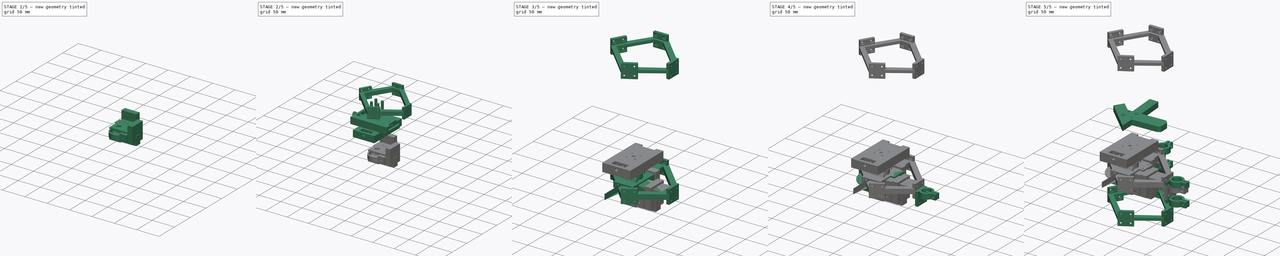
[diagram: build sequence overview — one tinted view per stage of 5, left to right]
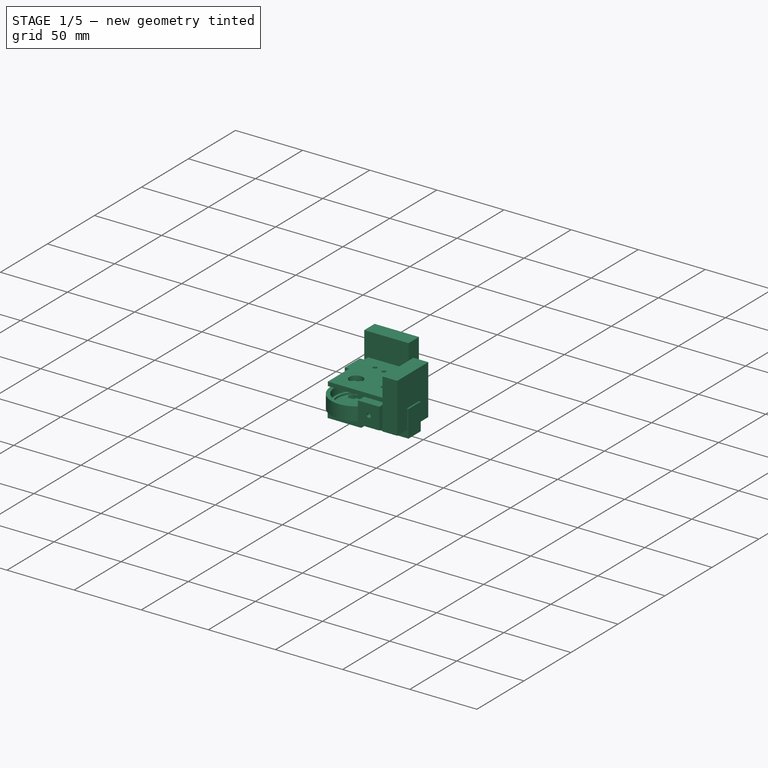
[diagram: stage 1 of 5 — iso view after this stage's code; geometry added in this stage tinted green]
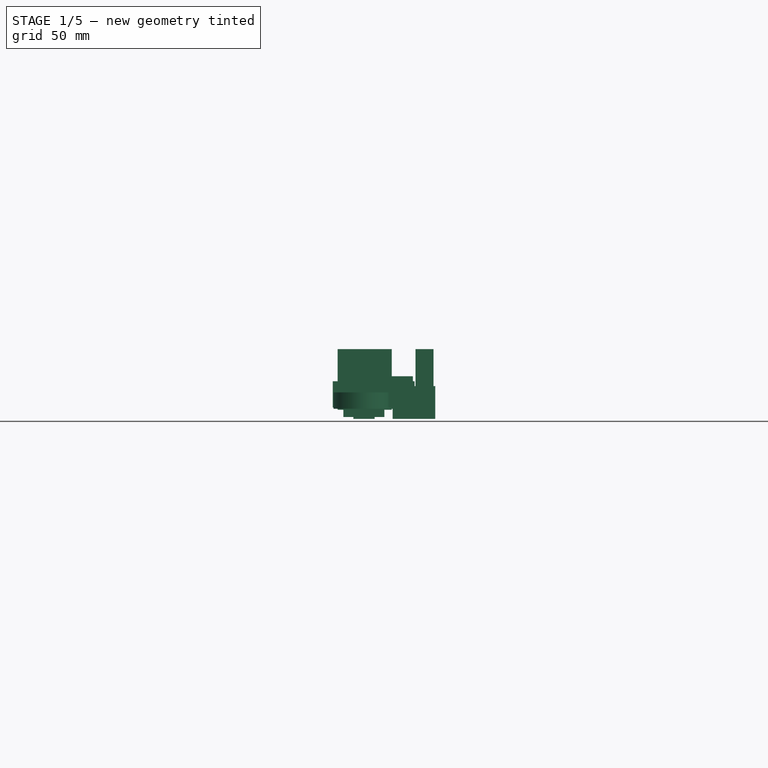
[diagram: stage 1 of 5 — front view after this stage's code; geometry added in this stage tinted green]
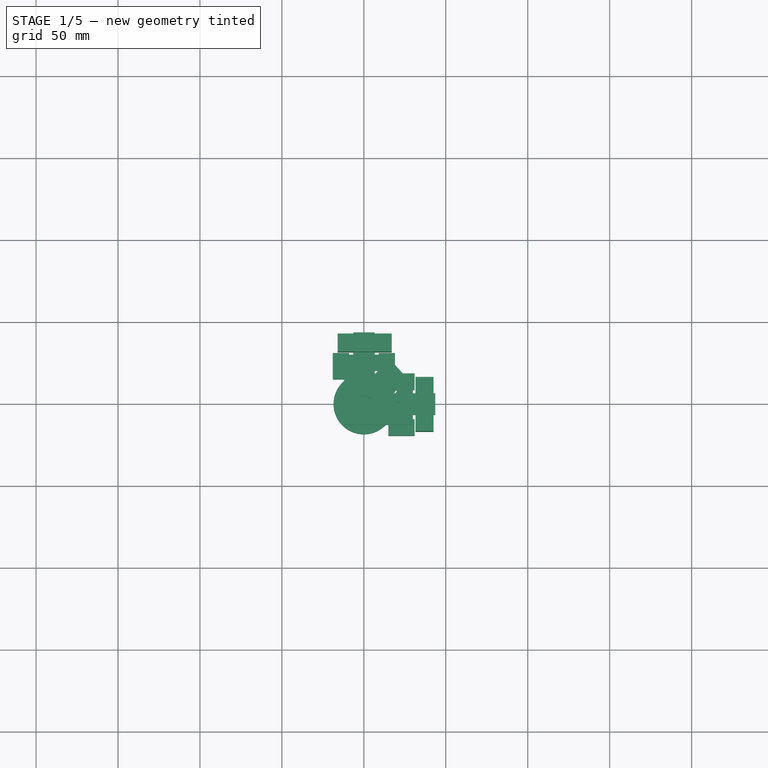
[diagram: stage 1 of 5 — top view after this stage's code; geometry added in this stage tinted green]
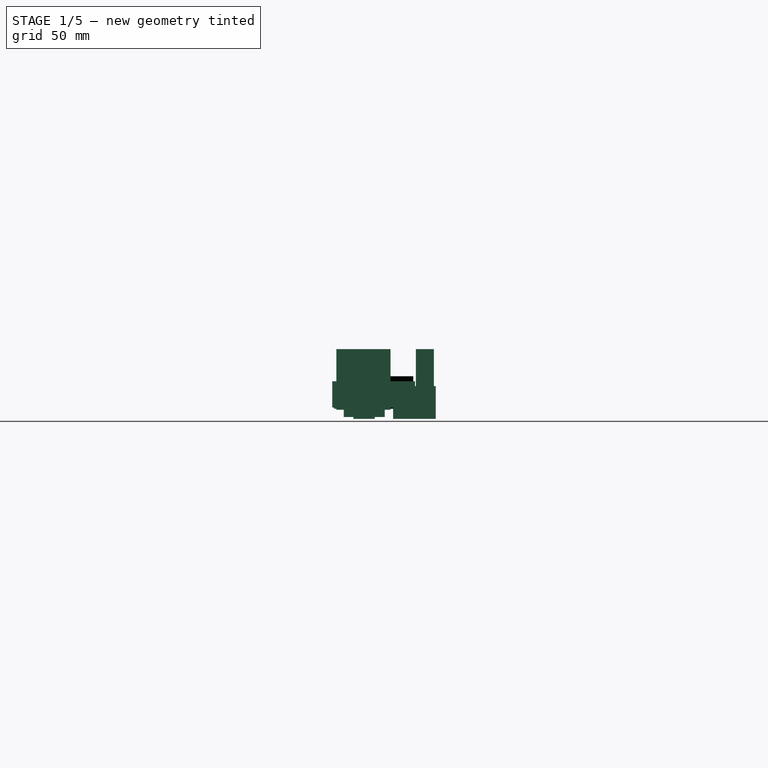
[diagram: stage 1 of 5 — right view after this stage's code; geometry added in this stage tinted green]
FCSTD DOCUMENT  (FreeCAD 0.18.4R)
Label: LSM_V4
License: All rights reserved
LicenseURL: http://en.wikipedia.org/wiki/All_rights_reserved
objects: Part::Extrusion×196, Part::Part2DObjectPython×162, Part::MultiFuse×104, Part::Cut×70, Part::Feature×29, App::DocumentObjectGroup×26, Sketcher::SketchObject×23, Part::FeaturePython×19, Part::Box×13, Part::Fillet×8, Part::Chamfer×7, Part::Cylinder×6, Part::MultiCommon×3, Part::Cone×2, Part::Sphere×1, Spreadsheet::Sheet×1
note: 643 computed .brp shape members not serialized (recipe doc carries the construction recipe); baked Part::Feature solids carry a one-line shape summary decoded from their .brp

FEATURE [App::DocumentObjectGroup] Group004  label="speaker model"
  Group = -> [Circle006,Circle007,Circle008,Rectangle002,Extrude023,Fusion003]
FEATURE [Part::Feature] Fusion003001  label="speaker model001"
  shape: bbox 77 x 77 x 22.25 mm, 19 faces (baked)
FEATURE [Part::Cylinder] Cylinder
  Angle = 360
  AttacherType = Attacher::AttachEngine3D
  Height = 10
  Placement = pos=(0,0,-25.3) rot=(0,0,1;0rad)
  Radius = 18.5
FEATURE [Part::Feature] Fusion003002  label="speaker model002"
  shape: bbox 77 x 77 x 22.25 mm, 19 faces (baked)
FEATURE [Part::Cut] Cut004003002002
  Base = -> Cylinder
  Tool = -> Fusion003002
FEATURE [Part::Part2DObjectPython] Polygon020  label="nut_insert012"  # Draft 2D object (typed FeaturePython)
  ChamferSize = 0
  DrawMode = 0
  FacesNumber = 6
  FilletRadius = 0
  MakeFace = false
  Placement = pos=(5,20,0) rot=(0,0,1;0rad)
  Radius = 3.41
FEATURE [Part::Part2DObjectPython] Polygon021  label="nut_insert013"  # Draft 2D object (typed FeaturePython)
  ChamferSize = 0
  DrawMode = 0
  FacesNumber = 6
  FilletRadius = 0
  MakeFace = false
  Placement = pos=(5,5,0) rot=(0,0,1;0rad)
  Radius = 3.41
FEATURE [Part::Part2DObjectPython] Polygon022  label="nut_insert014"  # Draft 2D object (typed FeaturePython)
  ChamferSize = 0
  DrawMode = 0
  FacesNumber = 6
  FilletRadius = 0
  MakeFace = false
  Placement = pos=(20,20,0) rot=(0,0,1;0rad)
  Radius = 3.41
FEATURE [Part::Part2DObjectPython] Polygon023  label="nut_insert015"  # Draft 2D object (typed FeaturePython)
  ChamferSize = 0
  DrawMode = 0
  FacesNumber = 6
  FilletRadius = 0
  MakeFace = false
  Placement = pos=(20,5,0) rot=(0,0,1;0rad)
  Radius = 3.41
FEATURE [Part::Extrusion] Extrude056
  Base = -> Polygon020
  Dir = (0,0,1)
  DirMode = 2
  FaceMakerClass = Part::FaceMakerBullseye
  LengthFwd = 5
  LengthRev = 0
  Solid = true
  Symmetric = false
FEATURE [Part::Extrusion] Extrude057
  Base = -> Polygon021
  Dir = (0,0,1)
  DirMode = 2
  FaceMakerClass = Part::FaceMakerBullseye
  LengthFwd = 5
  LengthRev = 0
  Solid = true
  Symmetric = false
FEATURE [Part::Extrusion] Extrude058
  Base = -> Polygon022
  Dir = (0,0,1)
  DirMode = 2
  FaceMakerClass = Part::FaceMakerBullseye
  LengthFwd = 5
  LengthRev = 0
  Solid = true
  Symmetric = false
FEATURE [Part::Extrusion] Extrude059
  Base = -> Polygon023
  Dir = (0,0,1)
  DirMode = 2
  FaceMakerClass = Part::FaceMakerBullseye
  LengthFwd = 5
  LengthRev = 0
  Solid = true
  Symmetric = false
FEATURE [Part::MultiFuse] Fusion003009  label="nut inserts003"
  Placement = pos=(-12.5,-12.5,-27.25) rot=(0,0,1;0rad)
  Shapes = -> [Extrude056,Extrude059,Extrude058,Extrude057]
FEATURE [Part::Part2DObjectPython] Polygon032  label="screwhole012"  # Draft 2D object (typed FeaturePython)
  ChamferSize = 0
  DrawMode = 0
  FacesNumber = 60
  FilletRadius = 0
  MakeFace = false
  Placement = pos=(20,5,0) rot=(0,0,1;0rad)
  Radius = 1.5
FEATURE [Part::Part2DObjectPython] Circle011  # Draft 2D object (typed FeaturePython)
  FirstAngle = 0
  LastAngle = 0
  MakeFace = false
  Placement = pos=(12.5,12.5,0) rot=(0,0,1;0rad)
  Radius = 2.5
FEATURE [Part::Part2DObjectPython] Polygon033  label="screwhole013"  # Draft 2D object (typed FeaturePython)
  ChamferSize = 0
  DrawMode = 0
  FacesNumber = 60
  FilletRadius = 0
  MakeFace = false
  Placement = pos=(5,20,0) rot=(0,0,1;0rad)
  Radius = 1.5
FEATURE [Part::Part2DObjectPython] Polygon034  label="screwhole014"  # Draft 2D object (typed FeaturePython)
  ChamferSize = 0
  DrawMode = 0
  FacesNumber = 60
  FilletRadius = 0
  MakeFace = false
  Placement = pos=(5,5,0) rot=(0,0,1;0rad)
  Radius = 1.5
FEATURE [Part::Part2DObjectPython] Polygon035  label="screwhole015"  # Draft 2D object (typed FeaturePython)
  ChamferSize = 0
  DrawMode = 0
  FacesNumber = 60
  FilletRadius = 0
  MakeFace = false
  Placement = pos=(20,20,0) rot=(0,0,1;0rad)
  Radius = 1.5
FEATURE [Part::Part2DObjectPython] Rectangle017  # Draft 2D object (typed FeaturePython)
  ChamferSize = 0
  Columns = 1
  FilletRadius = 0
  Height = 25
  Length = 25
  MakeFace = false
  Rows = 1
FEATURE [Part::Part2DObjectPython] Polygon036  label="nut_insert020"  # Draft 2D object (typed FeaturePython)
  ChamferSize = 0
  DrawMode = 0
  FacesNumber = 6
  FilletRadius = 0
  MakeFace = false
  Placement = pos=(5,20,0) rot=(0,0,1;0rad)
  Radius = 3.41
FEATURE [Part::Part2DObjectPython] Polygon037  label="nut_insert021"  # Draft 2D object (typed FeaturePython)
  ChamferSize = 0
  DrawMode = 0
  FacesNumber = 6
  FilletRadius = 0
  MakeFace = false
  Placement = pos=(5,5,0) rot=(0,0,1;0rad)
  Radius = 3.41
FEATURE [Part::Part2DObjectPython] Polygon038  label="nut_insert022"  # Draft 2D object (typed FeaturePython)
  ChamferSize = 0
  DrawMode = 0
  FacesNumber = 6
  FilletRadius = 0
  MakeFace = false
  Placement = pos=(20,20,0) rot=(0,0,1;0rad)
  Radius = 3.41
FEATURE [Part::Part2DObjectPython] Polygon039  label="nut_insert023"  # Draft 2D object (typed FeaturePython)
  ChamferSize = 0
  DrawMode = 0
  FacesNumber = 6
  FilletRadius = 0
  MakeFace = false
  Placement = pos=(20,5,0) rot=(0,0,1;0rad)
  Radius = 3.41
FEATURE [Part::Extrusion] Extrude070
  Base = -> Polygon032
  Dir = (0,0,1)
  DirMode = 2
  FaceMakerClass = Part::FaceMakerBullseye
  LengthFwd = 5
  LengthRev = 0
  Solid = true
  Symmetric = false
FEATURE [Part::Extrusion] Extrude071
  Base = -> Circle011
  Dir = (0,0,1)
  DirMode = 2
  FaceMakerClass = Part::FaceMakerBullseye
  LengthFwd = 2.9
  LengthRev = 0
  Placement = pos=(0,0,2.1) rot=(0,0,1;0rad)
  Solid = true
  Symmetric = false
FEATURE [Part::Extrusion] Extrude072
  Base = -> Polygon033
  Dir = (0,0,1)
  DirMode = 2
  FaceMakerClass = Part::FaceMakerBullseye
  LengthFwd = 5
  LengthRev = 0
  Solid = true
  Symmetric = false
FEATURE [Part::Extrusion] Extrude073
  Base = -> Polygon034
  Dir = (0,0,1)
  DirMode = 2
  FaceMakerClass = Part::FaceMakerBullseye
  LengthFwd = 5
  LengthRev = 0
  Solid = true
  Symmetric = false
FEATURE [Part::Extrusion] Extrude074
  Base = -> Polygon035
  Dir = (0,0,1)
  DirMode = 2
  FaceMakerClass = Part::FaceMakerBullseye
  LengthFwd = 5
  LengthRev = 0
  Solid = true
  Symmetric = false
FEATURE [Part::Extrusion] Extrude075  label="base002"
  Base = -> Rectangle017
  Dir = (0,0,1)
  DirMode = 2
  FaceMakerClass = Part::FaceMakerBullseye
  LengthFwd = 5
  LengthRev = 0
  Solid = true
  Symmetric = false
FEATURE [Part::MultiFuse] Fusion003013  label="holes002"
  Shapes = -> [Extrude074,Extrude070,Extrude071,Extrude072,Extrude073]
FEATURE [Part::Cut] Cut004003002006009  label="base_with_holes003"
  Base = -> Extrude075
  Tool = -> Fusion003013
FEATURE [Part::Extrusion] Extrude076
  Base = -> Polygon036
  Dir = (0,0,1)
  DirMode = 2
  FaceMakerClass = Part::FaceMakerBullseye
  LengthFwd = 2.5
  LengthRev = 0
  Solid = true
  Symmetric = false
FEATURE [Part::Extrusion] Extrude077
  Base = -> Polygon037
  Dir = (0,0,1)
  DirMode = 2
  FaceMakerClass = Part::FaceMakerBullseye
  LengthFwd = 2.5
  LengthRev = 0
  Solid = true
  Symmetric = false
FEATURE [Part::Extrusion] Extrude078
  Base = -> Polygon038
  Dir = (0,0,1)
  DirMode = 2
  FaceMakerClass = Part::FaceMakerBullseye
  LengthFwd = 2.5
  LengthRev = 0
  Solid = true
  Symmetric = false
FEATURE [Part::Extrusion] Extrude079
  Base = -> Polygon039
  Dir = (0,0,1)
  DirMode = 2
  FaceMakerClass = Part::FaceMakerBullseye
  LengthFwd = 2.5
  LengthRev = 0
  Solid = true
  Symmetric = false
FEATURE [Part::MultiFuse] Fusion003014  label="nut inserts005"
  Shapes = -> [Extrude076,Extrude079,Extrude078,Extrude077]
FEATURE [Part::Cut] Cut004003002006010
  Base = -> Cut004003002006009
  Placement = pos=(-12.5,12.5,-25.3) rot=(1,0,0;3.14159rad)
  Tool = -> Fusion003014
FEATURE [Part::MultiFuse] Fusion003010  label="no_inserts"
  Shapes = -> [Cut004003002002,Cut004003002006010]
FEATURE [Part::Feature] Cut004003002006003006008  label="speaker mounter004"
  shape: bbox 37 x 37 x 15.2 mm, 307 faces, 2 solids (baked)
FEATURE [Part::Feature] Chamfer005  label="connector004"
  Placement = pos=(-12,-12,-5.5) rot=(0,0,1;0rad)
  shape: bbox 25 x 25 x 10 mm, 281 faces (baked)
FEATURE [Part::Feature] Fusion003043  label="speaker model005"
  shape: bbox 77 x 77 x 22.25 mm, 19 faces (baked)
FEATURE [Part::MultiFuse] Fusion003044  label="microactuator002"
  Placement = pos=(0.00159271,41.4672,-9.5) rot=(1,0,0;1.5708rad)
  Shapes = -> [Chamfer005,Fusion003043,Cut004003002006003006008]
FEATURE [Part::Feature] Chamfer006  label="connector005"
  Placement = pos=(-12,-12,-5.5) rot=(0,0,1;0rad)
  shape: bbox 25 x 25 x 10 mm, 281 faces (baked)
FEATURE [Part::Feature] Fusion003045  label="speaker model006"
  shape: bbox 77 x 77 x 22.25 mm, 19 faces (baked)
FEATURE [Part::Feature] Cut004003002006003006009  label="speaker mounter005"
  shape: bbox 37 x 37 x 15.2 mm, 307 faces, 2 solids (baked)
FEATURE [Part::MultiFuse] Fusion003046  label="microactuator003"
  Placement = pos=(41.4883,0.00526581,-9.5) rot=(-0.57735,0.57735,0.57735;4.18879rad)
  Shapes = -> [Chamfer006,Fusion003045,Cut004003002006003006009]
FEATURE [Sketcher::SketchObject] Sketch003  label="dowel_placement001"
  sketch-geometry (8):
    g0: Circle CenterX=87 CenterY=-1.93e-14 CenterZ=0 NormalX=0 NormalY=0 NormalZ=1 AngleXU=0 Radius=7.8
    g1: Circle CenterX=-1.6e-14 CenterY=-87 CenterZ=0 NormalX=0 NormalY=0 NormalZ=1 AngleXU=0 Radius=7.8
    g2: Circle CenterX=-87 CenterY=1.07e-14 CenterZ=0 NormalX=0 NormalY=0 NormalZ=1 AngleXU=0 Radius=7.8
    g3: Circle CenterX=0 CenterY=87 CenterZ=0 NormalX=0 NormalY=0 NormalZ=1 AngleXU=0 Radius=7.8
    g4: LineSegment [constr] StartX=87 StartY=-1.93e-14 StartZ=0 EndX=0 EndY=0 EndZ=0
    g5: LineSegment [constr] StartX=0 StartY=0 StartZ=0 EndX=-1.6e-14 EndY=-87 EndZ=0
    g6: LineSegment [constr] StartX=0 StartY=0 StartZ=0 EndX=-87 EndY=1.07e-14 EndZ=0
    g7: LineSegment [constr] StartX=0 StartY=0 StartZ=0 EndX=0 EndY=87 EndZ=0
  constraints (20):
    c: Coincident(g4,g0)
    c: Coincident(g4,g-1)
    c: Coincident(g5,g-1)
    c: Coincident(g5,g1)
    c: Coincident(g6,g-1)
    c: Coincident(g6,g2)
    c: Coincident(g7,g3)
    c: Equal(g7,g4)
    c: Equal(g4,g5)
    c: Equal(g5,g6)
    c: Coincident(g7,g-1)
    c: Angle(g5,g4) = 1.5708
    c: Angle(g6,g5) = 1.5708
    c: Angle(g7,g6) = 1.5708
    c: Diameter(g3) = 15.6  'rod diameter'
    c: Equal(g3,g0)
    c: Equal(g3,g1)
    c: Equal(g3,g2)
    c: Vertical(g7)
    c: Distance(g7) = 87
FEATURE [Sketcher::SketchObject] Sketch004
  ExternalGeometry = -> [Fusion003044,Fusion003046]
  MapMode = 2
  sketch-geometry (23):
    g0: LineSegment StartX=29.9249 StartY=-12.9947 StartZ=0 EndX=29.9249 EndY=12.0053 EndZ=0
    g1: LineSegment StartX=-11.9984 StartY=29.9037 StartZ=0 EndX=-11.9984 EndY=-12.9947 EndZ=0
    g2: Circle CenterX=0 CenterY=0 CenterZ=0 NormalX=0 NormalY=0 NormalZ=1 AngleXU=0 Radius=5
    g3: Circle CenterX=0 CenterY=20 CenterZ=0 NormalX=0 NormalY=0 NormalZ=1 AngleXU=0 Radius=1.5
    g4: Circle CenterX=20 CenterY=0 CenterZ=0 NormalX=0 NormalY=0 NormalZ=1 AngleXU=0 Radius=1.5
    g5: Circle CenterX=14.1421 CenterY=14.1421 CenterZ=0 NormalX=0 NormalY=0 NormalZ=1 AngleXU=0 Radius=1.5
    g6: Circle CenterX=7.65367 CenterY=18.4776 CenterZ=0 NormalX=0 NormalY=0 NormalZ=1 AngleXU=0 Radius=1.5
    g7: Circle CenterX=18.4776 CenterY=7.65367 CenterZ=0 NormalX=0 NormalY=0 NormalZ=1 AngleXU=0 Radius=1.5
    g8: Circle [constr] CenterX=0 CenterY=0 CenterZ=0 NormalX=0 NormalY=0 NormalZ=1 AngleXU=0 Radius=20
    g9: LineSegment [constr] StartX=0 StartY=20 StartZ=0 EndX=7.65367 EndY=18.4776 EndZ=0
    g10: LineSegment [constr] StartX=7.65367 StartY=18.4776 StartZ=0 EndX=14.1421 EndY=14.1421 EndZ=0
    g11: LineSegment [constr] StartX=14.1421 StartY=14.1421 StartZ=0 EndX=18.4776 EndY=7.65367 EndZ=0
    g12: LineSegment [constr] StartX=18.4776 StartY=7.65367 StartZ=0 EndX=20 EndY=0 EndZ=0
    g13: LineSegment [constr] StartX=0 StartY=20 StartZ=0 EndX=0 EndY=0 EndZ=0
    g14: LineSegment [constr] StartX=0 StartY=0 StartZ=0 EndX=20 EndY=0 EndZ=0
    g15: LineSegment StartX=-11.9984 StartY=29.9037 StartZ=0 EndX=13.0016 EndY=29.9037 EndZ=0
    g16: LineSegment StartX=13.0016 StartY=29.9037 StartZ=0 EndX=29.9249 EndY=12.0053 EndZ=0
    g17: LineSegment [constr] StartX=14.1421 StartY=14.1421 StartZ=0 EndX=21.4084 EndY=21.0125 EndZ=0
    g18: LineSegment StartX=-11.9984 StartY=-12.9947 StartZ=0 EndX=29.9249 EndY=-12.9947 EndZ=0
    g19: LineSegment [constr] StartX=-11.9984 StartY=36.9672 StartZ=0 EndX=-11.9984 EndY=29.9037 EndZ=0
    g20: LineSegment [constr] StartX=13.0016 StartY=36.9672 StartZ=0 EndX=13.0016 EndY=29.9037 EndZ=0
    g21: LineSegment [constr] StartX=29.9249 StartY=12.0053 StartZ=0 EndX=36.9883 EndY=12.0053 EndZ=0
    g22: LineSegment [constr] StartX=29.9249 StartY=-12.9947 StartZ=0 EndX=36.9883 EndY=-12.9947 EndZ=0
  constraints (57):
    c: Coincident(g2,g-1)
    c: Diameter(g2) = 10
    c: Equal(g3,g5)
    c: Equal(g3,g4)
    c: Diameter(g7) = 3
    c: Equal(g7,g6)
    c: Coincident(g8,g2)
    c: PointOnObject(g4,g8)
    c: PointOnObject(g7,g8)
    c: PointOnObject(g5,g8)
    c: PointOnObject(g6,g8)
    c: PointOnObject(g3,g8)
    c: Coincident(g9,g6)
    c: Coincident(g10,g6)
    c: Coincident(g10,g5)
    c: Coincident(g11,g5)
    c: Coincident(g11,g7)
    c: Coincident(g12,g7)
    c: Coincident(g12,g4)
    c: Coincident(g9,g3)
    c: Equal(g9,g10)
    c: Equal(g10,g11)
    c: Equal(g11,g12)
    c: Coincident(g13,g3)
    c: Coincident(g13,g2)
    c: Distance(g13) = 20
    c: Equal(g5,g7)
    c: Coincident(g14,g2)
    c: Coincident(g14,g4)
    c: Perpendicular(g14,g13)
    c: Vertical(g13)
    c: Coincident(g16,g15)
    c: Coincident(g16,g0)
    c: Coincident(g17,g5)
    c: PointOnObject(g17,g16)
    c: Perpendicular(g16,g17)
    c: Distance(g17) = 10
    c: Coincident(g15,g1)
    c: Coincident(g18,g1)
    c: Horizontal(g18)
    c: Coincident(g0,g18)
    c: Perpendicular(g1,g15)
    c: Coincident(g19,g-3)
    c: Coincident(g19,g1)
    c: Coincident(g20,g-3)
    c: Coincident(g20,g15)
    c: Coincident(g21,g0)
    c: Coincident(g21,g-4)
    c: Coincident(g22,g0)
    c: Coincident(g22,g-4)
    c: Horizontal(g22)
    c: Horizontal(g21)
    c: Vertical(g19)
    c: Vertical(g20)
    c: Equal(g21,g22)
    c: Equal(g22,g20)
    c: Equal(g20,g19)
FEATURE [Part::Extrusion] Extrude138  label="Stage"
  Base = -> Sketch004
  Dir = (0,0,1)
  DirMode = 2
  FaceMakerClass = Part::FaceMakerBullseye
  LengthFwd = 3
  LengthRev = 0
  Placement = pos=(0,0,-5.5) rot=(0,0,1;0rad)
  Reversed = true
  Solid = true
  Symmetric = false
FEATURE [Part::Part2DObjectPython] Polygon061  label="screwhole034"  # Draft 2D object (typed FeaturePython)
  ChamferSize = 0
  DrawMode = 0
  FacesNumber = 60
  FilletRadius = 0
  MakeFace = false
  Placement = pos=(20,5,0) rot=(0,0,1;0rad)
  Radius = 1.5
FEATURE [Part::Part2DObjectPython] Circle022  label="Circle023"  # Draft 2D object (typed FeaturePython)
  FirstAngle = 0
  LastAngle = 0
  MakeFace = false
  Placement = pos=(12.5,12.5,0) rot=(0,0,1;0rad)
  Radius = 2.5
FEATURE [Part::Part2DObjectPython] Polygon062  label="screwhole035"  # Draft 2D object (typed FeaturePython)
  ChamferSize = 0
  DrawMode = 0
  FacesNumber = 60
  FilletRadius = 0
  MakeFace = false
  Placement = pos=(5,20,0) rot=(0,0,1;0rad)
  Radius = 1.5
FEATURE [Part::Part2DObjectPython] Polygon063  label="screwhole036"  # Draft 2D object (typed FeaturePython)
  ChamferSize = 0
  DrawMode = 0
  FacesNumber = 60
  FilletRadius = 0
  MakeFace = false
  Placement = pos=(5,5,0) rot=(0,0,1;0rad)
  Radius = 1.5
FEATURE [Part::Part2DObjectPython] Polygon064  label="screwhole037"  # Draft 2D object (typed FeaturePython)
  ChamferSize = 0
  DrawMode = 0
  FacesNumber = 60
  FilletRadius = 0
  MakeFace = false
  Placement = pos=(20,20,0) rot=(0,0,1;0rad)
  Radius = 1.5
FEATURE [Part::Part2DObjectPython] Rectangle034  # Draft 2D object (typed FeaturePython)
  ChamferSize = 0
  Columns = 1
  FilletRadius = 0
  Height = 25
  Length = 25
  MakeFace = false
  Rows = 1
FEATURE [Part::Extrusion] Extrude139
  Base = -> Polygon061
  Dir = (0,0,1)
  DirMode = 2
  FaceMakerClass = Part::FaceMakerBullseye
  LengthFwd = 5
  LengthRev = 0
  Solid = true
  Symmetric = false
FEATURE [Part::Extrusion] Extrude140
  Base = -> Polygon062
  Dir = (0,0,1)
  DirMode = 2
  FaceMakerClass = Part::FaceMakerBullseye
  LengthFwd = 5
  LengthRev = 0
  Solid = true
  Symmetric = false
FEATURE [Part::Extrusion] Extrude141
  Base = -> Polygon063
  Dir = (0,0,1)
  DirMode = 2
  FaceMakerClass = Part::FaceMakerBullseye
  LengthFwd = 5
  LengthRev = 0
  Solid = true
  Symmetric = false
FEATURE [Part::Extrusion] Extrude142
  Base = -> Polygon064
  Dir = (0,0,1)
  DirMode = 2
  FaceMakerClass = Part::FaceMakerBullseye
  LengthFwd = 5
  LengthRev = 0
  Solid = true
  Symmetric = false
FEATURE [Part::Extrusion] Extrude143  label="base006"
  Base = -> Rectangle034
  Dir = (0,0,1)
  DirMode = 2
  FaceMakerClass = Part::FaceMakerBullseye
  LengthFwd = 5
  LengthRev = 0
  Solid = true
  Symmetric = false
FEATURE [Part::Extrusion] Extrude144
  Base = -> Circle022
  Dir = (0,0,1)
  DirMode = 2
  FaceMakerClass = Part::FaceMakerBullseye
  LengthFwd = 2.9
  LengthRev = 0
  Placement = pos=(0,0,2.1) rot=(0,0,1;0rad)
  Solid = true
  Symmetric = false
FEATURE [Part::MultiFuse] Fusion003047  label="holes006"
  Shapes = -> [Extrude142,Extrude139,Extrude144,Extrude140,Extrude141]
FEATURE [Part::Cut] Cut004003002006003006010  label="connector_without_nut_inserts001"
  Base = -> Extrude143
  Placement = pos=(-12,31.9673,3.5) rot=(-1,0,0;1.5708rad)
  Tool = -> Fusion003047
FEATURE [Part::Part2DObjectPython] Polygon065  label="screwhole038"  # Draft 2D object (typed FeaturePython)
  ChamferSize = 0
  DrawMode = 0
  FacesNumber = 60
  FilletRadius = 0
  MakeFace = false
  Placement = pos=(20,5,0) rot=(0,0,1;0rad)
  Radius = 1.5
FEATURE [Part::Part2DObjectPython] Rectangle035  # Draft 2D object (typed FeaturePython)
  ChamferSize = 0
  Columns = 1
  FilletRadius = 0
  Height = 25
  Length = 25
  MakeFace = false
  Rows = 1
FEATURE [Part::Extrusion] Extrude145
  Base = -> Polygon065
  Dir = (0,0,1)
  DirMode = 2
  FaceMakerClass = Part::FaceMakerBullseye
  LengthFwd = 5
  LengthRev = 0
  Solid = true
  Symmetric = false
FEATURE [Part::Extrusion] Extrude147  label="base007"
  Base = -> Rectangle035
  Dir = (0,0,1)
  DirMode = 2
  FaceMakerClass = Part::FaceMakerBullseye
  LengthFwd = 5
  LengthRev = 0
  Solid = true
  Symmetric = false
FEATURE [Part::Part2DObjectPython] Polygon066  label="screwhole039"  # Draft 2D object (typed FeaturePython)
  ChamferSize = 0
  DrawMode = 0
  FacesNumber = 60
  FilletRadius = 0
  MakeFace = false
  Placement = pos=(20,20,0) rot=(0,0,1;0rad)
  Radius = 1.5
FEATURE [Part::Extrusion] Extrude146
  Base = -> Polygon066
  Dir = (0,0,1)
  DirMode = 2
  FaceMakerClass = Part::FaceMakerBullseye
  LengthFwd = 5
  LengthRev = 0
  Solid = true
  Symmetric = false
FEATURE [Part::Part2DObjectPython] Polygon067  label="screwhole040"  # Draft 2D object (typed FeaturePython)
  ChamferSize = 0
  DrawMode = 0
  FacesNumber = 60
  FilletRadius = 0
  MakeFace = false
  Placement = pos=(5,5,0) rot=(0,0,1;0rad)
  Radius = 1.5
FEATURE [Part::Part2DObjectPython] Circle023  label="Circle024"  # Draft 2D object (typed FeaturePython)
  FirstAngle = 0
  LastAngle = 0
  MakeFace = false
  Placement = pos=(12.5,12.5,0) rot=(0,0,1;0rad)
  Radius = 2.5
FEATURE [Part::Extrusion] Extrude149
  Base = -> Polygon067
  Dir = (0,0,1)
  DirMode = 2
  FaceMakerClass = Part::FaceMakerBullseye
  LengthFwd = 5
  LengthRev = 0
  Solid = true
  Symmetric = false
FEATURE [Part::Part2DObjectPython] Polygon068  label="screwhole041"  # Draft 2D object (typed FeaturePython)
  ChamferSize = 0
  DrawMode = 0
  FacesNumber = 60
  FilletRadius = 0
  MakeFace = false
  Placement = pos=(5,20,0) rot=(0,0,1;0rad)
  Radius = 1.5
FEATURE [Part::Extrusion] Extrude148
  Base = -> Polygon068
  Dir = (0,0,1)
  DirMode = 2
  FaceMakerClass = Part::FaceMakerBullseye
  LengthFwd = 5
  LengthRev = 0
  Solid = true
  Symmetric = false
FEATURE [Part::Extrusion] Extrude150
  Base = -> Circle023
  Dir = (0,0,1)
  DirMode = 2
  FaceMakerClass = Part::FaceMakerBullseye
  LengthFwd = 2.9
  LengthRev = 0
  Placement = pos=(0,0,2.1) rot=(0,0,1;0rad)
  Solid = true
  Symmetric = false
FEATURE [Part::MultiFuse] Fusion003048  label="holes007"
  Shapes = -> [Extrude146,Extrude145,Extrude150,Extrude148,Extrude149]
FEATURE [Part::Cut] Cut004003002006003006011  label="connector_without_nut_inserts002"
  Base = -> Extrude147
  Placement = pos=(32,11.9673,3.5) rot=(0.57735,-0.57735,0.57735;4.18879rad)
  Tool = -> Fusion003048
FEATURE [Sketcher::SketchObject] Sketch005  label="fixed_shaft_attatchment"
  ExternalGeometry = -> [Cut004003002006003006010]
  Placement = pos=(0,0,0) rot=(0.57735,-0.57735,-0.57735;2.0944rad)
  sketch-geometry (19):
    g0: Circle CenterX=-26.9673 CenterY=-16.5 CenterZ=0 NormalX=0 NormalY=0 NormalZ=1 AngleXU=0 Radius=1.5
    g1: LineSegment StartX=-31.9673 StartY=-21.5 StartZ=0 EndX=-21.9673 EndY=-21.5 EndZ=0
    g2: LineSegment StartX=-31.9673 StartY=-11.5 StartZ=0 EndX=-21.9673 EndY=-11.5 EndZ=0
    g3: LineSegment [constr] StartX=-31.9673 StartY=-11.5 StartZ=0 EndX=-31.9673 EndY=-21.5 EndZ=0
    g4: LineSegment [constr] StartX=-26.9673 StartY=-16.5 StartZ=0 EndX=-21.9673 EndY=-21.5 EndZ=0
    g5: LineSegment [constr] StartX=-26.9673 StartY=-11.5 StartZ=0 EndX=-26.9673 EndY=-16.5 EndZ=0
    g6: LineSegment [constr] StartX=-26.9673 StartY=-11.5 StartZ=0 EndX=-21.9673 EndY=-11.5 EndZ=0
    g7: LineSegment [constr] StartX=-26.9673 StartY=-11.5 StartZ=0 EndX=-21.9673 EndY=-21.5 EndZ=0
    g8: LineSegment [constr] StartX=-26.9673 StartY=-11.5 StartZ=0 EndX=-31.9673 EndY=-21.5 EndZ=0
    g9: LineSegment [constr] StartX=-26.9673 StartY=-16.5 StartZ=0 EndX=-31.9673 EndY=-21.5 EndZ=0
    g10: LineSegment [constr] StartX=-26.9673 StartY=-16.5 StartZ=0 EndX=-21.9673 EndY=-21.5 EndZ=0
    g11: LineSegment [constr] StartX=-31.9673 StartY=-11.5 StartZ=0 EndX=-26.9673 EndY=-16.5 EndZ=0
    g12: LineSegment [constr] StartX=-26.9673 StartY=-16.5 StartZ=0 EndX=-21.9673 EndY=-11.5 EndZ=0
    g13: LineSegment [constr] StartX=-26.9673 StartY=-16.5 StartZ=0 EndX=-26.9673 EndY=-21.5 EndZ=0
    g14: LineSegment [constr] StartX=-26.9673 StartY=-16.5 StartZ=0 EndX=-31.9673 EndY=-16.5 EndZ=0
    g15: LineSegment StartX=-21.9673 StartY=-11.5 StartZ=0 EndX=-21.9673 EndY=-21.5 EndZ=0
    g16: LineSegment [constr] StartX=-31.9673 StartY=-21.5 StartZ=0 EndX=-31.9673 EndY=-16.5 EndZ=0
    g17: LineSegment [constr] StartX=-31.9673 StartY=-16.5 StartZ=0 EndX=-31.9673 EndY=3.5 EndZ=0
    g18: LineSegment StartX=-31.9673 StartY=-11.5 StartZ=0 EndX=-31.9673 EndY=-21.5 EndZ=0
  constraints (45):
    c: Perpendicular(g3,g2)
    c: Coincident(g8,g1)
    c: Coincident(g1,g3)
    c: Coincident(g3,g2)
    c: PointOnObject(g5,g2)
    c: Coincident(g6,g5)
    c: Coincident(g7,g5)
    c: Coincident(g8,g5)
    c: Distance(g5) = 5
    c: Coincident(g5,g0)
    c: Coincident(g9,g0)
    c: Coincident(g9,g1)
    c: Coincident(g10,g0)
    c: Coincident(g10,g1)
    c: Equal(g10,g9)
    c: Coincident(g11,g2)
    c: Coincident(g11,g0)
    c: Coincident(g12,g0)
    c: Coincident(g12,g2)
    c: Equal(g12,g11)
    c: Coincident(g13,g0)
    c: PointOnObject(g13,g1)
    c: Vertical(g13)
    c: Perpendicular(g1,g13)
    c: Equal(g13,g5)
    c: Perpendicular(g2,g5)
    c: Coincident(g14,g0)
    c: PointOnObject(g14,g3)
    c: Horizontal(g14)
    c: Equal(g14,g13)
    c: Equal(g2,g1)
    c: Coincident(g15,g2)
    c: Coincident(g15,g1)
    c: Coincident(g6,g2)
    c: Coincident(g7,g1)
    c: Coincident(g4,g1)
    c: Coincident(g0,g4)
    c: Diameter(g0) = 3
    c: Coincident(g16,g-3)
    c: Coincident(g17,g-3)
    c: Coincident(g14,g16)
    c: Coincident(g14,g17)
    c: Coincident(g1,g16)
    c: Coincident(g18,g2)
    c: Coincident(g18,g1)
FEATURE [Part::Extrusion] Extrude151
  Base = -> Sketch005
  Dir = (-1,0,0)
  DirMode = 2
  FaceMakerClass = Part::FaceMakerBullseye
  LengthFwd = 4
  LengthRev = 0
  Solid = true
  Symmetric = false
FEATURE [Part::Extrusion] Extrude152
  Base = -> Sketch005
  Dir = (-1,0,0)
  DirMode = 2
  FaceMakerClass = Part::FaceMakerBullseye
  LengthFwd = 4
  LengthRev = 0
  Reversed = true
  Solid = true
  Symmetric = false
FEATURE [Part::Box] Box005  label="Cube005"
  AttacherType = Attacher::AttachEngine3D
  Height = 10
  Length = 10
  Placement = pos=(-5,30,-21.5) rot=(0,0,1;0rad)
  Width = 6
FEATURE [Part::MultiFuse] Fusion003049  label="fixed shaft holder"
  Shapes = -> [Extrude151,Extrude152,Box005]
FEATURE [Sketcher::SketchObject] Sketch006  label="axle bushings"
  ExternalGeometry = -> [Fusion003049]
  Placement = pos=(0,0,0) rot=(0.57735,-0.57735,-0.57735;2.0944rad)
  sketch-geometry (11):
    g0: Circle CenterX=-26.9673 CenterY=-16.5 CenterZ=0 NormalX=0 NormalY=0 NormalZ=1 AngleXU=0 Radius=1.5
    g1: LineSegment StartX=-34.9673 StartY=-8.5 StartZ=0 EndX=-18.9673 EndY=-8.5 EndZ=0
    g2: LineSegment StartX=-18.9673 StartY=-8.5 StartZ=0 EndX=-18.9673 EndY=-24.5 EndZ=0
    g3: LineSegment StartX=-18.9673 StartY=-24.5 StartZ=0 EndX=-34.9673 EndY=-24.5 EndZ=0
    g4: LineSegment StartX=-34.9673 StartY=-24.5 StartZ=0 EndX=-34.9673 EndY=-8.5 EndZ=0
    g5: LineSegment [constr] StartX=-26.9673 StartY=-16.5 StartZ=0 EndX=-18.9673 EndY=-8.5 EndZ=0
    g6: LineSegment [constr] StartX=-26.9673 StartY=-16.5 StartZ=0 EndX=-34.9673 EndY=-8.5 EndZ=0
    g7: LineSegment [constr] StartX=-26.9673 StartY=-16.5 StartZ=0 EndX=-18.9673 EndY=-24.5 EndZ=0
    g8: LineSegment [constr] StartX=-26.9673 StartY=-16.5 StartZ=0 EndX=-34.9673 EndY=-24.5 EndZ=0
    g9: LineSegment [constr] StartX=-26.9673 StartY=-8.5 StartZ=0 EndX=-26.9673 EndY=-16.5 EndZ=0
    g10: LineSegment [constr] StartX=-26.9673 StartY=-16.5 StartZ=0 EndX=-18.9673 EndY=-16.5 EndZ=0
  constraints (28):
    c: Horizontal(g1)
    c: Coincident(g1,g2)
    c: Vertical(g2)
    c: Coincident(g2,g3)
    c: Horizontal(g3)
    c: Coincident(g3,g4)
    c: Coincident(g4,g1)
    c: Diameter(g0) = 3
    c: Coincident(g5,g0)
    c: Coincident(g5,g1)
    c: Coincident(g6,g0)
    c: Coincident(g6,g1)
    c: Coincident(g7,g0)
    c: Coincident(g7,g2)
    c: Coincident(g8,g0)
    c: Coincident(g8,g3)
    c: Equal(g7,g8)
    c: Equal(g8,g6)
    c: Equal(g6,g5)
    c: PointOnObject(g9,g1)
    c: Coincident(g9,g0)
    c: Vertical(g9)
    c: Coincident(g10,g0)
    c: PointOnObject(g10,g2)
    c: Horizontal(g10)
    c: Equal(g10,g9)
    c: Distance(g9) = 8
    c: Coincident(g-3,g0)
FEATURE [Part::Extrusion] Extrude153
  Base = -> Sketch006
  Dir = (-1,0,0)
  DirMode = 2
  FaceMakerClass = Part::FaceMakerBullseye
  LengthFwd = 10
  LengthRev = 0
  Placement = pos=(-9,0,0) rot=(0,0,1;0rad)
  Solid = true
  Symmetric = false
FEATURE [Part::Extrusion] Extrude154
  Base = -> Sketch006
  Dir = (-1,0,0)
  DirMode = 2
  FaceMakerClass = Part::FaceMakerBullseye
  LengthFwd = 10
  LengthRev = 0
  Placement = pos=(9,0,0) rot=(0,0,1;0rad)
  Reversed = true
  Solid = true
  Symmetric = false
FEATURE [Part::Box] Box006  label="Cube006"
  AttacherType = Attacher::AttachEngine3D
  Height = 10
  Length = 10
  Placement = pos=(7,-23,-17) rot=(0,0,1;0rad)
  Width = 10
FEATURE [Part::Box] Box007  label="Cube007"
  AttacherType = Attacher::AttachEngine3D
  Height = 10
  Length = 10
  Placement = pos=(-22,5,-17) rot=(0,0,1;0rad)
  Width = 10
FEATURE [Part::Feature] Fillet002005001  label="Linear bearing002"
  Placement = pos=(0,-0.5,0) rot=(0,0,-1;1.5708rad)
  shape: bbox 17.03 x 44.45 x 16 mm, 32 faces (baked)
FEATURE [Part::Chamfer] Chamfer008
  Base = -> Fillet002005001
  Edges = 1 edges r=0.1: [Edge65]
FEATURE [Part::Chamfer] Chamfer010
  Base = -> Chamfer008
  Edges = 1 edges r=1: [Edge42]
FEATURE [Part::Box] Box008  label="Cube008"
  AttacherType = Attacher::AttachEngine3D
  Height = 10
  Length = 10
  Placement = pos=(9.5,15,-12) rot=(0,0,1;0rad)
  Width = 10
FEATURE [Part::Box] Box009  label="Cube009"
  AttacherType = Attacher::AttachEngine3D
  Height = 10
  Length = 10
  Placement = pos=(15,9.5,-12) rot=(0,0,1;0rad)
  Width = 10
FEATURE [Part::MultiFuse] Fusion003052
  Shapes = -> [Box006,Box007,Box008,Box009]
FEATURE [Part::Cylinder] Cylinder002
  Angle = 360
  AttacherType = Attacher::AttachEngine3D
  Height = 44.45
  Placement = pos=(22,27,-16.5) rot=(0,-1,0;1.5708rad)
  Radius = 1.5
FEATURE [Part::MultiFuse] Fusion003050
  Placement = pos=(0,-4,0) rot=(0,0,1;0rad)
  Shapes = -> [Cylinder002,Fusion003049,Extrude154,Extrude153,Box005]
FEATURE [Part::Fillet] Fillet002002
  Base = -> Fusion003050
  Edges = 2 edges r=0.5: [Edge75,Edge84]
FEATURE [Part::Fillet] Fillet002003  label="Linear bearing"
  Base = -> Fillet002002
  Edges = 2 edges r=0.4: [Edge3,Edge37]
FEATURE [Sketcher::SketchObject] Sketch007  label="bushing catchers"
  ExternalGeometry = -> [Fillet002003]
  Placement = pos=(0,0,0) rot=(1,0,0;3.14159rad)
  sketch-geometry (18):
    g0: LineSegment StartX=-19 StartY=-14.9673 StartZ=0 EndX=-19 EndY=-9.96729 EndZ=0
    g1: LineSegment StartX=-19 StartY=-9.96729 StartZ=0 EndX=-4 EndY=-9.96729 EndZ=0
    g2: LineSegment StartX=-4 StartY=-9.96729 StartZ=0 EndX=-4 EndY=-16.2173 EndZ=0
    g3: LineSegment StartX=4 StartY=-16.2173 StartZ=0 EndX=4 EndY=-9.96729 EndZ=0
    g4: LineSegment StartX=4 StartY=-9.96729 StartZ=0 EndX=19 EndY=-9.96729 EndZ=0
    g5: LineSegment StartX=19 StartY=-9.96729 StartZ=0 EndX=19 EndY=-14.9673 EndZ=0
    g6: LineSegment StartX=-19 StartY=-14.9673 StartZ=0 EndX=-9 EndY=-14.9673 EndZ=0
    g7: LineSegment StartX=9 StartY=-14.9673 StartZ=0 EndX=19 EndY=-14.9673 EndZ=0
    g8: LineSegment [constr] StartX=4 StartY=-19.9673 StartZ=0 EndX=9 EndY=-19.9673 EndZ=0
    g9: LineSegment StartX=9 StartY=-19.9673 StartZ=0 EndX=9 EndY=-14.9673 EndZ=0
    g10: LineSegment [constr] StartX=-4 StartY=-19.9673 StartZ=0 EndX=-9 EndY=-19.9673 EndZ=0
    g11: LineSegment StartX=-9 StartY=-19.9673 StartZ=0 EndX=-9 EndY=-14.9673 EndZ=0
    g12: LineSegment [constr] StartX=-4 StartY=-16.2173 StartZ=0 EndX=-4 EndY=-19.9673 EndZ=0
    g13: LineSegment [constr] StartX=4 StartY=-16.2173 StartZ=0 EndX=4 EndY=-19.9673 EndZ=0
    g14: LineSegment StartX=-4 StartY=-16.2173 StartZ=0 EndX=-9 EndY=-19.9673 EndZ=0
    g15: LineSegment StartX=4 StartY=-16.2173 StartZ=0 EndX=9 EndY=-19.9673 EndZ=0
    g16: LineSegment [constr] StartX=6.6 StartY=-18.1673 StartZ=0 EndX=9 EndY=-14.9673 EndZ=0
    g17: LineSegment [constr] StartX=-6.6 StartY=-18.1673 StartZ=0 EndX=-9 EndY=-14.9673 EndZ=0
  constraints (49):
    c: Coincident(g-3,g0)
    c: Coincident(g0,g1)
    c: Coincident(g1,g2)
    c: Coincident(g3,g4)
    c: Coincident(g4,g5)
    c: Coincident(g5,g-6)
    c: Parallel(g2,g-4)
    c: Parallel(g-3,g1)
    c: Parallel(g4,g-6)
    c: Parallel(g5,g3)
    c: Parallel(g3,g-5)
    c: Parallel(g0,g2)
    c: Distance(g5) = 5
    c: Coincident(g6,g0)
    c: Coincident(g6,g-4)
    c: PointOnObject(g7,g-6)
    c: Coincident(g7,g5)
    c: PointOnObject(g8,g-5)
    c: Horizontal(g8)
    c: Coincident(g9,g7)
    c: Vertical(g9)
    c: Coincident(g9,g8)
    c: PointOnObject(g10,g-4)
    c: Horizontal(g10)
    c: Coincident(g10,g11)
    c: Coincident(g11,g6)
    c: Equal(g11,g10)
    c: Equal(g10,g8)
    c: Equal(g8,g9)
    c: Equal(g8,g5)
    c: Equal(g2,g3)
    c: Coincident(g12,g2)
    c: Coincident(g12,g10)
    c: Coincident(g13,g3)
    c: Coincident(g13,g8)
    c: Parallel(g13,g3)
    c: Parallel(g2,g12)
    c: Equal(g0,g5)
    c: Coincident(g14,g2)
    c: Coincident(g14,g11)
    c: Coincident(g15,g9)
    c: Coincident(g15,g3)
    c: Coincident(g16,g7)
    c: PointOnObject(g16,g15)
    c: PointOnObject(g17,g14)
    c: Coincident(g17,g6)
    c: Perpendicular(g14,g17)
    c: Perpendicular(g15,g16)
    c: Distance(g17) = 4
FEATURE [Part::Extrusion] Extrude155  label="bearing holder"
  Base = -> Sketch007
  Dir = (0,0,-1)
  DirMode = 2
  FaceMakerClass = Part::FaceMakerBullseye
  LengthFwd = 3
  LengthRev = 0
  Placement = pos=(0,0,-11) rot=(0,0,1;0rad)
  Reversed = true
  Solid = true
  Symmetric = false
FEATURE [Part::Extrusion] Extrude156  label="bearing holder001"
  Base = -> Sketch007
  Dir = (0,0,-1)
  DirMode = 2
  FaceMakerClass = Part::FaceMakerBullseye
  LengthFwd = 3
  LengthRev = 0
  Placement = pos=(0,-0.5,-11) rot=(0,0,-1;1.5708rad)
  Reversed = true
  Solid = true
  Symmetric = false
FEATURE [Part::MultiFuse] Fusion003051
  Shapes = -> [Extrude156,Extrude155]
FEATURE [Part::Cut] Cut004003002006003006012
  Base = -> Fusion003051
  Tool = -> Fusion003052
FEATURE [Part::Fillet] Fillet002004
  Base = -> Cut004003002006003006012
  Edges = 1 edges r=2: [Edge1]
FEATURE [Part::Chamfer] Chamfer007
  Base = -> Fillet002003
  Edges = 1 edges r=0.1: [Edge117]
FEATURE [Part::Chamfer] Chamfer009
  Base = -> Chamfer007
  Edges = 1 edges r=1: [Edge35]
FEATURE [Sketcher::SketchObject] Sketch008
  ExternalGeometry = -> [Chamfer009,Chamfer010]
  Placement = pos=(0,0,0) rot=(1,0,0;3.14159rad)
  sketch-geometry (14):
    g0: Circle CenterX=-2.86e-14 CenterY=-23.0336 CenterZ=0 NormalX=0 NormalY=0 NormalZ=1 AngleXU=0 Radius=1.275
    g1: LineSegment [constr] StartX=1.07312 StartY=-23.7221 StartZ=0 EndX=4 EndY=-25.6 EndZ=0
    g2: LineSegment [constr] StartX=-4 StartY=-25.6 StartZ=0 EndX=-1.07312 EndY=-23.7221 EndZ=0
    g3: Circle CenterX=23.0336 CenterY=0.5 CenterZ=0 NormalX=0 NormalY=0 NormalZ=1 AngleXU=0 Radius=1.275
    g4: LineSegment [constr] StartX=25.6 StartY=4.5 StartZ=0 EndX=23.7221 EndY=1.57312 EndZ=0
    g5: LineSegment [constr] StartX=25.6 StartY=-3.5 StartZ=0 EndX=23.7221 EndY=-0.573121 EndZ=0
    g6: LineSegment [constr] StartX=-4 StartY=-20.4673 StartZ=0 EndX=4 EndY=-20.4673 EndZ=0
    g7: LineSegment [constr] StartX=-4 StartY=-20.4673 StartZ=0 EndX=-1.07312 EndY=-22.3451 EndZ=0
    g8: LineSegment [constr] StartX=1.07312 StartY=-22.3451 StartZ=0 EndX=4 EndY=-20.4673 EndZ=0
    g9: LineSegment [constr] StartX=0 StartY=-17.9673 StartZ=0 EndX=0 EndY=-20.4673 EndZ=0
    g10: LineSegment [constr] StartX=20.4673 StartY=4.5 StartZ=0 EndX=20.4673 EndY=-3.5 EndZ=0
    g11: LineSegment [constr] StartX=20.4673 StartY=4.5 StartZ=0 EndX=22.3451 EndY=1.57312 EndZ=0
    g12: LineSegment [constr] StartX=20.4673 StartY=-3.5 StartZ=0 EndX=22.3451 EndY=-0.573121 EndZ=0
    g13: LineSegment [constr] StartX=17.9673 StartY=0 StartZ=0 EndX=20.4673 EndY=0 EndZ=0
  constraints (46):
    c: PointOnObject(g1,g0)
    c: Perpendicular(g0,g1)
    c: Coincident(g1,g-3)
    c: Coincident(g2,g-4)
    c: Perpendicular(g0,g2)
    c: Equal(g2,g1)
    c: Diameter(g0) = 2.55
    c: PointOnObject(g4,g3)
    c: Coincident(g5,g-9)
    c: PointOnObject(g5,g3)
    c: Perpendicular(g3,g4)
    c: Perpendicular(g3,g5)
    c: Coincident(g4,g-8)
    c: Equal(g4,g5)
    c: Diameter(g3) = 2.55
    c: PointOnObject(g6,g-4)
    c: PointOnObject(g6,g-3)
    c: Horizontal(g6)
    c: Coincident(g7,g6)
    c: PointOnObject(g7,g0)
    c: PointOnObject(g8,g0)
    c: Coincident(g8,g6)
    c: Equal(g8,g7)
    c: Perpendicular(g0,g8)
    c: Perpendicular(g0,g7)
    c: Coincident(g9,g-6)
    c: PointOnObject(g9,g6)
    c: Vertical(g9)
    c: Distance(g9) = 2.5
    c: Equal(g8,g1)
    c: PointOnObject(g10,g-8)
    c: PointOnObject(g10,g-9)
    c: Vertical(g10)
    c: Coincident(g11,g10)
    c: PointOnObject(g11,g3)
    c: Coincident(g12,g10)
    c: Perpendicular(g3,g12)
    c: Perpendicular(g3,g11)
    c: PointOnObject(g13,g-7)
    c: PointOnObject(g13,g10)
    c: Horizontal(g13)
    c: Equal(g11,g12)
    c: Equal(g12,g5)
    c: Equal(g5,g4)
    c: Distance(g13) = 2.5
    c: PointOnObject(g13,g-1)
FEATURE [Part::Extrusion] Extrude157
  Base = -> Sketch008
  Dir = (0,0,-1)
  DirMode = 2
  FaceMakerClass = Part::FaceMakerBullseye
  LengthFwd = 5.5
  LengthRev = 0
  Placement = pos=(0,0,-16) rot=(0,0,1;0rad)
  Solid = true
  Symmetric = false
FEATURE [Part::MultiFuse] Fusion003054
  Shapes = -> [Chamfer009,Chamfer010]
FEATURE [App::DocumentObjectGroup] Group022  label="full_model"
  Group = -> [Fusion003068,Fusion003069,Group019,Group020,Group021,Extrude223,Fusion003044,Fusion003046,Fusion003053,Cut004003002006003006013,Extrude132,Fusion003064,Fusion003106]
FEATURE [Part::Cut] Cut004003002006003006041  label="stage_slider001"
  Base = -> Fusion003054
  Tool = -> Extrude157
FEATURE [Part::MultiFuse] Fusion003112  label="Full Stage001"
  Shapes = -> [Extrude138,Fillet002004,Cut004003002006003006010,Cut004003002006003006011]
FEATURE [Part::Cylinder] Cylinder004
  Angle = 360
  AttacherType = Attacher::AttachEngine3D
  Height = 50.45
  Placement = pos=(22,23,-16.5) rot=(0,-1,0;1.5708rad)
  Radius = 1.5
FEATURE [Part::Cylinder] Cylinder005
  Angle = 360
  AttacherType = Attacher::AttachEngine3D
  Height = 52.45
  Placement = pos=(23,22,-16.5) rot=(0.57735,-0.57735,0.57735;2.0944rad)
  Radius = 1.5
FEATURE [Part::MultiFuse] Fusion003114
  Shapes = -> [Cylinder005,Cylinder004]
FEATURE [Part::Cut] Cut004003002006003006044
  Base = -> Cut004003002006003006041
  Tool = -> Fusion003114
FEATURE [Part::Box] Box010  label="Cube010"
  AttacherType = Attacher::AttachEngine3D
  Height = 20
  Length = 26
  Placement = pos=(17.6,-6.6,-31.5) rot=(0,0,1;0rad)
  Width = 13
FEATURE [Part::Box] Box011  label="Cube011"
  AttacherType = Attacher::AttachEngine3D
  Height = 37
  Length = 11
  Placement = pos=(31.5,-17,-25.9) rot=(0,0,1;0rad)
  Width = 33
FEATURE [Part::MultiFuse] Fusion003117  label="partmask001"
  Placement = pos=(0,0,0) rot=(0,0,1;1.5708rad)
  Shapes = -> [Box010,Box011]
FEATURE [Part::MultiFuse] Fusion003116  label="partmask"
  Shapes = -> [Box010,Box011,Fusion003117]
FEATURE [Part::MultiFuse] Fusion003115  label="Stage_FULL"
  Shapes = -> [Fusion003112,Cut004003002006003006044,Fusion003116]
FEATURE [Part::MultiFuse] Fusion003118  label="Stage_FULL001"
  Shapes = -> [Fusion003112,Cut004003002006003006044]
FEATURE [Part::MultiCommon] Common001  label="fixed_slide_pieces"
  Shapes = -> [Fusion003118,Fusion003116]
FEATURE [Part::MultiFuse] Fusion003119  label="Stage_FULL002"
  Shapes = -> [Fusion003112,Cut004003002006003006044]
FEATURE [Part::Cut] Cut004003002006003006045  label="Stage Top"
  Base = -> Fusion003119
  Tool = -> Fusion003116
FEATURE [Part::Box] Box012  label="Cube012"
  AttacherType = Attacher::AttachEngine3D
  Height = 40
  Length = 30
  Placement = pos=(-14,10,-35) rot=(0,0,1;0rad)
  Width = 30
FEATURE [Part::MultiCommon] Common002  label="Stage Slider"
  Shapes = -> [Common001,Box012]
FEATURE [Part::Cut] Cut004003002006003006046
  Base = -> Common001
  Tool = -> Box012
FEATURE [Spreadsheet::Sheet] Spreadsheet  label="BOM"
  cells = A1=3D-Printed; B1=Qty; A2=Sensor Cover; B2=2; A3=Dowel Clamp; B3=14; A4=Frame Piece; B4=2; A5=Full Holder-upper; B5=1; A6=Speaker Connector; B6=2; A7=Speaker Mounter; B7=2; A8=Rail_1; B8=2; A9=Rail_2; B9=2; A10=Stage Top; B10=1; A11=Stage Slider; B11=2; A12=Other; A13=M3x10 Screw; B13=90
FEATURE [Part::Cut] Cut004003002006003006047  label="Speaker_Mounter_better"
  Base = -> Fusion003010
  Tool = -> Fusion003009
FEATURE [App::DocumentObjectGroup] Group024  label="Final Pieces (to print & assemble)"
  Group = -> [Fillet002001,Fusion003107,Fusion003108,Fusion003111,Chamfer012,Cut004003002006003006040,Cut004003002006003006043,Fusion003113,Fusion003115,Cut004003002006003006045,Common002,Cut004003002006003006047]
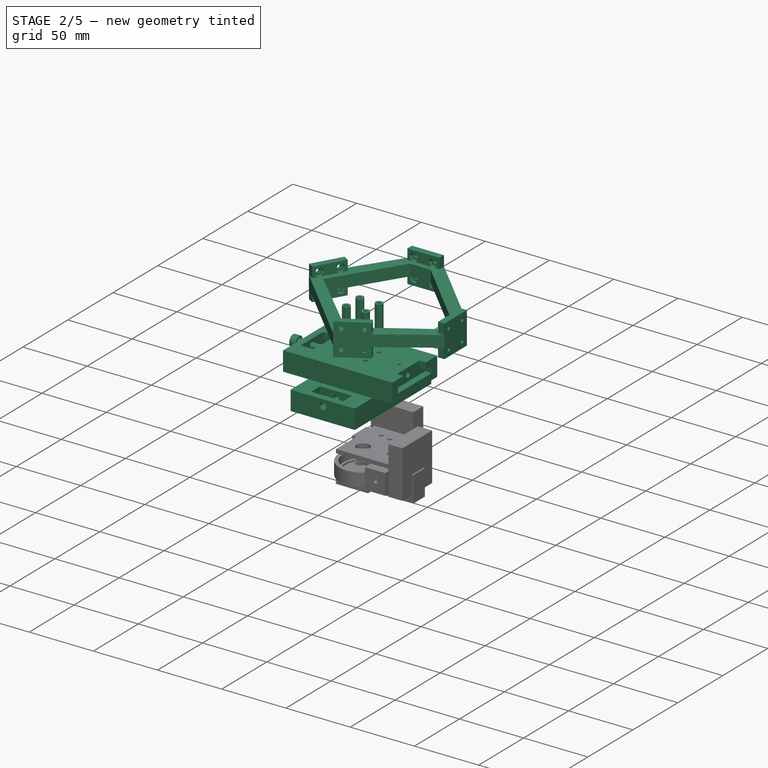
[diagram: stage 2 of 5 — iso view after this stage's code; geometry added in this stage tinted green]
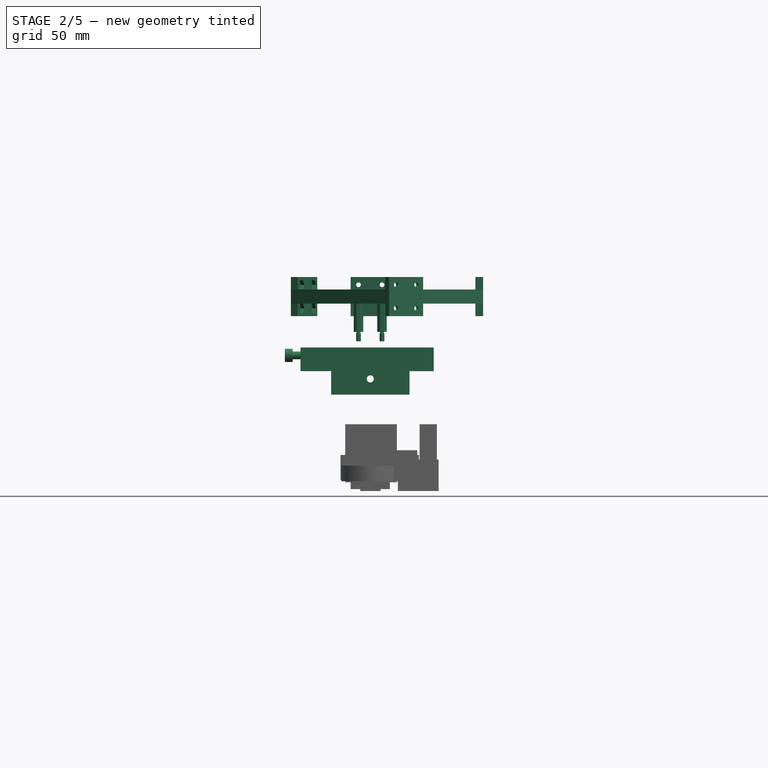
[diagram: stage 2 of 5 — front view after this stage's code; geometry added in this stage tinted green]
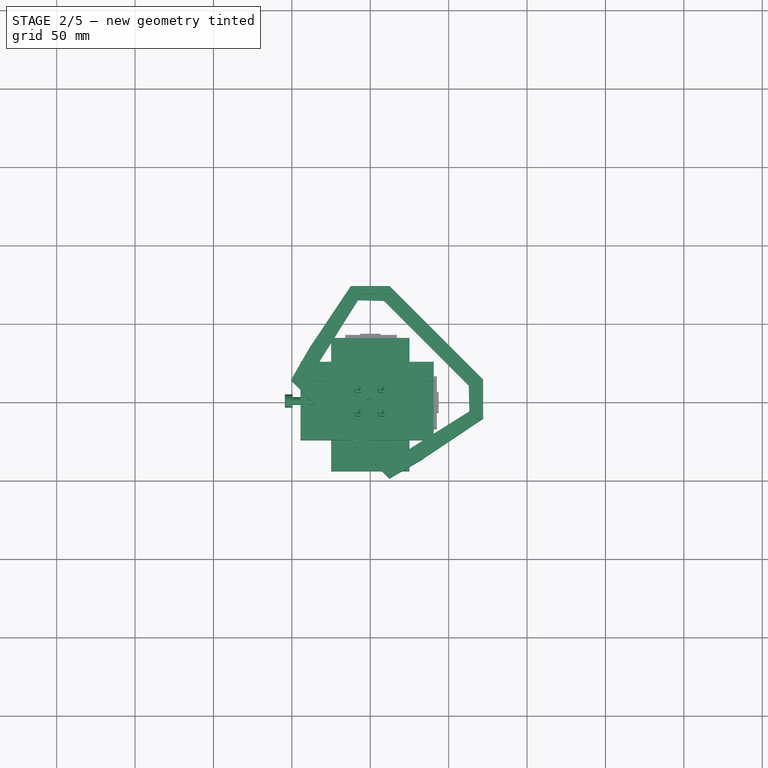
[diagram: stage 2 of 5 — top view after this stage's code; geometry added in this stage tinted green]
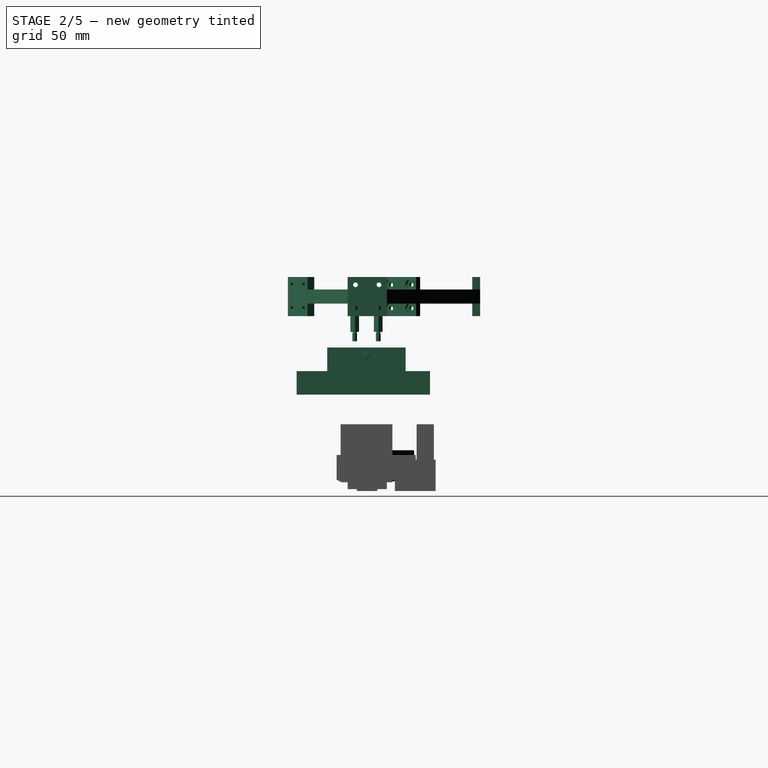
[diagram: stage 2 of 5 — right view after this stage's code; geometry added in this stage tinted green]
FEATURE [Part::Part2DObjectPython] Polygon008  label="screwhole004"  # Draft 2D object (typed FeaturePython)
  ChamferSize = 0
  DrawMode = 0
  FacesNumber = 60
  FilletRadius = 0
  MakeFace = false
  Placement = pos=(20,5,0) rot=(0,0,1;0rad)
  Radius = 1.5
FEATURE [Part::Part2DObjectPython] Circle009  # Draft 2D object (typed FeaturePython)
  FirstAngle = 0
  LastAngle = 0
  MakeFace = false
  Placement = pos=(12.5,12.5,0) rot=(0,0,1;0rad)
  Radius = 2.5
FEATURE [Part::Part2DObjectPython] Polygon009  label="screwhole005"  # Draft 2D object (typed FeaturePython)
  ChamferSize = 0
  DrawMode = 0
  FacesNumber = 60
  FilletRadius = 0
  MakeFace = false
  Placement = pos=(5,20,0) rot=(0,0,1;0rad)
  Radius = 1.5
FEATURE [Part::Part2DObjectPython] Polygon010  label="screwhole006"  # Draft 2D object (typed FeaturePython)
  ChamferSize = 0
  DrawMode = 0
  FacesNumber = 60
  FilletRadius = 0
  MakeFace = false
  Placement = pos=(5,5,0) rot=(0,0,1;0rad)
  Radius = 1.5
FEATURE [Part::Part2DObjectPython] Polygon011  label="screwhole007"  # Draft 2D object (typed FeaturePython)
  ChamferSize = 0
  DrawMode = 0
  FacesNumber = 60
  FilletRadius = 0
  MakeFace = false
  Placement = pos=(20,20,0) rot=(0,0,1;0rad)
  Radius = 1.5
FEATURE [Part::Part2DObjectPython] Rectangle015  # Draft 2D object (typed FeaturePython)
  ChamferSize = 0
  Columns = 1
  FilletRadius = 0
  Height = 25
  Length = 25
  MakeFace = false
  Rows = 1
FEATURE [Part::Part2DObjectPython] Polygon012  label="nut_insert004"  # Draft 2D object (typed FeaturePython)
  ChamferSize = 0
  DrawMode = 0
  FacesNumber = 6
  FilletRadius = 0
  MakeFace = false
  Placement = pos=(5,20,0) rot=(0,0,1;0rad)
  Radius = 3.41
FEATURE [Part::Part2DObjectPython] Polygon013  label="nut_insert005"  # Draft 2D object (typed FeaturePython)
  ChamferSize = 0
  DrawMode = 0
  FacesNumber = 6
  FilletRadius = 0
  MakeFace = false
  Placement = pos=(5,5,0) rot=(0,0,1;0rad)
  Radius = 3.41
FEATURE [Part::Part2DObjectPython] Polygon014  label="nut_insert006"  # Draft 2D object (typed FeaturePython)
  ChamferSize = 0
  DrawMode = 0
  FacesNumber = 6
  FilletRadius = 0
  MakeFace = false
  Placement = pos=(20,20,0) rot=(0,0,1;0rad)
  Radius = 3.41
FEATURE [Part::Part2DObjectPython] Polygon015  label="nut_insert007"  # Draft 2D object (typed FeaturePython)
  ChamferSize = 0
  DrawMode = 0
  FacesNumber = 6
  FilletRadius = 0
  MakeFace = false
  Placement = pos=(20,5,0) rot=(0,0,1;0rad)
  Radius = 3.41
FEATURE [App::DocumentObjectGroup] Group012  label="opt"
  Group = -> [Polygon015,Polygon012,Polygon013,Polygon014]
FEATURE [Part::Extrusion] Extrude042
  Base = -> Polygon008
  Dir = (0,0,1)
  DirMode = 2
  FaceMakerClass = Part::FaceMakerBullseye
  LengthFwd = 5
  LengthRev = 0
  Solid = true
  Symmetric = false
FEATURE [Part::Extrusion] Extrude044
  Base = -> Polygon009
  Dir = (0,0,1)
  DirMode = 2
  FaceMakerClass = Part::FaceMakerBullseye
  LengthFwd = 5
  LengthRev = 0
  Solid = true
  Symmetric = false
FEATURE [Part::Extrusion] Extrude045
  Base = -> Polygon010
  Dir = (0,0,1)
  DirMode = 2
  FaceMakerClass = Part::FaceMakerBullseye
  LengthFwd = 5
  LengthRev = 0
  Solid = true
  Symmetric = false
FEATURE [Part::Extrusion] Extrude046
  Base = -> Polygon011
  Dir = (0,0,1)
  DirMode = 2
  FaceMakerClass = Part::FaceMakerBullseye
  LengthFwd = 5
  LengthRev = 0
  Solid = true
  Symmetric = false
FEATURE [Part::Extrusion] Extrude047  label="base"
  Base = -> Rectangle015
  Dir = (0,0,1)
  DirMode = 2
  FaceMakerClass = Part::FaceMakerBullseye
  LengthFwd = 5
  LengthRev = 0
  Solid = true
  Symmetric = false
FEATURE [App::DocumentObjectGroup] Group015  label="connector A"
FEATURE [Part::Extrusion] Extrude048
  Base = -> Polygon012
  Dir = (0,0,1)
  DirMode = 2
  FaceMakerClass = Part::FaceMakerBullseye
  LengthFwd = 2.5
  LengthRev = 0
  Solid = true
  Symmetric = false
FEATURE [Part::Extrusion] Extrude049
  Base = -> Polygon013
  Dir = (0,0,1)
  DirMode = 2
  FaceMakerClass = Part::FaceMakerBullseye
  LengthFwd = 2.5
  LengthRev = 0
  Solid = true
  Symmetric = false
FEATURE [Part::Extrusion] Extrude050
  Base = -> Polygon014
  Dir = (0,0,1)
  DirMode = 2
  FaceMakerClass = Part::FaceMakerBullseye
  LengthFwd = 2.5
  LengthRev = 0
  Solid = true
  Symmetric = false
FEATURE [Part::Extrusion] Extrude051
  Base = -> Polygon015
  Dir = (0,0,1)
  DirMode = 2
  FaceMakerClass = Part::FaceMakerBullseye
  LengthFwd = 2.5
  LengthRev = 0
  Solid = true
  Symmetric = false
FEATURE [Part::MultiFuse] Fusion003006  label="nut inserts"
  Shapes = -> [Extrude048,Extrude051,Extrude050,Extrude049]
FEATURE [Part::Extrusion] Extrude043
  Base = -> Circle009
  Dir = (0,0,1)
  DirMode = 2
  FaceMakerClass = Part::FaceMakerBullseye
  LengthFwd = 2.9
  LengthRev = 0
  Placement = pos=(0,0,2.1) rot=(0,0,1;0rad)
  Solid = true
  Symmetric = false
FEATURE [Part::MultiFuse] Fusion003005  label="holes"
  Shapes = -> [Extrude046,Extrude042,Extrude043,Extrude044,Extrude045]
FEATURE [Part::Cut] Cut004003002004  label="connector_without_nut_inserts"
  Base = -> Extrude047
  Tool = -> Fusion003005
FEATURE [App::DocumentObjectGroup] Group016  label="connector B"
  Group = -> [Cylinder001]
FEATURE [App::DocumentObjectGroup] Group014  label="connectors"
  Group = -> [Group015,Group016]
FEATURE [Part::Part2DObjectPython] Polygon016  label="nut_insert008"  # Draft 2D object (typed FeaturePython)
  ChamferSize = 0
  DrawMode = 0
  FacesNumber = 6
  FilletRadius = 0
  MakeFace = false
  Placement = pos=(5,20,0) rot=(0,0,1;0rad)
  Radius = 3.41
FEATURE [Part::Part2DObjectPython] Polygon017  label="nut_insert009"  # Draft 2D object (typed FeaturePython)
  ChamferSize = 0
  DrawMode = 0
  FacesNumber = 6
  FilletRadius = 0
  MakeFace = false
  Placement = pos=(5,5,0) rot=(0,0,1;0rad)
  Radius = 3.41
FEATURE [Part::Part2DObjectPython] Polygon018  label="nut_insert010"  # Draft 2D object (typed FeaturePython)
  ChamferSize = 0
  DrawMode = 0
  FacesNumber = 6
  FilletRadius = 0
  MakeFace = false
  Placement = pos=(20,20,0) rot=(0,0,1;0rad)
  Radius = 3.41
FEATURE [Part::Part2DObjectPython] Polygon019  label="nut_insert011"  # Draft 2D object (typed FeaturePython)
  ChamferSize = 0
  DrawMode = 0
  FacesNumber = 6
  FilletRadius = 0
  MakeFace = false
  Placement = pos=(20,5,0) rot=(0,0,1;0rad)
  Radius = 3.41
FEATURE [Part::Extrusion] Extrude052
  Base = -> Polygon016
  Dir = (0,0,1)
  DirMode = 2
  FaceMakerClass = Part::FaceMakerBullseye
  LengthFwd = 2.5
  LengthRev = 0
  Solid = true
  Symmetric = false
FEATURE [Part::Extrusion] Extrude053
  Base = -> Polygon017
  Dir = (0,0,1)
  DirMode = 2
  FaceMakerClass = Part::FaceMakerBullseye
  LengthFwd = 2.5
  LengthRev = 0
  Solid = true
  Symmetric = false
FEATURE [Part::Extrusion] Extrude054
  Base = -> Polygon018
  Dir = (0,0,1)
  DirMode = 2
  FaceMakerClass = Part::FaceMakerBullseye
  LengthFwd = 2.5
  LengthRev = 0
  Solid = true
  Symmetric = false
FEATURE [Part::Extrusion] Extrude055
  Base = -> Polygon019
  Dir = (0,0,1)
  DirMode = 2
  FaceMakerClass = Part::FaceMakerBullseye
  LengthFwd = 2.5
  LengthRev = 0
  Solid = true
  Symmetric = false
FEATURE [App::DocumentObjectGroup] Group009  label="speaker mount"
  Group = -> [Cut004003002006003,Cut004003002006010]
FEATURE [App::DocumentObjectGroup] Group002  label="spkr"
  Group = -> [Group003,Group004,Group007,Group009]
FEATURE [Part::Feature] Cut004003002006003001  label="speaker mounter"
  shape: bbox 37 x 37 x 15.2 mm, 307 faces, 2 solids (baked)
FEATURE [Part::Feature] Chamfer003  label="connector002"
  Placement = pos=(-12,-12,-5.5) rot=(0,0,1;0rad)
  shape: bbox 25 x 25 x 10 mm, 281 faces (baked)
FEATURE [Part::Feature] Fusion003016  label="speaker model003"
  shape: bbox 77 x 77 x 22.25 mm, 19 faces (baked)
FEATURE [Part::Part2DObjectPython] Rectangle022  # Draft 2D object (typed FeaturePython)
  ChamferSize = 0
  Columns = 1
  FilletRadius = 0
  Height = 13
  Length = 2
  MakeFace = false
  Placement = pos=(-1,7,0) rot=(0,0,1;0rad)
  Rows = 1
FEATURE [Part::Part2DObjectPython] Circle013  label="Circle015"  # Draft 2D object (typed FeaturePython)
  FirstAngle = 0
  LastAngle = 0
  MakeFace = false
  Radius = 8
FEATURE [Part::Part2DObjectPython] Rectangle024  # Draft 2D object (typed FeaturePython)
  ChamferSize = 0
  Columns = 1
  FilletRadius = 0
  Height = 12
  Length = 4
  MakeFace = false
  Placement = pos=(-5,8,0) rot=(0,0,1;0rad)
  Rows = 1
FEATURE [Part::Part2DObjectPython] Rectangle023  # Draft 2D object (typed FeaturePython)
  ChamferSize = 0
  Columns = 1
  FilletRadius = 0
  Height = 12
  Length = 4
  MakeFace = false
  Placement = pos=(1,8,0) rot=(0,0,1;0rad)
  Rows = 1
FEATURE [Part::Part2DObjectPython] Circle014  # Draft 2D object (typed FeaturePython)
  FirstAngle = 0
  LastAngle = 0
  MakeFace = false
  Radius = 12
FEATURE [Part::Extrusion] Extrude084
  Base = -> Rectangle022
  Dir = (0,0,1)
  DirMode = 2
  FaceMakerClass = Part::FaceMakerBullseye
  LengthFwd = 10
  LengthRev = 0
  Solid = true
  Symmetric = false
FEATURE [Part::Extrusion] Extrude085
  Base = -> Circle013
  Dir = (0,0,1)
  DirMode = 2
  FaceMakerClass = Part::FaceMakerBullseye
  LengthFwd = 10
  LengthRev = 0
  Solid = true
  Symmetric = false
FEATURE [Part::Extrusion] Extrude086
  Base = -> Rectangle024
  Dir = (0,0,1)
  DirMode = 2
  FaceMakerClass = Part::FaceMakerBullseye
  LengthFwd = 10
  LengthRev = 0
  Solid = true
  Symmetric = false
FEATURE [Part::Extrusion] Extrude087
  Base = -> Rectangle023
  Dir = (0,0,1)
  DirMode = 2
  FaceMakerClass = Part::FaceMakerBullseye
  LengthFwd = 10
  LengthRev = 0
  Solid = true
  Symmetric = false
FEATURE [Part::Extrusion] Extrude088
  Base = -> Circle014
  Dir = (0,0,1)
  DirMode = 2
  FaceMakerClass = Part::FaceMakerBullseye
  LengthFwd = 10
  LengthRev = 0
  Solid = true
  Symmetric = false
FEATURE [Part::MultiFuse] Fusion003022
  Shapes = -> [Extrude084,Extrude085]
FEATURE [Part::MultiFuse] Fusion003023
  Shapes = -> [Extrude086,Extrude087,Extrude088]
FEATURE [Part::Cut] Cut004003002006003003
  Base = -> Fusion003023
  Tool = -> Fusion003022
FEATURE [Part::Part2DObjectPython] Polygon040  label="nut_insert024"  # Draft 2D object (typed FeaturePython)
  ChamferSize = 0
  DrawMode = 0
  FacesNumber = 6
  FilletRadius = 0
  MakeFace = false
  Placement = pos=(5,20,0) rot=(0,0,1;0rad)
  Radius = 3.41
FEATURE [Part::Extrusion] Extrude089
  Base = -> Polygon040
  Dir = (0,0,1)
  DirMode = 2
  FaceMakerClass = Part::FaceMakerBullseye
  LengthFwd = 2.5
  LengthRev = 0
  Placement = pos=(5,-5,1e-15) rot=(0,-1,0;1.5708rad)
  Solid = true
  Symmetric = false
FEATURE [Part::Part2DObjectPython] Polygon041  label="screwhole016"  # Draft 2D object (typed FeaturePython)
  ChamferSize = 0
  DrawMode = 0
  FacesNumber = 60
  FilletRadius = 0
  MakeFace = false
  Placement = pos=(5,20,0) rot=(0,0,1;0rad)
  Radius = 1.5
FEATURE [Part::Extrusion] Extrude090
  Base = -> Polygon041
  Dir = (0,0,1)
  DirMode = 2
  FaceMakerClass = Part::FaceMakerBullseye
  LengthFwd = 4
  LengthRev = 0
  Placement = pos=(5,-5,1e-15) rot=(0,-1,0;1.5708rad)
  Solid = true
  Symmetric = false
FEATURE [Part::Part2DObjectPython] Polygon042  label="screwhole017"  # Draft 2D object (typed FeaturePython)
  ChamferSize = 0
  DrawMode = 0
  FacesNumber = 60
  FilletRadius = 0
  MakeFace = false
  Placement = pos=(5,20,0) rot=(0,0,1;0rad)
  Radius = 1.5
FEATURE [Part::Extrusion] Extrude091
  Base = -> Polygon042
  Dir = (0,0,1)
  DirMode = 2
  FaceMakerClass = Part::FaceMakerBullseye
  LengthFwd = 4
  LengthRev = 0
  Placement = pos=(-1,-5,2e-15) rot=(0,-1,0;1.5708rad)
  Solid = true
  Symmetric = false
FEATURE [Part::MultiFuse] Fusion003024
  Shapes = -> [Extrude091,Extrude090,Extrude089]
FEATURE [Part::Cut] Cut004003002006003004  label="clamp"
  Base = -> Cut004003002006003003
  Placement = pos=(0,2,8.5) rot=(0,0,1;0rad)
  Tool = -> Fusion003024
FEATURE [Part::Part2DObjectPython] Polygon043  label="screwhole018"  # Draft 2D object (typed FeaturePython)
  ChamferSize = 0
  DrawMode = 0
  FacesNumber = 60
  FilletRadius = 0
  MakeFace = false
  Placement = pos=(20,5,0) rot=(0,0,1;0rad)
  Radius = 1.5
FEATURE [Part::Part2DObjectPython] Circle015  label="Circle016"  # Draft 2D object (typed FeaturePython)
  FirstAngle = 0
  LastAngle = 0
  MakeFace = false
  Placement = pos=(12.5,12.5,0) rot=(0,0,1;0rad)
  Radius = 2.5
FEATURE [Part::Part2DObjectPython] Polygon044  label="screwhole019"  # Draft 2D object (typed FeaturePython)
  ChamferSize = 0
  DrawMode = 0
  FacesNumber = 60
  FilletRadius = 0
  MakeFace = false
  Placement = pos=(5,20,0) rot=(0,0,1;0rad)
  Radius = 1.5
FEATURE [Part::Part2DObjectPython] Polygon045  label="screwhole020"  # Draft 2D object (typed FeaturePython)
  ChamferSize = 0
  DrawMode = 0
  FacesNumber = 60
  FilletRadius = 0
  MakeFace = false
  Placement = pos=(5,5,0) rot=(0,0,1;0rad)
  Radius = 1.5
FEATURE [Part::Part2DObjectPython] Polygon046  label="screwhole021"  # Draft 2D object (typed FeaturePython)
  ChamferSize = 0
  DrawMode = 0
  FacesNumber = 60
  FilletRadius = 0
  MakeFace = false
  Placement = pos=(20,20,0) rot=(0,0,1;0rad)
  Radius = 1.5
FEATURE [Part::Part2DObjectPython] Rectangle025  # Draft 2D object (typed FeaturePython)
  ChamferSize = 0
  Columns = 1
  FilletRadius = 0
  Height = 25
  Length = 25
  MakeFace = false
  Rows = 1
FEATURE [Part::Extrusion] Extrude092
  Base = -> Polygon043
  Dir = (0,0,1)
  DirMode = 2
  FaceMakerClass = Part::FaceMakerBullseye
  LengthFwd = 5
  LengthRev = 0
  Solid = true
  Symmetric = false
FEATURE [Part::Extrusion] Extrude093
  Base = -> Polygon044
  Dir = (0,0,1)
  DirMode = 2
  FaceMakerClass = Part::FaceMakerBullseye
  LengthFwd = 5
  LengthRev = 0
  Solid = true
  Symmetric = false
FEATURE [Part::Extrusion] Extrude094
  Base = -> Polygon045
  Dir = (0,0,1)
  DirMode = 2
  FaceMakerClass = Part::FaceMakerBullseye
  LengthFwd = 5
  LengthRev = 0
  Solid = true
  Symmetric = false
FEATURE [Part::Extrusion] Extrude095
  Base = -> Polygon046
  Dir = (0,0,1)
  DirMode = 2
  FaceMakerClass = Part::FaceMakerBullseye
  LengthFwd = 5
  LengthRev = 0
  Solid = true
  Symmetric = false
FEATURE [Part::Extrusion] Extrude096  label="base003"
  Base = -> Rectangle025
  Dir = (0,0,1)
  DirMode = 2
  FaceMakerClass = Part::FaceMakerBullseye
  LengthFwd = 5
  LengthRev = 0
  Solid = true
  Symmetric = false
FEATURE [Part::Extrusion] Extrude097
  Base = -> Circle015
  Dir = (0,0,1)
  DirMode = 2
  FaceMakerClass = Part::FaceMakerBullseye
  LengthFwd = 2.9
  LengthRev = 0
  Placement = pos=(0,0,2.1) rot=(0,0,1;0rad)
  Solid = true
  Symmetric = false
FEATURE [Part::MultiFuse] Fusion003025  label="holes003"
  Shapes = -> [Extrude095,Extrude092,Extrude097,Extrude093,Extrude094]
FEATURE [Part::Cut] Cut004003002006003005  label="base_with_holes004"
  Base = -> Extrude096
  Placement = pos=(-12.5,-8,-15) rot=(1,0,0;1.5708rad)
  Tool = -> Fusion003025
FEATURE [Sketcher::SketchObject] Sketch010
  Placement = pos=(0,0,200) rot=(0,0,1;0rad)
  sketch-geometry (8):
    g0: LineSegment StartX=-25 StartY=30 StartZ=0 EndX=25 EndY=30 EndZ=0
    g1: LineSegment StartX=25 StartY=30 StartZ=0 EndX=25 EndY=-30 EndZ=0
    g2: LineSegment StartX=25 StartY=-30 StartZ=0 EndX=-25 EndY=-30 EndZ=0
    g3: LineSegment StartX=-25 StartY=-30 StartZ=0 EndX=-25 EndY=30 EndZ=0
    g4: LineSegment [constr] StartX=0 StartY=0 StartZ=0 EndX=-25 EndY=30 EndZ=0
    g5: LineSegment [constr] StartX=0 StartY=0 StartZ=0 EndX=25 EndY=30 EndZ=0
    g6: LineSegment [constr] StartX=0 StartY=0 StartZ=0 EndX=-25 EndY=-30 EndZ=0
    g7: LineSegment [constr] StartX=0 StartY=0 StartZ=0 EndX=25 EndY=-30 EndZ=0
  constraints (20):
    c: Coincident(g0,g1)
    c: Coincident(g1,g2)
    c: Coincident(g2,g3)
    c: Coincident(g3,g0)
    c: Horizontal(g0)
    c: Horizontal(g2)
    c: Vertical(g1)
    c: Distance(g0) = 50
    c: Distance(g1) = 60
    c: Coincident(g4,g-1)
    c: Coincident(g4,g0)
    c: Coincident(g5,g-1)
    c: Coincident(g5,g0)
    c: Coincident(g6,g-1)
    c: Coincident(g6,g2)
    c: Coincident(g7,g-1)
    c: Coincident(g7,g1)
    c: Equal(g4,g5)
    c: Equal(g5,g7)
    c: Equal(g7,g6)
FEATURE [Part::Extrusion] Extrude159
  Base = -> Sketch010
  Dir = (0,0,1)
  DirMode = 2
  FaceMakerClass = Part::FaceMakerBullseye
  LengthFwd = 5
  LengthRev = 0
  Placement = pos=(0,0,-175) rot=(0,0,1;0rad)
  Solid = true
  Symmetric = false
FEATURE [Part::FeaturePython] Screw  label="M5x65-Screw"  # Fasteners workbench fastener (typed FeaturePython)
  Placement = pos=(0,-50,40) rot=(1,0,0;1.5708rad)
  diameter = 6
  invert = false
  length = 12
  lengthCustom = 65
  matchOuter = false
  offset = 0
  thread = false
  type = 32
FEATURE [Part::Extrusion] Extrude161
  Base = -> Sketch011
  Dir = (0,-1,9e-16)
  DirMode = 2
  FaceMakerClass = Part::FaceMakerBullseye
  LengthFwd = 40
  LengthRev = 40
  Solid = true
  Symmetric = false
FEATURE [Sketcher::SketchObject] Sketch013  label="rail_outer001"
  ExternalGeometry = -> [Extrude159,Screw,Extrude161]
  Placement = pos=(0,0,0) rot=(1,0,0;1.5708rad)
  sketch-geometry (5):
    g0: LineSegment StartX=-25 StartY=30 StartZ=0 EndX=-25 EndY=45 EndZ=0
    g1: LineSegment StartX=-25 StartY=45 StartZ=0 EndX=25 EndY=45 EndZ=0
    g2: LineSegment StartX=-25 StartY=30 StartZ=0 EndX=25 EndY=30 EndZ=0
    g3: LineSegment StartX=25 StartY=45 StartZ=0 EndX=25 EndY=30 EndZ=0
    g4: Circle CenterX=0 CenterY=40 CenterZ=0 NormalX=0 NormalY=0 NormalZ=1 AngleXU=0 Radius=2.5
  constraints (11):
    c: Vertical(g0)
    c: Coincident(g1,g0)
    c: Coincident(g-3,g0)
    c: Coincident(g2,g0)
    c: Coincident(g3,g2)
    c: Coincident(g-3,g2)
    c: Vertical(g3)
    c: Tangent(g-5,g1)
    c: Coincident(g1,g3)
    c: Equal(g-4,g4)
    c: Coincident(g4,g-4)
FEATURE [Part::Extrusion] Extrude162
  Base = -> Sketch013
  Dir = (0,-1,1.1e-15)
  DirMode = 2
  FaceMakerClass = Part::FaceMakerBullseye
  LengthFwd = 5
  LengthRev = 0
  Placement = pos=(0,-40,0) rot=(0,0,1;0rad)
  Solid = true
  Symmetric = false
FEATURE [Part::MultiFuse] Fusion003055  label="holes008"
  Placement = pos=(-12.5,-13,40) rot=(0,0,1;0rad)
  Shapes = -> [Extrude046,Extrude042,Extrude043,Extrude044,Extrude045]
FEATURE [Part::MultiFuse] Fusion003056  label="nut inserts006"
  Placement = pos=(-12.5,-13,35) rot=(0,0,1;0rad)
  Shapes = -> [Extrude052,Extrude055,Extrude054,Extrude053]
FEATURE [Part::Extrusion] Extrude164
  Base = -> Polygon010
  Dir = (0,0,1)
  DirMode = 2
  FaceMakerClass = Part::FaceMakerBullseye
  LengthFwd = 5
  LengthRev = 0
  Solid = true
  Symmetric = false
FEATURE [Part::Extrusion] Extrude165
  Base = -> Polygon009
  Dir = (0,0,1)
  DirMode = 2
  FaceMakerClass = Part::FaceMakerBullseye
  LengthFwd = 5
  LengthRev = 0
  Solid = true
  Symmetric = false
FEATURE [Part::Extrusion] Extrude166
  Base = -> Polygon008
  Dir = (0,0,1)
  DirMode = 2
  FaceMakerClass = Part::FaceMakerBullseye
  LengthFwd = 5
  LengthRev = 0
  Solid = true
  Symmetric = false
FEATURE [Part::Extrusion] Extrude167
  Base = -> Polygon011
  Dir = (0,0,1)
  DirMode = 2
  FaceMakerClass = Part::FaceMakerBullseye
  LengthFwd = 5
  LengthRev = 0
  Solid = true
  Symmetric = false
FEATURE [Part::MultiFuse] Fusion003057  label="screw holes"
  Placement = pos=(-12.5,-13,37.5) rot=(0,0,1;0rad)
  Shapes = -> [Extrude164,Extrude166,Extrude167,Extrude165]
FEATURE [App::DocumentObjectGroup] Group018  label="ideas"
  Group = -> [Extrude137,Sketch001,Cut004003002006003006016]
FEATURE [Part::Extrusion] Extrude168
  Base = -> Sketch012
  Dir = (0,-1,1.1e-15)
  DirMode = 2
  FaceMakerClass = Part::FaceMakerBullseye
  LengthFwd = 30
  LengthRev = 35
  Solid = true
  Symmetric = false
FEATURE [Part::MultiFuse] Fusion003060  label="nut inserts007"
  Placement = pos=(-12.5,-13,36) rot=(0,0,1;0rad)
  Shapes = -> [Extrude052,Extrude055,Extrude054,Extrude053]
FEATURE [Part::MultiFuse] Fusion003059  label="cutout"
  Shapes = -> [Fusion003055,Fusion003056,Fusion003057,Fusion003060]
FEATURE [Part::Cut] Cut004003002006003006017
  Base = -> Extrude168
  Tool = -> Fusion003059
FEATURE [Part::MultiFuse] Fusion003061  label="cutout001"
  Placement = pos=(4e-15,0,70) rot=(0,1,0;3.14159rad)
  Shapes = -> [Fusion003055,Fusion003056,Fusion003057,Fusion003060]
FEATURE [Part::Cut] Cut004003002006003006018
  Base = -> Extrude161
  Tool = -> Fusion003061
FEATURE [Part::Cylinder] Cylinder003
  Angle = 360
  AttacherType = Attacher::AttachEngine3D
  Height = 10
  Placement = pos=(0,28,40) rot=(0,0,1;0rad)
  Radius = 1.25
FEATURE [Part::Cut] Cut004003002006003006019
  Base = -> Cut004003002006003006017
  Tool = -> Cylinder003
FEATURE [Part::MultiFuse] Fusion003063  label="rail001"
  Placement = pos=(0.5,-0.5,15) rot=(0,0,-1;1.5708rad)
  Shapes = -> [Screw,Extrude162,Cut004003002006003006018,Cut004003002006003006019]
FEATURE [Part::FeaturePython] Screw003  label="M3x10-Screw003"  # Fasteners workbench fastener (typed FeaturePython)
  Placement = pos=(7.5,-8,5) rot=(-1,0,0;1.5708rad)
  diameter = 4
  invert = false
  length = 10
  lengthCustom = 10
  matchOuter = false
  offset = 0
  thread = false
  type = 32
FEATURE [Part::FeaturePython] Screw004  label="M3x10-Screw004"  # Fasteners workbench fastener (typed FeaturePython)
  Placement = pos=(-7.5,-8,5) rot=(-1,0,0;1.5708rad)
  diameter = 4
  invert = false
  length = 10
  lengthCustom = 10
  matchOuter = false
  offset = 0
  thread = false
  type = 32
FEATURE [Part::FeaturePython] Screw005  label="M3x10-Screw"  # Fasteners workbench fastener (typed FeaturePython)
  Placement = pos=(7.5,-8,-10) rot=(-1,0,0;1.5708rad)
  diameter = 4
  invert = false
  length = 10
  lengthCustom = 10
  matchOuter = false
  offset = 0
  thread = false
  type = 32
FEATURE [Part::FeaturePython] Screw006  label="M3x10-Screw005"  # Fasteners workbench fastener (typed FeaturePython)
  Placement = pos=(-7.5,-8,-10) rot=(-1,0,0;1.5708rad)
  diameter = 4
  invert = false
  length = 10
  lengthCustom = 10
  matchOuter = false
  offset = 0
  thread = false
  type = 32
FEATURE [Sketcher::SketchObject] Sketch015
  ExternalGeometry = -> [Cut004003002006003005,Cut004003002006003004]
  Placement = pos=(0,0,0) rot=(0.57735,0.57735,0.57735;2.0944rad)
  sketch-geometry (5):
    g0: LineSegment StartX=-13 StartY=10 StartZ=0 EndX=-8 EndY=10 EndZ=0
    g1: LineSegment StartX=-13 StartY=10 StartZ=0 EndX=-8 EndY=18.5 EndZ=0
    g2: LineSegment StartX=-8 StartY=18.5 StartZ=0 EndX=-8 EndY=10 EndZ=0
    g3: LineSegment [constr] StartX=12.9087 StartY=18.5 StartZ=0 EndX=-13 EndY=18.5 EndZ=0
    g4: LineSegment [constr] StartX=-13 StartY=10 StartZ=0 EndX=-13 EndY=18.5 EndZ=0
  constraints (13):
    c: Coincident(g0,g-3)
    c: PointOnObject(g0,g-3)
    c: Coincident(g1,g0)
    c: Coincident(g2,g1)
    c: Coincident(g2,g0)
    c: Perpendicular(g0,g2)
    c: Coincident(g3,g-4)
    c: Horizontal(g3)
    c: PointOnObject(g1,g3)
    c: Coincident(g4,g0)
    c: Coincident(g4,g3)
    c: Perpendicular(g4,g3)
    c: Equal(g0,g-3)
FEATURE [Part::Extrusion] Extrude169
  Base = -> Sketch015
  Dir = (1,0,0)
  DirMode = 2
  FaceMakerClass = Part::FaceMakerBullseye
  LengthFwd = 25
  LengthRev = 0
  Solid = true
  Symmetric = true
FEATURE [Part::Fillet] Fillet002005002  label="bracket_gusset"
  Base = -> Extrude169
  Edges = 1 edges r=1: [Edge5]
FEATURE [Part::MultiFuse] Fusion003065
  Shapes = -> [Fillet002005002,Cut004003002006003004]
FEATURE [Part::MultiFuse] Fusion003066
  Placement = pos=(1e-15,0,-5) rot=(0,1,0;3.14159rad)
  Shapes = -> [Fillet002005002,Cut004003002006003004]
FEATURE [Part::MultiFuse] Fusion003067  label="clamp_no_screws"
  Shapes = -> [Cut004003002006003005,Fusion003065,Fusion003066]
FEATURE [Part::MultiFuse] Fusion003070  label="Clamp Bracket002"
  Placement = pos=(85,-2.5e-14,63) rot=(0,0,-1;1.5708rad)
  Shapes = -> [Screw003,Screw005,Screw004,Screw006,Fusion003067]
FEATURE [Part::MultiFuse] Fusion003071  label="Clamp Bracket003"
  Placement = pos=(-2.8e-14,85,63) rot=(0,0,1;0rad)
  Shapes = -> [Screw003,Screw005,Screw004,Screw006,Fusion003067]
FEATURE [Part::MultiFuse] Fusion003072  label="Clamp Bracket004"
  Placement = pos=(-55.65,29.37,63) rot=(0,0,1;1.0472rad)
  Shapes = -> [Screw003,Screw005,Screw004,Screw006,Fusion003067]
FEATURE [Part::MultiFuse] Fusion003073  label="Clamp Bracket005"
  Placement = pos=(29.37,-55.63,63) rot=(0,0,1;3.66519rad)
  Shapes = -> [Screw003,Screw005,Screw004,Screw006,Fusion003067]
FEATURE [Part::MultiFuse] Fusion003074  label="frame_clamp_brackets"
  Placement = pos=(0,0,32) rot=(0,0,1;0rad)
  Shapes = -> [Fusion003070,Fusion003073,Fusion003072,Fusion003071]
FEATURE [Sketcher::SketchObject] Sketch016
  ExternalGeometry = -> [Fusion003074]
  Placement = pos=(0,0,80.5) rot=(0,0,1;0rad)
  sketch-geometry (63):
    g0: LineSegment StartX=-50.6417 StartY=12.0447 StartZ=0 EndX=-38.1417 EndY=33.6953 EndZ=0
    g1: LineSegment StartX=-38.1417 StartY=33.6953 StartZ=0 EndX=-12.5 EndY=72 EndZ=0
    g2: LineSegment StartX=-12.5 StartY=72 StartZ=0 EndX=12.5 EndY=72 EndZ=0
    g3: LineSegment StartX=12.5 StartY=72 StartZ=0 EndX=72 EndY=12.5 EndZ=0
    g4: LineSegment StartX=72 StartY=12.5 StartZ=0 EndX=72 EndY=-12.5 EndZ=0
    g5: LineSegment StartX=72 StartY=-12.5 StartZ=0 EndX=33.6953 EndY=-38.1217 EndZ=0
    g6: LineSegment StartX=33.6953 StartY=-38.1217 StartZ=0 EndX=12.0447 EndY=-50.6217 EndZ=0
    g7: LineSegment StartX=12.0447 StartY=-50.6217 StartZ=0 EndX=-50.6417 EndY=12.0447 EndZ=0
    g8: GeomPoint X=-7.7898 Y=63.1788 Z=0
    g9: GeomPoint X=8.67317 Y=62.7612 Z=0
    g10: GeomPoint X=62.7612 Y=8.67317 Z=0
    g11: GeomPoint X=63.1796 Y=-7.7882 Z=0
    g12: GeomPoint X=-29.8317 Y=28.1325 Z=0
    g13: LineSegment [constr] StartX=-7.7898 StartY=63.1788 StartZ=0 EndX=-12.5 EndY=72 EndZ=0
    g14: LineSegment [constr] StartX=12.5 StartY=72 StartZ=0 EndX=8.67317 EndY=62.7612 EndZ=0
    g15: LineSegment [constr] StartX=-29.8317 StartY=28.1325 StartZ=0 EndX=-38.1417 EndY=33.6953 EndZ=0
    g16: LineSegment [constr] StartX=-40.7273 StartY=13.3507 StartZ=0 EndX=-50.6417 EndY=12.0447 EndZ=0
    g17: LineSegment [constr] StartX=62.7612 StartY=8.67317 StartZ=0 EndX=72 EndY=12.5 EndZ=0
    g18: LineSegment [constr] StartX=72 StartY=-12.5 StartZ=0 EndX=63.1796 EndY=-7.7882 EndZ=0
    g19: LineSegment [constr] StartX=28.1355 StartY=-29.8097 StartZ=0 EndX=33.6953 EndY=-38.1217 EndZ=0
    g20: LineSegment [constr] StartX=13.3492 StartY=-40.7071 StartZ=0 EndX=12.0447 EndY=-50.6217 EndZ=0
    g21: LineSegment [constr] StartX=-49.066 StartY=14.7739 StartZ=0 EndX=-48.413 EndY=9.81668 EndZ=0
    g22: LineSegment [constr] StartX=-48.8515 StartY=13.1454 StartZ=0 EndX=-50.6417 EndY=12.0447 EndZ=0
    g23: LineSegment [constr] StartX=-48.6275 StartY=11.4451 StartZ=0 EndX=-50.6417 EndY=12.0447 EndZ=0
    g24: LineSegment [constr] StartX=-48.8515 StartY=13.1454 StartZ=0 EndX=-48.2294 EndY=12.3625 EndZ=0
    g25: LineSegment [constr] StartX=-48.2294 StartY=12.3625 StartZ=0 EndX=-48.6275 EndY=11.4451 EndZ=0
    g26: LineSegment [constr] StartX=-49.066 StartY=14.7739 StartZ=0 EndX=-48.2294 EndY=12.3625 EndZ=0
    g27: LineSegment [constr] StartX=-48.2294 StartY=12.3625 StartZ=0 EndX=-48.413 EndY=9.81668 EndZ=0
    g28: LineSegment [constr] StartX=-48.6275 StartY=11.4451 StartZ=0 EndX=-49.3345 EndY=10.7379 EndZ=0
    g29: LineSegment [constr] StartX=8.10191 StartY=-46.6802 StartZ=0 EndX=12.7719 EndY=-45.0943 EndZ=0
    g30: LineSegment [constr] StartX=12.7719 StartY=-45.0943 StartZ=0 EndX=16.8728 EndY=-47.8342 EndZ=0
    g31: ArcOfCircle [constr] CenterX=12.0447 CenterY=-50.6217 CenterZ=0 NormalX=0 NormalY=0 NormalZ=1 AngleXU=0 Radius=5.57504 StartAngle=0.523599 EndAngle=1.43998
    g32: ArcOfCircle [constr] CenterX=12.0447 CenterY=-50.6217 CenterZ=0 NormalX=0 NormalY=0 NormalZ=1 AngleXU=0 Radius=5.57504 StartAngle=1.43998 EndAngle=2.35635
    g33: LineSegment [constr] StartX=10.4369 StartY=-45.8872 StartZ=0 EndX=12.0447 EndY=-50.6217 EndZ=0
    g34: ArcOfCircle [constr] CenterX=72 CenterY=-12.5 CenterZ=0 NormalX=0 NormalY=0 NormalZ=1 AngleXU=0 Radius=5.82978 StartAngle=1.5708 EndAngle=2.65097
    g35: ArcOfCircle [constr] CenterX=72 CenterY=-12.5 CenterZ=0 NormalX=0 NormalY=0 NormalZ=1 AngleXU=0 Radius=5.82978 StartAngle=2.65097 EndAngle=3.73113
    g36: LineSegment [constr] StartX=66.8579 StartY=-9.75313 StartZ=0 EndX=67.1543 EndY=-15.7412 EndZ=0
    g37: LineSegment [constr] StartX=66.8579 StartY=-9.75313 StartZ=0 EndX=72 EndY=-6.67022 EndZ=0
    g38: LineSegment [constr] StartX=72 StartY=-12.5 StartZ=0 EndX=69.429 EndY=-8.21167 EndZ=0
    g39: ArcOfCircle [constr] CenterX=72 CenterY=12.5 CenterZ=0 NormalX=0 NormalY=0 NormalZ=1 AngleXU=0 Radius=6.01345 StartAngle=3.53429 EndAngle=4.71239
    g40: ArcOfCircle [constr] CenterX=72 CenterY=12.5 CenterZ=0 NormalX=0 NormalY=0 NormalZ=1 AngleXU=0 Radius=6.01345 StartAngle=2.35619 EndAngle=3.53429
    g41: LineSegment [constr] StartX=67.7478 StartY=16.7522 StartZ=0 EndX=66.4443 EndY=10.1988 EndZ=0
    g42: LineSegment [constr] StartX=66.4443 StartY=10.1988 StartZ=0 EndX=72 EndY=6.48655 EndZ=0
    g43: LineSegment [constr] StartX=67.0961 StartY=13.4755 StartZ=0 EndX=72 EndY=12.5 EndZ=0
    g44: ArcOfCircle [constr] CenterX=12.5 CenterY=72 CenterZ=0 NormalX=0 NormalY=0 NormalZ=1 AngleXU=0 Radius=6.01345 StartAngle=3.14159 EndAngle=4.31969
    g45: ArcOfCircle [constr] CenterX=12.5 CenterY=72 CenterZ=0 NormalX=0 NormalY=0 NormalZ=1 AngleXU=0 Radius=6.01345 StartAngle=4.31969 EndAngle=5.49779
    g46: LineSegment [constr] StartX=6.48655 StartY=72 StartZ=0 EndX=10.1988 EndY=66.4443 EndZ=0
    g47: LineSegment [constr] StartX=10.1988 StartY=66.4443 StartZ=0 EndX=16.7522 EndY=67.7478 EndZ=0
    g48: LineSegment [constr] StartX=12.5 StartY=72 StartZ=0 EndX=8.34265 EndY=69.2221 EndZ=0
    g49: ArcOfCircle [constr] CenterX=-12.5 CenterY=72 CenterZ=0 NormalX=0 NormalY=0 NormalZ=1 AngleXU=0 Radius=5.8301 StartAngle=4.12249 EndAngle=5.20284
    g50: ArcOfCircle [constr] CenterX=-12.5 CenterY=72 CenterZ=0 NormalX=0 NormalY=0 NormalZ=1 AngleXU=0 Radius=5.8301 StartAngle=5.20284 EndAngle=6.28319
    g51: LineSegment [constr] StartX=-15.7432 StartY=67.1552 StartZ=0 EndX=-9.75391 EndY=66.8571 EndZ=0
    g52: LineSegment [constr] StartX=-9.75391 StartY=66.8571 StartZ=0 EndX=-6.6699 EndY=72 EndZ=0
    g53: LineSegment [constr] StartX=-12.5 StartY=72 StartZ=0 EndX=-8.21191 EndY=69.4286 EndZ=0
    g54: LineSegment StartX=-7.7898 StartY=63.1788 StartZ=0 EndX=8.67317 EndY=62.7612 EndZ=0
    g55: LineSegment StartX=8.67317 StartY=62.7612 StartZ=0 EndX=62.7612 EndY=8.67317 EndZ=0
    g56: LineSegment StartX=62.7612 StartY=8.67317 StartZ=0 EndX=63.1796 EndY=-7.7882 EndZ=0
    g57: LineSegment StartX=63.1796 StartY=-7.7882 StartZ=0 EndX=13.3492 EndY=-39.1014 EndZ=0
    g58: LineSegment StartX=13.3492 StartY=-39.1014 StartZ=0 EndX=-39.7343 EndY=12.3876 EndZ=0
    g59: LineSegment StartX=-39.7343 StartY=12.3876 StartZ=0 EndX=-29.8317 EndY=28.1325 EndZ=0
    g60: LineSegment StartX=-29.8317 StartY=28.1325 StartZ=0 EndX=-7.7898 EndY=63.1788 EndZ=0
    g61: LineSegment [constr] StartX=-40.7273 StartY=13.3507 StartZ=0 EndX=-39.7343 EndY=12.3876 EndZ=0
    g62: LineSegment [constr] StartX=13.3492 StartY=-40.7071 StartZ=0 EndX=13.3492 EndY=-39.1014 EndZ=0
  constraints (149):
    c: Coincident(g0,g1)
    c: Coincident(g1,g2)
    c: Coincident(g2,g3)
    c: Coincident(g3,g4)
    c: Coincident(g4,g5)
    c: Coincident(g5,g6)
    c: Coincident(g6,g7)
    c: Coincident(g7,g0)
    c: Coincident(g13,g8)
    c: Coincident(g13,g1)
    c: Coincident(g14,g2)
    c: Coincident(g14,g9)
    c: Coincident(g15,g0)
    c: Coincident(g17,g10)
    c: Coincident(g17,g3)
    c: Coincident(g18,g4)
    c: Coincident(g18,g11)
    c: Coincident(g19,g5)
    c: Coincident(g20,g6)
    c: Coincident(g15,g12)
    c: Perpendicular(g1,g15)
    c: PointOnObject(g21,g0)
    c: PointOnObject(g21,g7)
    c: Perpendicular(g16,g21)
    c: Coincident(g16,g0)
    c: PointOnObject(g22,g21)
    c: Coincident(g22,g0)
    c: PointOnObject(g23,g21)
    c: Coincident(g23,g0)
    c: Coincident(g24,g22)
    c: Coincident(g25,g24)
    c: Coincident(g25,g23)
    c: Equal(g25,g24)
    c: Equal(g22,g23)
    c: Coincident(g26,g21)
    c: Coincident(g26,g24)
    c: Coincident(g27,g24)
    c: Equal(g27,g26)
    c: Coincident(g27,g21)
    c: Distance(g21) = 5
    c: Distance(g25) = 1
    c: Coincident(g28,g23)
    c: PointOnObject(g28,g7)
    c: Perpendicular(g7,g28)
    c: Equal(g28,g25)
    c: PointOnObject(g29,g7)
    c: PointOnObject(g29,g20)
    c: Coincident(g30,g29)
    c: PointOnObject(g30,g6)
    c: Coincident(g31,g6)
    c: Coincident(g31,g29)
    c: Coincident(g31,g30)
    c: Coincident(g32,g6)
    c: Coincident(g32,g29)
    c: Coincident(g32,g29)
    c: Equal(g29,g30)
    c: PointOnObject(g33,g29)
    c: Coincident(g33,g6)
    c: Perpendicular(g29,g33)
    c: Distance(g33) = 5
    c: Perpendicular(g5,g19)
    c: Coincident(g34,g4)
    c: PointOnObject(g34,g18)
    c: PointOnObject(g34,g4)
    c: Coincident(g35,g4)
    c: Coincident(g35,g34)
    c: PointOnObject(g35,g5)
    c: Coincident(g36,g34)
    c: Coincident(g36,g35)
    c: Coincident(g37,g34)
    c: Coincident(g37,g34)
    c: Equal(g37,g36)
    c: PointOnObject(g38,g37)
    c: Perpendicular(g37,g38)
    c: Distance(g38) = 5
    c: Coincident(g39,g3)
    c: PointOnObject(g39,g4)
    c: PointOnObject(g39,g17)
    c: Coincident(g40,g3)
    c: Coincident(g40,g39)
    c: PointOnObject(g40,g3)
    c: Coincident(g41,g39)
    c: Coincident(g42,g39)
    c: Coincident(g42,g39)
    c: Coincident(g40,g41)
    c: PointOnObject(g43,g41)
    c: Coincident(g43,g3)
    c: Perpendicular(g41,g43)
    c: Distance(g43) = 5
    c: Coincident(g44,g2)
    c: PointOnObject(g44,g2)
    c: PointOnObject(g44,g14)
    c: Coincident(g45,g2)
    c: Coincident(g45,g44)
    c: PointOnObject(g45,g3)
    c: Coincident(g46,g44)
    c: Coincident(g46,g44)
    c: Coincident(g47,g44)
    c: Coincident(g47,g45)
    c: Equal(g47,g46)
    c: Coincident(g48,g2)
    c: PointOnObject(g48,g46)
    c: Perpendicular(g46,g48)
    c: Distance(g48) = 5
    c: Coincident(g49,g1)
    c: PointOnObject(g49,g1)
    c: PointOnObject(g49,g13)
    c: Coincident(g50,g1)
    c: Coincident(g50,g49)
    c: PointOnObject(g50,g2)
    c: Coincident(g51,g49)
    c: Coincident(g52,g49)
    c: Coincident(g52,g50)
    c: Equal(g52,g51)
    c: Coincident(g49,g51)
    c: Coincident(g53,g1)
    c: PointOnObject(g53,g52)
    c: Perpendicular(g53,g52)
    c: Distance(g53) = 5
    c: Equal(g19,g20)
    c: Equal(g20,g18)
    c: Equal(g18,g17)
    c: Equal(g17,g14)
    c: Equal(g14,g13)
    c: Equal(g13,g15)
    c: Equal(g15,g16)
    c: Distance(g15) = 10
    c: Coincident(g54,g8)
    c: Coincident(g54,g9)
    c: Coincident(g54,g55)
    c: Coincident(g55,g56)
    c: Coincident(g56,g11)
    c: Coincident(g56,g57)
    c: Coincident(g58,g59)
    c: Coincident(g59,g12)
    c: Coincident(g59,g60)
    c: Coincident(g60,g54)
    c: Coincident(g10,g55)
    c: Equal(g42,g41)
    c: Coincident(g38,g4)
    c: Coincident(g61,g16)
    c: Coincident(g61,g58)
    c: Parallel(g58,g61)
    c: Parallel(g59,g60)
    c: Coincident(g58,g57)
    c: Coincident(g62,g20)
    c: Coincident(g62,g57)
    c: Vertical(g62)
    c: PointOnObject(g19,g57)
FEATURE [Part::Extrusion] Extrude170  label="Frame"
  Base = -> Sketch016
  Dir = (0,0,1)
  DirMode = 2
  FaceMakerClass = Part::FaceMakerBullseye
  LengthFwd = 9
  LengthRev = 0
  Solid = true
  Symmetric = true
FEATURE [Part::Cut] Cut004003002006003006020  label="connector_with_nut_inserts001"
  Base = -> Cut004003002004
  Placement = pos=(-12.5,67,93) rot=(-1,0,0;1.5708rad)
  Tool = -> Fusion003006
FEATURE [Part::Cut] Cut004003002006003006021  label="connector_with_nut_inserts002"
  Base = -> Cut004003002004
  Placement = pos=(67,12.5,93) rot=(0.57735,-0.57735,0.57735;4.18879rad)
  Tool = -> Fusion003006
FEATURE [Part::Cut] Cut004003002006003006022  label="connector_with_nut_inserts003"
  Base = -> Cut004003002004
  Placement = pos=(-46.3044,9.53857,93) rot=(-0.774597,-0.447214,0.447214;1.82348rad)
  Tool = -> Fusion003006
FEATURE [Part::Cut] Cut004003002006003006023  label="connector_with_nut_inserts004"
  Base = -> Cut004003002004
  Placement = pos=(31.2002,-33.781,93) rot=(-0.186157,0.694747,-0.694747;2.77349rad)
  Tool = -> Fusion003006
FEATURE [Part::MultiFuse] Fusion003075  label="Dowel Frame"
  Placement = pos=(0,0,12) rot=(0,0,1;0rad)
  Shapes = -> [Extrude170,Cut004003002006003006021,Cut004003002006003006023,Cut004003002006003006020,Cut004003002006003006022]
FEATURE [App::DocumentObjectGroup] Group021  label="full_frame002"
  Group = -> [Fusion003104,Fusion003105]
FEATURE [Part::FeaturePython] PcbStandoff  label="M3x5.5x25-Standoff003"  # WARN: FeaturePython — macro-defined, semantics opaque (R4)
  Placement = pos=(-7.5,-8,70) rot=(0,0,1;0rad)
  diameter = 2
  invert = true
  length = 18
  lengthCustom = 25
  offset = 0
  screwLength = 6
  width = 1
FEATURE [Part::FeaturePython] PcbStandoff001  label="M3x5.5x25-Standoff"  # WARN: FeaturePython — macro-defined, semantics opaque (R4)
  Placement = pos=(7.5,-8,70) rot=(0,0,1;0rad)
  diameter = 2
  invert = true
  length = 18
  lengthCustom = 25
  offset = 0
  screwLength = 6
  width = 1
FEATURE [Part::FeaturePython] PcbStandoff002  label="M3x5.5x25-Standoff001"  # WARN: FeaturePython — macro-defined, semantics opaque (R4)
  Placement = pos=(-7.5,7,70) rot=(0,0,1;0rad)
  diameter = 2
  invert = true
  length = 18
  lengthCustom = 25
  offset = 0
  screwLength = 6
  width = 1
FEATURE [Part::FeaturePython] PcbStandoff003  label="M3x5.5x25-Standoff002"  # WARN: FeaturePython — macro-defined, semantics opaque (R4)
  Placement = pos=(7.5,7,70) rot=(0,0,1;0rad)
  diameter = 2
  invert = true
  length = 18
  lengthCustom = 25
  offset = 0
  screwLength = 6
  width = 1
FEATURE [Part::Feature] Chamfer012  label="Speaker Connector"
  Placement = pos=(-12,-12,-5.5) rot=(0,0,1;0rad)
  shape: bbox 25 x 25 x 10 mm, 281 faces (baked)
FEATURE [Part::Feature] Cut004003002006003006040  label="Speaker Mounter_2 pieces_opt"
  shape: bbox 37 x 37 x 15.2 mm, 307 faces, 2 solids (baked)
FEATURE [Part::Extrusion] Extrude225
  Base = -> Sketch013
  Dir = (0,-1,1.1e-15)
  DirMode = 2
  FaceMakerClass = Part::FaceMakerBullseye
  LengthFwd = 5
  LengthRev = 0
  Placement = pos=(0,-40,0) rot=(0,0,1;0rad)
  Solid = true
  Symmetric = false
FEATURE [Part::Cut] Cut004003002006003006042
  Base = -> Extrude161
  Tool = -> Fusion003061
FEATURE [Part::Cut] Cut004003002006003006043  label="Rail_1"
  Base = -> Cut004003002006003006017
  Tool = -> Cylinder003
FEATURE [Part::MultiFuse] Fusion003113  label="Rail_2"
  Shapes = -> [Extrude225,Cut004003002006003006042]
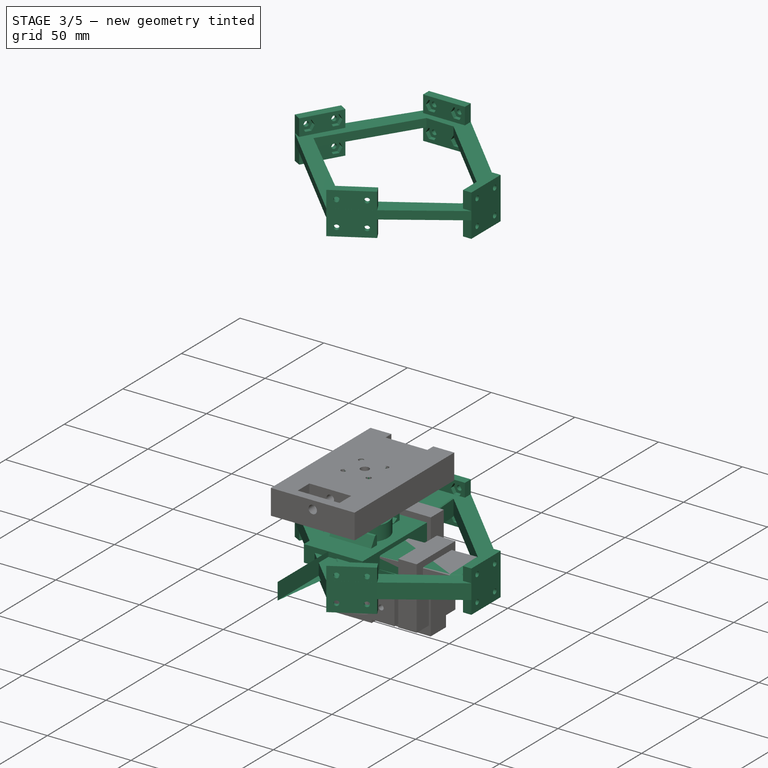
[diagram: stage 3 of 5 — iso view after this stage's code; geometry added in this stage tinted green]
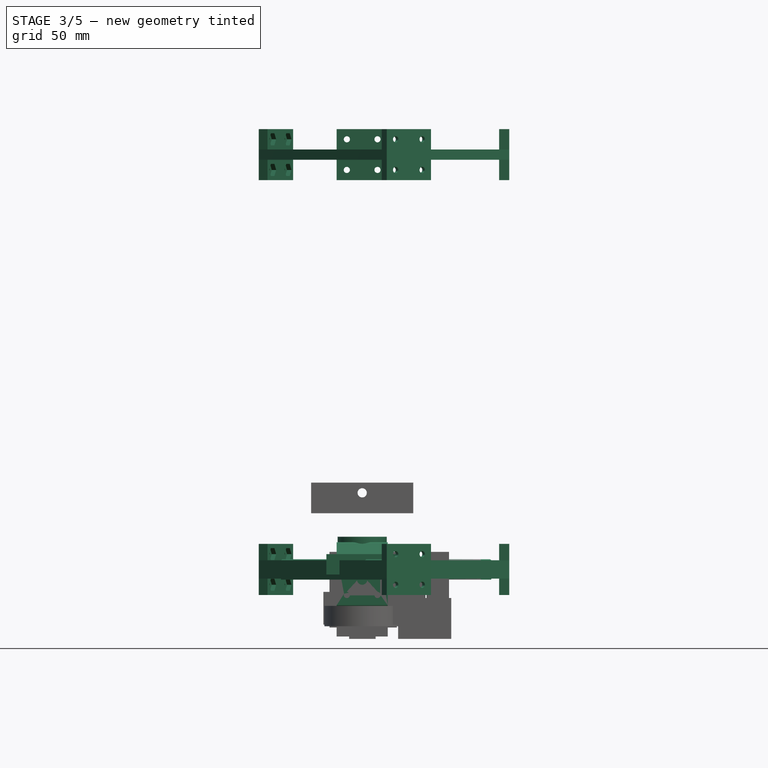
[diagram: stage 3 of 5 — front view after this stage's code; geometry added in this stage tinted green]
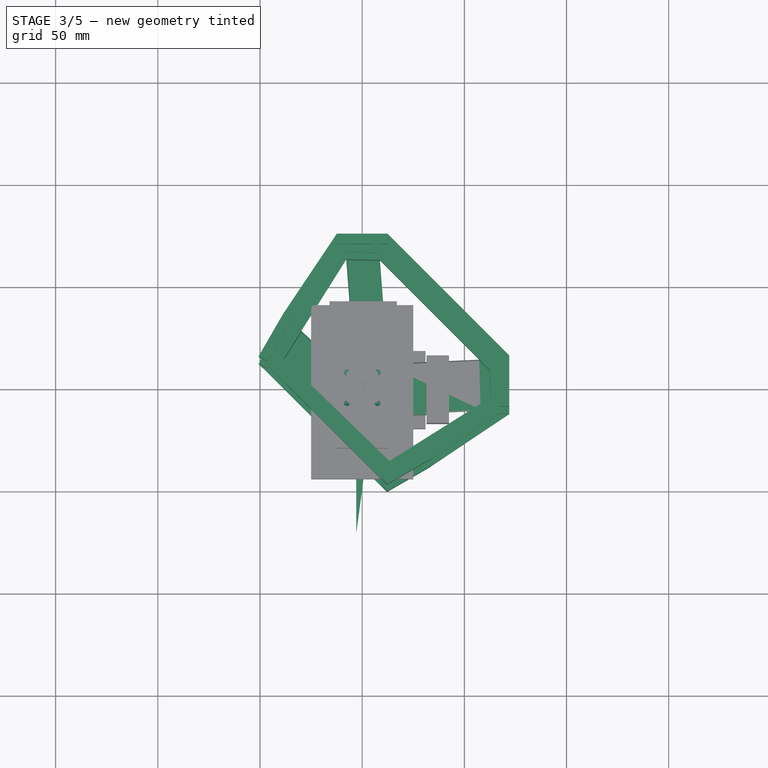
[diagram: stage 3 of 5 — top view after this stage's code; geometry added in this stage tinted green]
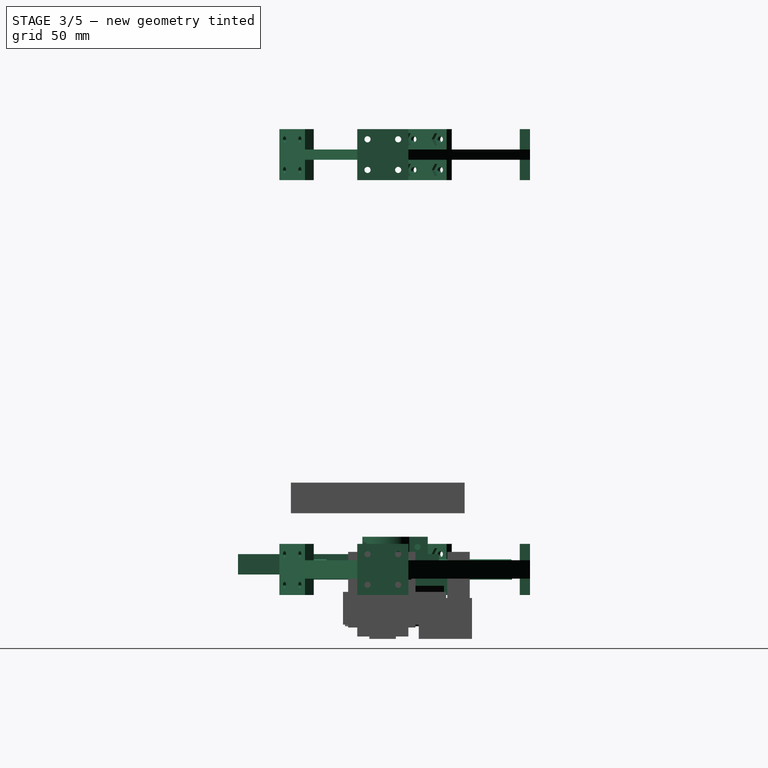
[diagram: stage 3 of 5 — right view after this stage's code; geometry added in this stage tinted green]
FEATURE [Part::Extrusion] Extrude119
  Base = -> Rectangle032
  Dir = (0,0,1)
  DirMode = 2
  FaceMakerClass = Part::FaceMakerBullseye
  LengthFwd = 10
  LengthRev = 0
  Solid = true
  Symmetric = false
FEATURE [Part::Extrusion] Extrude120
  Base = -> Circle020
  Dir = (0,0,1)
  DirMode = 2
  FaceMakerClass = Part::FaceMakerBullseye
  LengthFwd = 10
  LengthRev = 0
  Solid = true
  Symmetric = false
FEATURE [Part::Part2DObjectPython] Polygon055  label="nut_insert026"  # Draft 2D object (typed FeaturePython)
  ChamferSize = 0
  DrawMode = 0
  FacesNumber = 6
  FilletRadius = 0
  MakeFace = false
  Placement = pos=(5,20,0) rot=(0,0,1;0rad)
  Radius = 3.41
FEATURE [Part::Extrusion] Extrude121
  Base = -> Polygon055
  Dir = (0,0,1)
  DirMode = 2
  FaceMakerClass = Part::FaceMakerBullseye
  LengthFwd = 2.5
  LengthRev = 0
  Placement = pos=(5,-5,1e-15) rot=(0,-1,0;1.5708rad)
  Solid = true
  Symmetric = false
FEATURE [Part::Part2DObjectPython] Polygon056  label="screwhole029"  # Draft 2D object (typed FeaturePython)
  ChamferSize = 0
  DrawMode = 0
  FacesNumber = 60
  FilletRadius = 0
  MakeFace = false
  Placement = pos=(5,20,0) rot=(0,0,1;0rad)
  Radius = 1.5
FEATURE [Part::Extrusion] Extrude122
  Base = -> Polygon056
  Dir = (0,0,1)
  DirMode = 2
  FaceMakerClass = Part::FaceMakerBullseye
  LengthFwd = 4
  LengthRev = 0
  Placement = pos=(5,-5,1e-15) rot=(0,-1,0;1.5708rad)
  Solid = true
  Symmetric = false
FEATURE [Part::Extrusion] Extrude123
  Base = -> Polygon054
  Dir = (0,0,1)
  DirMode = 2
  FaceMakerClass = Part::FaceMakerBullseye
  LengthFwd = 4
  LengthRev = 0
  Placement = pos=(-1,-5,2e-15) rot=(0,-1,0;1.5708rad)
  Solid = true
  Symmetric = false
FEATURE [Part::MultiFuse] Fusion003039
  Shapes = -> [Extrude123,Extrude122,Extrude121]
FEATURE [Part::Part2DObjectPython] Polygon057  label="screwhole030"  # Draft 2D object (typed FeaturePython)
  ChamferSize = 0
  DrawMode = 0
  FacesNumber = 60
  FilletRadius = 0
  MakeFace = false
  Placement = pos=(20,5,0) rot=(0,0,1;0rad)
  Radius = 1.5
FEATURE [Part::Part2DObjectPython] Circle021  label="Circle022"  # Draft 2D object (typed FeaturePython)
  FirstAngle = 0
  LastAngle = 0
  MakeFace = false
  Placement = pos=(12.5,12.5,0) rot=(0,0,1;0rad)
  Radius = 2.5
FEATURE [Part::Part2DObjectPython] Polygon058  label="screwhole031"  # Draft 2D object (typed FeaturePython)
  ChamferSize = 0
  DrawMode = 0
  FacesNumber = 60
  FilletRadius = 0
  MakeFace = false
  Placement = pos=(5,20,0) rot=(0,0,1;0rad)
  Radius = 1.5
FEATURE [Part::Part2DObjectPython] Polygon059  label="screwhole032"  # Draft 2D object (typed FeaturePython)
  ChamferSize = 0
  DrawMode = 0
  FacesNumber = 60
  FilletRadius = 0
  MakeFace = false
  Placement = pos=(5,5,0) rot=(0,0,1;0rad)
  Radius = 1.5
FEATURE [Part::Part2DObjectPython] Polygon060  label="screwhole033"  # Draft 2D object (typed FeaturePython)
  ChamferSize = 0
  DrawMode = 0
  FacesNumber = 60
  FilletRadius = 0
  MakeFace = false
  Placement = pos=(20,20,0) rot=(0,0,1;0rad)
  Radius = 1.5
FEATURE [Part::Part2DObjectPython] Rectangle033  # Draft 2D object (typed FeaturePython)
  ChamferSize = 0
  Columns = 1
  FilletRadius = 0
  Height = 25
  Length = 25
  MakeFace = false
  Rows = 1
FEATURE [Part::Extrusion] Extrude124
  Base = -> Polygon057
  Dir = (0,0,1)
  DirMode = 2
  FaceMakerClass = Part::FaceMakerBullseye
  LengthFwd = 5
  LengthRev = 0
  Solid = true
  Symmetric = false
FEATURE [Part::Extrusion] Extrude125
  Base = -> Polygon058
  Dir = (0,0,1)
  DirMode = 2
  FaceMakerClass = Part::FaceMakerBullseye
  LengthFwd = 5
  LengthRev = 0
  Solid = true
  Symmetric = false
FEATURE [Part::Extrusion] Extrude126
  Base = -> Polygon059
  Dir = (0,0,1)
  DirMode = 2
  FaceMakerClass = Part::FaceMakerBullseye
  LengthFwd = 5
  LengthRev = 0
  Solid = true
  Symmetric = false
FEATURE [Part::Extrusion] Extrude127
  Base = -> Polygon060
  Dir = (0,0,1)
  DirMode = 2
  FaceMakerClass = Part::FaceMakerBullseye
  LengthFwd = 5
  LengthRev = 0
  Solid = true
  Symmetric = false
FEATURE [Part::Extrusion] Extrude128  label="base005"
  Base = -> Rectangle033
  Dir = (0,0,1)
  DirMode = 2
  FaceMakerClass = Part::FaceMakerBullseye
  LengthFwd = 5
  LengthRev = 0
  Solid = true
  Symmetric = false
FEATURE [Part::Extrusion] Extrude129
  Base = -> Circle021
  Dir = (0,0,1)
  DirMode = 2
  FaceMakerClass = Part::FaceMakerBullseye
  LengthFwd = 2.9
  LengthRev = 0
  Placement = pos=(0,0,2.1) rot=(0,0,1;0rad)
  Solid = true
  Symmetric = false
FEATURE [Part::MultiFuse] Fusion003040  label="holes005"
  Shapes = -> [Extrude127,Extrude124,Extrude129,Extrude125,Extrude126]
FEATURE [Part::Cut] Cut004003002006003006006  label="base_with_holes006"
  Base = -> Extrude128
  Placement = pos=(-12.5,-8,-15) rot=(1,0,0;1.5708rad)
  Tool = -> Fusion003040
FEATURE [Sketcher::SketchObject] Sketch  label="dowel_placement"
  sketch-geometry (11):
    g0: Circle CenterX=87 CenterY=0 CenterZ=0 NormalX=0 NormalY=0 NormalZ=1 AngleXU=0 Radius=7.8
    g1: Circle CenterX=29.3579 CenterY=-57.6421 CenterZ=0 NormalX=0 NormalY=0 NormalZ=1 AngleXU=0 Radius=7.8
    g2: Circle CenterX=-57.6421 CenterY=29.3579 CenterZ=0 NormalX=0 NormalY=0 NormalZ=1 AngleXU=0 Radius=7.8
    g3: Circle CenterX=0 CenterY=87 CenterZ=0 NormalX=0 NormalY=0 NormalZ=1 AngleXU=0 Radius=7.8
    g4: LineSegment [constr] StartX=87 StartY=0 StartZ=0 EndX=0 EndY=0 EndZ=0
    g5: LineSegment [constr] StartX=0 StartY=0 StartZ=0 EndX=0 EndY=87 EndZ=0
    g6: LineSegment [constr] StartX=0 StartY=87 StartZ=0 EndX=-57.6421 EndY=29.3579 EndZ=0
    g7: LineSegment [constr] StartX=-57.6421 StartY=29.3579 StartZ=0 EndX=29.3579 EndY=-57.6421 EndZ=0
    g8: LineSegment [constr] StartX=0 StartY=87 StartZ=0 EndX=87 EndY=0 EndZ=0
    g9: LineSegment [constr] StartX=87 StartY=0 StartZ=0 EndX=29.3579 EndY=-57.6421 EndZ=0
    g10: LineSegment [constr] StartX=0 StartY=0 StartZ=0 EndX=-14.1421 EndY=-14.1421 EndZ=0
  constraints (27):
    c: Coincident(g4,g0)
    c: Coincident(g4,g-1)
    c: Coincident(g5,g3)
    c: Equal(g5,g4)
    c: Coincident(g5,g-1)
    c: Diameter(g3) = 15.6  'rod diameter'
    c: Equal(g3,g0)
    c: Equal(g3,g1)
    c: Equal(g3,g2)
    c: Vertical(g5)
    c: Distance(g5) = 87
    c: Perpendicular(g4,g5)
    c: Coincident(g6,g3)
    c: Coincident(g6,g2)
    c: Coincident(g7,g2)
    c: Coincident(g8,g3)
    c: Coincident(g8,g0)
    c: Coincident(g9,g0)
    c: Coincident(g9,g1)
    c: Coincident(g1,g7)
    c: Equal(g8,g7)
    c: Equal(g6,g9)
    c: Perpendicular(g7,g6)
    c: PointOnObject(g10,g7)
    c: Coincident(g10,g-1)
    c: Perpendicular(g7,g10)
    c: Distance(g10) = 20
FEATURE [Part::Extrusion] Extrude132  label="Dowels"
  Base = -> Sketch
  Dir = (0,0,1)
  DirMode = 2
  FaceMakerClass = Part::FaceMakerBullseye
  LengthFwd = 304.8
  LengthRev = 0
  Placement = pos=(0,0,-76.2) rot=(0,0,1;0rad)
  Solid = true
  Symmetric = false
FEATURE [Sketcher::SketchObject] Sketch001  label="candidate slide holder?"
  MapMode = 2
  Support = -> [Sketch]
  sketch-geometry (19):
    g0: LineSegment StartX=10.6201 StartY=-38.5092 StartZ=0 EndX=-39.0882 EndY=18.6497 EndZ=0
    g1: LineSegment StartX=-39.0882 StartY=18.6497 StartZ=0 EndX=-19.6203 EndY=35.58 EndZ=0
    g2: LineSegment StartX=-19.6203 StartY=35.58 StartZ=0 EndX=30.0881 EndY=-21.5789 EndZ=0
    g3: LineSegment StartX=30.0881 StartY=-21.5789 StartZ=0 EndX=10.6201 EndY=-38.5092 EndZ=0
    g4: LineSegment StartX=10.3251 StartY=-42.7416 StartZ=0 EndX=-43.3206 EndY=18.9447 EndZ=0
    g5: LineSegment StartX=-43.3206 StartY=18.9447 StartZ=0 EndX=-19.3252 EndY=39.8124 EndZ=0
    g6: LineSegment StartX=-19.3252 StartY=39.8124 StartZ=0 EndX=34.3205 EndY=-21.8739 EndZ=0
    g7: LineSegment StartX=34.3205 StartY=-21.8739 StartZ=0 EndX=10.3251 EndY=-42.7416 EndZ=0
    g8: LineSegment [constr] StartX=-39.0882 StartY=18.6497 StartZ=0 EndX=-43.3206 EndY=18.9447 EndZ=0
    g9: LineSegment [constr] StartX=-19.3252 StartY=39.8124 StartZ=0 EndX=-19.6203 EndY=35.58 EndZ=0
    g10: LineSegment [constr] StartX=10.3251 StartY=-42.7416 StartZ=0 EndX=10.6201 EndY=-38.5092 EndZ=0
    g11: LineSegment [constr] StartX=34.3205 StartY=-21.8739 StartZ=0 EndX=30.0881 EndY=-21.5789 EndZ=0
    g12: LineSegment [constr] StartX=30.0881 StartY=-21.5789 StartZ=0 EndX=5.23393 EndY=7.00059 EndZ=0
    g13: LineSegment [constr] StartX=34.3205 StartY=-21.8739 StartZ=0 EndX=7.49765 EndY=8.96924 EndZ=0
    g14: LineSegment [constr] StartX=7.49765 StartY=8.96924 StartZ=0 EndX=5.23393 EndY=7.00059 EndZ=0
    g15: LineSegment [constr] StartX=7.49765 StartY=8.96924 StartZ=0 EndX=-19.3252 EndY=39.8124 EndZ=0
    g16: LineSegment [constr] StartX=-19.6203 StartY=35.58 StartZ=0 EndX=5.23393 EndY=7.00059 EndZ=0
    g17: LineSegment [constr] StartX=30.0881 StartY=-21.5789 StartZ=0 EndX=32.0568 EndY=-23.8426 EndZ=0
    g18: LineSegment [constr] StartX=32.0568 StartY=-23.8426 StartZ=0 EndX=34.3205 EndY=-21.8739 EndZ=0
  constraints (45):
    c: Coincident(g0,g1)
    c: Coincident(g1,g2)
    c: Coincident(g2,g3)
    c: Coincident(g3,g0)
    c: Parallel(g2,g0)
    c: Parallel(g1,g3)
    c: Perpendicular(g1,g0)
    c: Coincident(g4,g5)
    c: Coincident(g5,g6)
    c: Coincident(g6,g7)
    c: Coincident(g7,g4)
    c: Coincident(g8,g0)
    c: Coincident(g8,g4)
    c: Coincident(g9,g5)
    c: Coincident(g9,g1)
    c: Coincident(g10,g0)
    c: Coincident(g10,g4)
    c: Coincident(g11,g6)
    c: Coincident(g11,g2)
    c: Equal(g9,g8)
    c: Equal(g8,g10)
    c: Equal(g10,g11)
    c: Parallel(g4,g0)
    c: Parallel(g5,g1)
    c: Parallel(g7,g3)
    c: Distance(g1) = 25.8
    c: Distance(g0) = 75.75
    c: Coincident(g12,g2)
    c: Coincident(g13,g6)
    c: Coincident(g14,g13)
    c: Coincident(g14,g12)
    c: Distance(g14) = 3
    c: Coincident(g15,g13)
    c: Coincident(g15,g5)
    c: Coincident(g16,g1)
    c: Coincident(g16,g12)
    c: Parallel(g16,g15)
    c: Parallel(g15,g13)
    c: Coincident(g17,g2)
    c: Coincident(g18,g17)
    c: Coincident(g18,g6)
    c: Perpendicular(g18,g17)
    c: Distance(g17) = 3
    c: Parallel(g18,g7)
    c: Symmetric(g6,g5,g14)
FEATURE [Sketcher::SketchObject] Sketch002
  MapMode = 2
  Support = -> [Sketch001]
  sketch-geometry (25):
    g0: LineSegment StartX=-11.9984 StartY=-12.9947 StartZ=0 EndX=36.9883 EndY=-12.9947 EndZ=0
    g1: LineSegment StartX=36.9883 StartY=-12.9947 StartZ=0 EndX=36.9883 EndY=12.0053 EndZ=0
    g2: LineSegment StartX=36.9883 StartY=12.0053 StartZ=0 EndX=13.0016 EndY=12.0053 EndZ=0
    g3: LineSegment StartX=13.0016 StartY=12.0053 StartZ=0 EndX=13.0016 EndY=36.9672 EndZ=0
    g4: LineSegment StartX=13.0016 StartY=36.9672 StartZ=0 EndX=-11.9984 EndY=36.9672 EndZ=0
    g5: LineSegment StartX=-11.9984 StartY=36.9672 StartZ=0 EndX=-11.9984 EndY=-12.9947 EndZ=0
    g6: Circle CenterX=0 CenterY=0 CenterZ=0 NormalX=0 NormalY=0 NormalZ=1 AngleXU=0 Radius=5
    g7: LineSegment StartX=-6.99841 StartY=31.9672 StartZ=0 EndX=8.00159 EndY=31.9672 EndZ=0
    g8: LineSegment StartX=8.00159 StartY=31.9672 StartZ=0 EndX=8.00159 EndY=7.00527 EndZ=0
    g9: LineSegment StartX=8.00159 StartY=7.00527 StartZ=0 EndX=31.9883 EndY=7.00527 EndZ=0
    g10: LineSegment StartX=31.9883 StartY=7.00527 StartZ=0 EndX=31.9883 EndY=-7.99473 EndZ=0
    g11: LineSegment StartX=31.9883 StartY=-7.99473 StartZ=0 EndX=-6.99841 EndY=-7.99473 EndZ=0
    g12: LineSegment StartX=-6.99841 StartY=-7.99473 StartZ=0 EndX=-6.99841 EndY=31.9672 EndZ=0
    g13: LineSegment [constr] StartX=8.00159 StartY=31.9672 StartZ=0 EndX=13.0016 EndY=36.9672 EndZ=0
    g14: LineSegment [constr] StartX=-11.9984 StartY=36.9672 StartZ=0 EndX=-6.99841 EndY=31.9672 EndZ=0
    g15: LineSegment [constr] StartX=-6.99841 StartY=-7.99473 StartZ=0 EndX=-11.9984 EndY=-12.9947 EndZ=0
    g16: LineSegment [constr] StartX=31.9883 StartY=-7.99473 StartZ=0 EndX=36.9883 EndY=-12.9947 EndZ=0
    g17: LineSegment [constr] StartX=31.9883 StartY=7.00527 StartZ=0 EndX=36.9883 EndY=12.0053 EndZ=0
    g18: LineSegment [constr] StartX=8.00159 StartY=7.00527 StartZ=0 EndX=13.0016 EndY=12.0053 EndZ=0
    g19: LineSegment [constr] StartX=-11.9984 StartY=11.9862 StartZ=0 EndX=-6.99841 EndY=11.9862 EndZ=0
    g20: LineSegment [constr] StartX=24.995 StartY=12.0053 StartZ=0 EndX=24.995 EndY=7.00527 EndZ=0
    g21: LineSegment [constr] StartX=36.9883 StartY=12.0053 StartZ=0 EndX=24.995 EndY=7.00527 EndZ=0
    g22: LineSegment [constr] StartX=24.995 StartY=7.00527 StartZ=0 EndX=13.0016 EndY=12.0053 EndZ=0
    g23: LineSegment [constr] StartX=-11.9984 StartY=36.9672 StartZ=0 EndX=-6.99841 EndY=11.9862 EndZ=0
    g24: LineSegment [constr] StartX=-6.99841 StartY=11.9862 StartZ=0 EndX=-11.9984 EndY=-12.9947 EndZ=0
  constraints (58):
    c: Coincident(g0,g1)
    c: Coincident(g1,g2)
    c: Coincident(g2,g3)
    c: Coincident(g3,g4)
    c: Coincident(g4,g5)
    c: Coincident(g5,g0)
    c: Parallel(g3,g5)
    c: Parallel(g2,g0)
    c: Perpendicular(g3,g2)
    c: Perpendicular(g1,g2)
    c: Coincident(g6,g-1)
    c: Diameter(g6) = 10
    c: Horizontal(g7)
    c: Coincident(g7,g8)
    c: Vertical(g8)
    c: Coincident(g8,g9)
    c: Coincident(g9,g10)
    c: Vertical(g10)
    c: Coincident(g10,g11)
    c: Horizontal(g11)
    c: Coincident(g11,g12)
    c: Coincident(g12,g7)
    c: Parallel(g2,g9)
    c: Coincident(g13,g7)
    c: Coincident(g13,g3)
    c: Coincident(g14,g4)
    c: Coincident(g14,g7)
    c: Coincident(g15,g11)
    c: Coincident(g15,g0)
    c: Coincident(g16,g0)
    c: Coincident(g17,g9)
    c: Coincident(g17,g1)
    c: Coincident(g18,g8)
    c: Coincident(g18,g2)
    c: Equal(g13,g14)
    c: Equal(g14,g15)
    c: Equal(g15,g18)
    c: Equal(g18,g17)
    c: Equal(g17,g16)
    c: PointOnObject(g19,g5)
    c: PointOnObject(g19,g12)
    c: Perpendicular(g12,g19)
    c: PointOnObject(g20,g9)
    c: PointOnObject(g20,g2)
    c: Perpendicular(g2,g20)
    c: Equal(g20,g19)
    c: Coincident(g10,g16)
    c: Coincident(g21,g1)
    c: Coincident(g21,g20)
    c: Coincident(g22,g20)
    c: Coincident(g22,g2)
    c: Equal(g21,g22)
    c: Coincident(g23,g4)
    c: Coincident(g23,g19)
    c: Coincident(g24,g19)
    c: Coincident(g24,g0)
    c: Equal(g24,g23)
    c: Distance(g19) = 5
FEATURE [Part::Extrusion] Extrude137
  Base = -> Sketch002
  Dir = (0,0,1)
  DirMode = 2
  FaceMakerClass = Part::FaceMakerBullseye
  LengthFwd = -10
  LengthRev = 0
  Solid = true
  Symmetric = false
FEATURE [Sketcher::SketchObject] Sketch009
  ExternalGeometry = -> [Extrude132]
  sketch-geometry (25):
    g0: LineSegment StartX=-17.5 StartY=-27.5 StartZ=0 EndX=17.5 EndY=-27.5 EndZ=0
    g1: LineSegment StartX=17.5 StartY=-27.5 StartZ=0 EndX=17.5 EndY=27.5 EndZ=0
    g2: LineSegment StartX=17.5 StartY=27.5 StartZ=0 EndX=-17.5 EndY=27.5 EndZ=0
    g3: LineSegment StartX=-17.5 StartY=27.5 StartZ=0 EndX=-17.5 EndY=-27.5 EndZ=0
    g4: LineSegment StartX=-5 StartY=10 StartZ=0 EndX=5 EndY=10 EndZ=0
    g5: LineSegment StartX=5 StartY=10 StartZ=0 EndX=5 EndY=-10 EndZ=0
    g6: LineSegment StartX=5 StartY=-10 StartZ=0 EndX=-5 EndY=-10 EndZ=0
    g7: LineSegment StartX=-5 StartY=-10 StartZ=0 EndX=-5 EndY=10 EndZ=0
    g8: LineSegment [constr] StartX=-17.5 StartY=27.5 StartZ=0 EndX=-5 EndY=10 EndZ=0
    g9: LineSegment [constr] StartX=5 StartY=10 StartZ=0 EndX=17.5 EndY=27.5 EndZ=0
    g10: LineSegment [constr] StartX=5 StartY=-10 StartZ=0 EndX=17.5 EndY=-27.5 EndZ=0
    g11: LineSegment [constr] StartX=-5 StartY=-10 StartZ=0 EndX=-17.5 EndY=-27.5 EndZ=0
    g12: Circle CenterX=0 CenterY=0 CenterZ=0 NormalX=0 NormalY=0 NormalZ=1 AngleXU=0 Radius=2.5
    g13: LineSegment [constr] StartX=0 StartY=27.5 StartZ=0 EndX=0 EndY=0 EndZ=0
    g14: LineSegment [constr] StartX=0 StartY=0 StartZ=0 EndX=0 EndY=-27.5 EndZ=0
    g15: LineSegment [constr] StartX=-5 StartY=10 StartZ=0 EndX=0 EndY=0 EndZ=0
    g16: LineSegment [constr] StartX=5 StartY=-10 StartZ=0 EndX=0 EndY=0 EndZ=0
    g17: LineSegment [constr] StartX=-5 StartY=-10 StartZ=0 EndX=0 EndY=0 EndZ=0
    g18: LineSegment [constr] StartX=5 StartY=10 StartZ=0 EndX=0 EndY=0 EndZ=0
    g19: LineSegment StartX=-2.87737 StartY=-27.5 StartZ=0 EndX=2.87737 EndY=-27.5 EndZ=0
    g20: LineSegment StartX=2.87737 StartY=-27.5 StartZ=0 EndX=2.87737 EndY=-70.8694 EndZ=0
    g21: LineSegment StartX=2.87737 StartY=-70.8694 StartZ=0 EndX=-2.87737 EndY=-70.8694 EndZ=0
    g22: LineSegment StartX=-2.87737 StartY=-70.8694 StartZ=0 EndX=-2.87737 EndY=-27.5 EndZ=0
    g23: LineSegment [constr] StartX=-2.87737 StartY=-27.5 StartZ=0 EndX=0 EndY=-27.5 EndZ=0
    g24: LineSegment [constr] StartX=0 StartY=-27.5 StartZ=0 EndX=2.87737 EndY=-27.5 EndZ=0
  constraints (63):
    c: Coincident(g0,g1)
    c: Coincident(g1,g2)
    c: Coincident(g2,g3)
    c: Coincident(g3,g0)
    c: Horizontal(g0)
    c: Horizontal(g2)
    c: Vertical(g1)
    c: Vertical(g3)
    c: Distance(g1) = 55
    c: Distance(g0) = 35
    c: Coincident(g4,g5)
    c: Coincident(g5,g6)
    c: Coincident(g6,g7)
    c: Coincident(g7,g4)
    c: Horizontal(g4)
    c: Vertical(g5)
    c: Distance(g6) = 10
    c: Coincident(g8,g2)
    c: Coincident(g8,g4)
    c: Coincident(g9,g4)
    c: Coincident(g9,g1)
    c: Coincident(g10,g5)
    c: Coincident(g10,g0)
    c: Coincident(g11,g6)
    c: Coincident(g11,g0)
    c: Equal(g8,g9)
    c: Equal(g9,g10)
    c: Equal(g10,g11)
    c: Distance(g5) = 20
    c: PointOnObject(g13,g2)
    c: Coincident(g13,g12)
    c: Coincident(g14,g12)
    c: PointOnObject(g14,g0)
    c: Perpendicular(g2,g13)
    c: Perpendicular(g0,g14)
    c: Coincident(g15,g4)
    c: Coincident(g15,g12)
    c: Coincident(g16,g5)
    c: Coincident(g16,g12)
    c: Coincident(g17,g6)
    c: Coincident(g17,g12)
    c: Coincident(g18,g4)
    c: Coincident(g18,g12)
    c: Equal(g18,g15)
    c: Equal(g15,g16)
    c: Equal(g16,g17)
    c: Diameter(g12) = 5
    c: PointOnObject(g12,g-1)
    c: PointOnObject(g12,g-2)
    c: Coincident(g19,g20)
    c: Coincident(g20,g21)
    c: Coincident(g21,g22)
    c: Coincident(g22,g19)
    c: Horizontal(g19)
    c: Horizontal(g21)
    c: Vertical(g20)
    c: Vertical(g22)
    c: Coincident(g23,g19)
    c: Coincident(g23,g14)
    c: Coincident(g24,g14)
    c: Coincident(g24,g19)
    c: Equal(g24,g23)
    c: PointOnObject(g14,g19)
FEATURE [Part::Extrusion] Extrude158
  Base = -> Sketch009
  Dir = (0,0,1)
  DirMode = 2
  FaceMakerClass = Part::FaceMakerBullseye
  LengthFwd = 10
  LengthRev = 0
  Solid = true
  Symmetric = false
FEATURE [Sketcher::SketchObject] Sketch011  label="rail_outer"
  ExternalGeometry = -> [Extrude159,Screw]
  Placement = pos=(0,0,0) rot=(1,0,0;1.5708rad)
  sketch-geometry (18):
    g0: LineSegment StartX=-25 StartY=30 StartZ=0 EndX=-25 EndY=45 EndZ=0
    g1: LineSegment [constr] StartX=0 StartY=45 StartZ=0 EndX=0 EndY=40 EndZ=0
    g2: LineSegment StartX=-25 StartY=45 StartZ=0 EndX=-12.5 EndY=45 EndZ=0
    g3: LineSegment StartX=-12.5 StartY=45 StartZ=0 EndX=-12.5 EndY=40 EndZ=0
    g4: LineSegment StartX=-12.5 StartY=40 StartZ=0 EndX=-18.75 EndY=40 EndZ=0
    g5: LineSegment [constr] StartX=-12.5 StartY=40 StartZ=0 EndX=0 EndY=40 EndZ=0
    g6: LineSegment [constr] StartX=-25 StartY=40 StartZ=0 EndX=-18.75 EndY=40 EndZ=0
    g7: LineSegment StartX=25 StartY=45 StartZ=0 EndX=12.5 EndY=45 EndZ=0
    g8: LineSegment StartX=12.5 StartY=40 StartZ=0 EndX=18.75 EndY=40 EndZ=0
    g9: LineSegment [constr] StartX=25 StartY=40 StartZ=0 EndX=18.75 EndY=40 EndZ=0
    g10: LineSegment [constr] StartX=0 StartY=40 StartZ=0 EndX=12.5 EndY=40 EndZ=0
    g11: LineSegment StartX=-18.75 StartY=40 StartZ=0 EndX=-18.75 EndY=35 EndZ=0
    g12: LineSegment StartX=-18.75 StartY=35 StartZ=0 EndX=18.75 EndY=35 EndZ=0
    g13: LineSegment StartX=18.75 StartY=35 StartZ=0 EndX=18.75 EndY=40 EndZ=0
    g14: LineSegment [constr] StartX=0 StartY=35 StartZ=0 EndX=0 EndY=30 EndZ=0
    g15: LineSegment StartX=-25 StartY=30 StartZ=0 EndX=25 EndY=30 EndZ=0
    g16: LineSegment StartX=25 StartY=45 StartZ=0 EndX=25 EndY=30 EndZ=0
    g17: LineSegment StartX=12.5 StartY=45 StartZ=0 EndX=12.5 EndY=40 EndZ=0
  constraints (55):
    c: Vertical(g0)
    c: Coincident(g1,g-4)
    c: Vertical(g1)
    c: Distance(g1) = 5
    c: Coincident(g2,g0)
    c: Coincident(g3,g2)
    c: Vertical(g3)
    c: Coincident(g4,g3)
    c: Horizontal(g4)
    c: Coincident(g5,g3)
    c: Coincident(g5,g1)
    c: Horizontal(g5)
    c: Equal(g5,g2)
    c: PointOnObject(g6,g0)
    c: Coincident(g6,g4)
    c: Horizontal(g6)
    c: Equal(g6,g4)
    c: Coincident(g-3,g0)
    c: Horizontal(g8)
    c: Coincident(g9,g8)
    c: Horizontal(g9)
    c: Equal(g9,g8)
    c: Equal(g8,g4)
    c: Equal(g9,g8)
    c: Horizontal(g7)
    c: Coincident(g10,g1)
    c: Equal(g10,g5)
    c: Coincident(g4,g11)
    c: Vertical(g11)
    c: Coincident(g11,g12)
    c: Horizontal(g12)
    c: Coincident(g12,g13)
    c: Coincident(g13,g8)
    c: Vertical(g13)
    c: PointOnObject(g14,g12)
    c: PointOnObject(g14,g-3)
    c: Tangent(g14,g-2)
    c: Equal(g11,g13)
    c: Equal(g13,g14)
    c: Coincident(g15,g0)
    c: Coincident(g16,g7)
    c: Coincident(g16,g15)
    c: PointOnObject(g9,g16)
    c: Coincident(g-3,g15)
    c: Horizontal(g2)
    c: Equal(g2,g7)
    c: Equal(g8,g4)
    c: Equal(g9,g6)
    c: Coincident(g17,g7)
    c: Coincident(g17,g8)
    c: Vertical(g17)
    c: Equal(g17,g3)
    c: Equal(g3,g11)
    c: Equal(g7,g10)
    c: Horizontal(g10)
FEATURE [Sketcher::SketchObject] Sketch012  label="rail_inner"
  ExternalGeometry = -> [Extrude159,Screw]
  Placement = pos=(0,0,0) rot=(1,0,0;1.5708rad)
  sketch-geometry (22):
    g0: LineSegment [constr] StartX=25 StartY=45 StartZ=0 EndX=25 EndY=30 EndZ=0
    g1: LineSegment [constr] StartX=-25 StartY=30 StartZ=0 EndX=-25 EndY=45 EndZ=0
    g2: LineSegment [constr] StartX=-25 StartY=45 StartZ=0 EndX=25 EndY=45 EndZ=0
    g3: LineSegment [constr] StartX=0 StartY=45 StartZ=0 EndX=0 EndY=40 EndZ=0
    g4: LineSegment [constr] StartX=-25 StartY=45 StartZ=0 EndX=-12.5 EndY=45 EndZ=0
    g5: LineSegment StartX=-12.5 StartY=45 StartZ=0 EndX=-12.5 EndY=40 EndZ=0
    g6: LineSegment StartX=-12.5 StartY=40 StartZ=0 EndX=-18.75 EndY=40 EndZ=0
    g7: LineSegment [constr] StartX=-12.5 StartY=40 StartZ=0 EndX=0 EndY=40 EndZ=0
    g8: LineSegment [constr] StartX=-25 StartY=40 StartZ=0 EndX=-18.75 EndY=40 EndZ=0
    g9: LineSegment [constr] StartX=25 StartY=30 StartZ=0 EndX=25 EndY=45 EndZ=0
    g10: LineSegment [constr] StartX=25 StartY=45 StartZ=0 EndX=12.5 EndY=45 EndZ=0
    g11: LineSegment StartX=12.5 StartY=45 StartZ=0 EndX=12.5 EndY=40 EndZ=0
    g12: LineSegment StartX=12.5 StartY=40 StartZ=0 EndX=18.75 EndY=40 EndZ=0
    g13: LineSegment [constr] StartX=25 StartY=40 StartZ=0 EndX=18.75 EndY=40 EndZ=0
    g14: LineSegment [constr] StartX=0 StartY=40 StartZ=0 EndX=12.5 EndY=40 EndZ=0
    g15: LineSegment StartX=-18.75 StartY=40 StartZ=0 EndX=-18.75 EndY=35 EndZ=0
    g16: LineSegment StartX=-18.75 StartY=35 StartZ=0 EndX=18.75 EndY=35 EndZ=0
    g17: LineSegment StartX=18.75 StartY=35 StartZ=0 EndX=18.75 EndY=40 EndZ=0
    g18: LineSegment [constr] StartX=0 StartY=35 StartZ=0 EndX=0 EndY=30 EndZ=0
    g19: LineSegment [constr] StartX=-25 StartY=30 StartZ=0 EndX=25 EndY=30 EndZ=0
    g20: LineSegment StartX=-12.5 StartY=45 StartZ=0 EndX=12.5 EndY=45 EndZ=0
    g21: Circle CenterX=0 CenterY=40 CenterZ=0 NormalX=0 NormalY=0 NormalZ=1 AngleXU=0 Radius=2.25
  constraints (60):
    c: Vertical(g0)
    c: Vertical(g1)
    c: Coincident(g-3,g0)
    c: Coincident(g2,g1)
    c: Coincident(g2,g0)
    c: Horizontal(g2)
    c: PointOnObject(g3,g2)
    c: Coincident(g3,g-4)
    c: Vertical(g3)
    c: Distance(g3) = 5
    c: Coincident(g4,g1)
    c: PointOnObject(g4,g2)
    c: Coincident(g5,g4)
    c: Vertical(g5)
    c: Coincident(g6,g5)
    c: Horizontal(g6)
    c: Coincident(g7,g5)
    c: Coincident(g7,g3)
    c: Horizontal(g7)
    c: Equal(g7,g4)
    c: PointOnObject(g8,g1)
    c: Coincident(g8,g6)
    c: Horizontal(g8)
    c: Equal(g8,g6)
    c: Coincident(g-3,g1)
    c: Vertical(g9)
    c: Coincident(g10,g9)
    c: Coincident(g11,g10)
    c: Vertical(g11)
    c: Coincident(g12,g11)
    c: Horizontal(g12)
    c: Coincident(g13,g12)
    c: Horizontal(g13)
    c: Equal(g13,g12)
    c: Equal(g11,g5)
    c: Equal(g12,g6)
    c: Equal(g13,g12)
    c: Coincident(g9,g0)
    c: Horizontal(g10)
    c: Coincident(g14,g3)
    c: Coincident(g14,g11)
    c: Equal(g14,g7)
    c: Coincident(g6,g15)
    c: Vertical(g15)
    c: Coincident(g15,g16)
    c: Horizontal(g16)
    c: Coincident(g16,g17)
    c: Coincident(g17,g12)
    c: Vertical(g17)
    c: PointOnObject(g18,g16)
    c: PointOnObject(g18,g-3)
    c: Tangent(g18,g-2)
    c: Equal(g15,g17)
    c: Equal(g17,g18)
    c: Coincident(g19,g1)
    c: Coincident(g19,g0)
    c: Coincident(g20,g5)
    c: Coincident(g20,g11)
    c: Coincident(g21,g3)
    c: Diameter(g21) = 4.5
FEATURE [Part::Extrusion] Extrude160
  Base = -> Sketch012
  Dir = (0,-1,1.1e-15)
  DirMode = 2
  FaceMakerClass = Part::FaceMakerBullseye
  LengthFwd = 30
  LengthRev = 30
  Solid = true
  Symmetric = false
FEATURE [Sketcher::SketchObject] Sketch014
  ExternalGeometry = -> [Extrude160]
  sketch-geometry (19):
    g0: Circle CenterX=6.25 CenterY=6.25 CenterZ=0 NormalX=0 NormalY=0 NormalZ=1 AngleXU=0 Radius=1.5
    g1: Circle CenterX=-6.25 CenterY=6.25 CenterZ=0 NormalX=0 NormalY=0 NormalZ=1 AngleXU=0 Radius=1.5
    g2: Circle CenterX=6.25 CenterY=-6.25 CenterZ=0 NormalX=0 NormalY=0 NormalZ=1 AngleXU=0 Radius=1.5
    g3: Circle CenterX=-6.25 CenterY=-6.25 CenterZ=0 NormalX=0 NormalY=0 NormalZ=1 AngleXU=0 Radius=1.5
    g4: LineSegment [constr] StartX=6e-15 StartY=30 StartZ=0 EndX=6e-15 EndY=-30 EndZ=0
    g5: LineSegment [constr] StartX=-12.5 StartY=30 StartZ=0 EndX=5.3e-15 EndY=4.62e-14 EndZ=0
    g6: LineSegment [constr] StartX=5.3e-15 StartY=4.62e-14 StartZ=0 EndX=12.5 EndY=-30 EndZ=0
    g7: LineSegment [constr] StartX=12.5 StartY=30 StartZ=0 EndX=5.3e-15 EndY=4.62e-14 EndZ=0
    g8: LineSegment [constr] StartX=0 StartY=0 StartZ=0 EndX=-12.5 EndY=-30 EndZ=0
    g9: LineSegment [constr] StartX=-6.25 StartY=-6.25 StartZ=0 EndX=6.25 EndY=-6.25 EndZ=0
    g10: LineSegment [constr] StartX=6.25 StartY=-6.25 StartZ=0 EndX=6.25 EndY=6.25 EndZ=0
    g11: LineSegment [constr] StartX=6.25 StartY=6.25 StartZ=0 EndX=-6.25 EndY=6.25 EndZ=0
    g12: LineSegment [constr] StartX=-6.25 StartY=6.25 StartZ=0 EndX=-6.25 EndY=-6.25 EndZ=0
    g13: LineSegment [constr] StartX=-6.25 StartY=-6.25 StartZ=0 EndX=0 EndY=0 EndZ=0
    g14: LineSegment [constr] StartX=0 StartY=0 StartZ=0 EndX=6.25 EndY=-6.25 EndZ=0
    g15: LineSegment [constr] StartX=6.25 StartY=6.25 StartZ=0 EndX=0 EndY=0 EndZ=0
    g16: LineSegment [constr] StartX=0 StartY=0 StartZ=0 EndX=-6.25 EndY=6.25 EndZ=0
    g17: LineSegment [constr] StartX=-6.25 StartY=0 StartZ=0 EndX=-12.5 EndY=0 EndZ=0
    g18: LineSegment [constr] StartX=-6.25 StartY=0 StartZ=0 EndX=0 EndY=0 EndZ=0
  constraints (48):
    c: PointOnObject(g4,g-3)
    c: PointOnObject(g4,g-6)
    c: Vertical(g4)
    c: Coincident(g5,g-4)
    c: Coincident(g6,g5)
    c: Coincident(g6,g-6)
    c: Equal(g6,g5)
    c: PointOnObject(g5,g4)
    c: Coincident(g7,g-5)
    c: Coincident(g7,g5)
    c: Equal(g7,g5)
    c: Coincident(g8,g-1)
    c: Coincident(g8,g-6)
    c: Equal(g8,g6)
    c: Coincident(g9,g10)
    c: Coincident(g10,g11)
    c: Coincident(g11,g12)
    c: Coincident(g12,g9)
    c: Horizontal(g9)
    c: Horizontal(g11)
    c: Vertical(g10)
    c: Coincident(g13,g9)
    c: Coincident(g13,g-1)
    c: Coincident(g14,g-1)
    c: Coincident(g14,g9)
    c: Coincident(g15,g-1)
    c: Coincident(g16,g-1)
    c: Coincident(g16,g11)
    c: Coincident(g10,g15)
    c: Equal(g13,g16)
    c: Equal(g16,g15)
    c: Equal(g15,g14)
    c: Equal(g10,g9)
    c: PointOnObject(g17,g12)
    c: PointOnObject(g17,g-4)
    c: Horizontal(g17)
    c: Coincident(g18,g-1)
    c: Horizontal(g18)
    c: Coincident(g17,g18)
    c: Equal(g18,g17)
    c: Coincident(g1,g11)
    c: Coincident(g10,g0)
    c: Coincident(g9,g2)
    c: Coincident(g9,g3)
    c: Equal(g2,g0)
    c: Equal(g0,g1)
    c: Equal(g1,g3)
    c: Diameter(g0) = 3
FEATURE [Part::Extrusion] Extrude163
  Base = -> Sketch014
  Dir = (0,0,1)
  DirMode = 2
  FaceMakerClass = Part::FaceMakerBullseye
  LengthFwd = 5
  LengthRev = 0
  Placement = pos=(0,0,40) rot=(0,0,1;0rad)
  Solid = true
  Symmetric = false
FEATURE [Part::Cut] Cut004003002006003006014
  Base = -> Extrude160
  Tool = -> Fusion003055
FEATURE [Part::Cut] Cut004003002006003006015
  Base = -> Cut004003002006003006014
  Tool = -> Fusion003056
FEATURE [Part::Cut] Cut004003002006003006016  label="inner_rail_bad_dumb"
  Base = -> Cut004003002006003006015
  Tool = -> Fusion003057
FEATURE [Part::MultiFuse] Fusion003062  label="rail"
  Shapes = -> [Screw,Extrude162,Cut004003002006003006018,Cut004003002006003006019]
FEATURE [Part::MultiFuse] Fusion003064  label="xy_movement"
  Placement = pos=(0,0,10) rot=(0,0,1;0rad)
  Shapes = -> [Fusion003062,Fusion003063]
FEATURE [App::DocumentObjectGroup] Group019  label="full_frame"
  Group = -> [Fusion003074,Fusion003075]
FEATURE [Part::FeaturePython] Screw007  label="M3x10-Screw006"  # Fasteners workbench fastener (typed FeaturePython)
  Placement = pos=(-7.5,-8,-10) rot=(-1,0,0;1.5708rad)
  diameter = 4
  invert = false
  length = 10
  lengthCustom = 10
  matchOuter = false
  offset = 0
  thread = false
  type = 32
FEATURE [Part::FeaturePython] Screw008  label="M3x10-Screw007"  # Fasteners workbench fastener (typed FeaturePython)
  Placement = pos=(7.5,-8,-10) rot=(-1,0,0;1.5708rad)
  diameter = 4
  invert = false
  length = 10
  lengthCustom = 10
  matchOuter = false
  offset = 0
  thread = false
  type = 32
FEATURE [Part::FeaturePython] Screw009  label="M3x10-Screw008"  # Fasteners workbench fastener (typed FeaturePython)
  Placement = pos=(-7.5,-8,5) rot=(-1,0,0;1.5708rad)
  diameter = 4
  invert = false
  length = 10
  lengthCustom = 10
  matchOuter = false
  offset = 0
  thread = false
  type = 32
FEATURE [Part::FeaturePython] Screw010  label="M3x10-Screw009"  # Fasteners workbench fastener (typed FeaturePython)
  Placement = pos=(7.5,-8,5) rot=(-1,0,0;1.5708rad)
  diameter = 4
  invert = false
  length = 10
  lengthCustom = 10
  matchOuter = false
  offset = 0
  thread = false
  type = 32
FEATURE [Part::Part2DObjectPython] Polygon069  label="screwhole042"  # Draft 2D object (typed FeaturePython)
  ChamferSize = 0
  DrawMode = 0
  FacesNumber = 60
  FilletRadius = 0
  MakeFace = false
  Placement = pos=(20,5,0) rot=(0,0,1;0rad)
  Radius = 1.5
FEATURE [Part::Part2DObjectPython] Circle024  label="Circle025"  # Draft 2D object (typed FeaturePython)
  FirstAngle = 0
  LastAngle = 0
  MakeFace = false
  Placement = pos=(12.5,12.5,0) rot=(0,0,1;0rad)
  Radius = 2.5
FEATURE [Part::Part2DObjectPython] Polygon070  label="screwhole043"  # Draft 2D object (typed FeaturePython)
  ChamferSize = 0
  DrawMode = 0
  FacesNumber = 60
  FilletRadius = 0
  MakeFace = false
  Placement = pos=(5,20,0) rot=(0,0,1;0rad)
  Radius = 1.5
FEATURE [Part::Part2DObjectPython] Polygon071  label="screwhole044"  # Draft 2D object (typed FeaturePython)
  ChamferSize = 0
  DrawMode = 0
  FacesNumber = 60
  FilletRadius = 0
  MakeFace = false
  Placement = pos=(5,5,0) rot=(0,0,1;0rad)
  Radius = 1.5
FEATURE [Part::Part2DObjectPython] Polygon072  label="screwhole045"  # Draft 2D object (typed FeaturePython)
  ChamferSize = 0
  DrawMode = 0
  FacesNumber = 60
  FilletRadius = 0
  MakeFace = false
  Placement = pos=(20,20,0) rot=(0,0,1;0rad)
  Radius = 1.5
FEATURE [Part::Part2DObjectPython] Rectangle036  # Draft 2D object (typed FeaturePython)
  ChamferSize = 0
  Columns = 1
  FilletRadius = 0
  Height = 25
  Length = 25
  MakeFace = false
  Rows = 1
FEATURE [Part::Part2DObjectPython] Polygon073  label="nut_insert027"  # Draft 2D object (typed FeaturePython)
  ChamferSize = 0
  DrawMode = 0
  FacesNumber = 6
  FilletRadius = 0
  MakeFace = false
  Placement = pos=(5,20,0) rot=(0,0,1;0rad)
  Radius = 3.41
FEATURE [Part::Part2DObjectPython] Polygon074  label="nut_insert028"  # Draft 2D object (typed FeaturePython)
  ChamferSize = 0
  DrawMode = 0
  FacesNumber = 6
  FilletRadius = 0
  MakeFace = false
  Placement = pos=(5,5,0) rot=(0,0,1;0rad)
  Radius = 3.41
FEATURE [Part::Part2DObjectPython] Polygon075  label="nut_insert029"  # Draft 2D object (typed FeaturePython)
  ChamferSize = 0
  DrawMode = 0
  FacesNumber = 6
  FilletRadius = 0
  MakeFace = false
  Placement = pos=(20,20,0) rot=(0,0,1;0rad)
  Radius = 3.41
FEATURE [Part::Part2DObjectPython] Polygon076  label="nut_insert030"  # Draft 2D object (typed FeaturePython)
  ChamferSize = 0
  DrawMode = 0
  FacesNumber = 6
  FilletRadius = 0
  MakeFace = false
  Placement = pos=(20,5,0) rot=(0,0,1;0rad)
  Radius = 3.41
FEATURE [Part::Extrusion] Extrude171
  Base = -> Polygon069
  Dir = (0,0,1)
  DirMode = 2
  FaceMakerClass = Part::FaceMakerBullseye
  LengthFwd = 5
  LengthRev = 0
  Solid = true
  Symmetric = false
FEATURE [Part::Extrusion] Extrude172
  Base = -> Polygon070
  Dir = (0,0,1)
  DirMode = 2
  FaceMakerClass = Part::FaceMakerBullseye
  LengthFwd = 5
  LengthRev = 0
  Solid = true
  Symmetric = false
FEATURE [Part::Extrusion] Extrude173
  Base = -> Polygon071
  Dir = (0,0,1)
  DirMode = 2
  FaceMakerClass = Part::FaceMakerBullseye
  LengthFwd = 5
  LengthRev = 0
  Solid = true
  Symmetric = false
FEATURE [Part::Extrusion] Extrude174
  Base = -> Polygon072
  Dir = (0,0,1)
  DirMode = 2
  FaceMakerClass = Part::FaceMakerBullseye
  LengthFwd = 5
  LengthRev = 0
  Solid = true
  Symmetric = false
FEATURE [Part::Extrusion] Extrude175  label="base008"
  Base = -> Rectangle036
  Dir = (0,0,1)
  DirMode = 2
  FaceMakerClass = Part::FaceMakerBullseye
  LengthFwd = 5
  LengthRev = 0
  Solid = true
  Symmetric = false
FEATURE [Part::Extrusion] Extrude176
  Base = -> Polygon073
  Dir = (0,0,1)
  DirMode = 2
  FaceMakerClass = Part::FaceMakerBullseye
  LengthFwd = 2.5
  LengthRev = 0
  Solid = true
  Symmetric = false
FEATURE [Part::Extrusion] Extrude177
  Base = -> Polygon074
  Dir = (0,0,1)
  DirMode = 2
  FaceMakerClass = Part::FaceMakerBullseye
  LengthFwd = 2.5
  LengthRev = 0
  Solid = true
  Symmetric = false
FEATURE [Part::Extrusion] Extrude178
  Base = -> Polygon075
  Dir = (0,0,1)
  DirMode = 2
  FaceMakerClass = Part::FaceMakerBullseye
  LengthFwd = 2.5
  LengthRev = 0
  Solid = true
  Symmetric = false
FEATURE [Part::Extrusion] Extrude179
  Base = -> Polygon076
  Dir = (0,0,1)
  DirMode = 2
  FaceMakerClass = Part::FaceMakerBullseye
  LengthFwd = 2.5
  LengthRev = 0
  Solid = true
  Symmetric = false
FEATURE [Part::MultiFuse] Fusion003077  label="nut inserts008"
  Shapes = -> [Extrude176,Extrude179,Extrude178,Extrude177]
FEATURE [Part::Extrusion] Extrude180
  Base = -> Circle024
  Dir = (0,0,1)
  DirMode = 2
  FaceMakerClass = Part::FaceMakerBullseye
  LengthFwd = 2.9
  LengthRev = 0
  Placement = pos=(0,0,2.1) rot=(0,0,1;0rad)
  Solid = true
  Symmetric = false
FEATURE [Part::MultiFuse] Fusion003076  label="holes009"
  Shapes = -> [Extrude174,Extrude171,Extrude180,Extrude172,Extrude173]
FEATURE [Part::Cut] Cut004003002006003006024  label="connector_without_nut_inserts003"
  Base = -> Extrude175
  Tool = -> Fusion003076
FEATURE [Part::Part2DObjectPython] Rectangle037  # Draft 2D object (typed FeaturePython)
  ChamferSize = 0
  Columns = 1
  FilletRadius = 0
  Height = 13
  Length = 2
  MakeFace = false
  Placement = pos=(-1,7,0) rot=(0,0,1;0rad)
  Rows = 1
FEATURE [Part::Part2DObjectPython] Circle025  label="Circle027"  # Draft 2D object (typed FeaturePython)
  FirstAngle = 0
  LastAngle = 0
  MakeFace = false
  Radius = 8
FEATURE [Part::Part2DObjectPython] Rectangle038  # Draft 2D object (typed FeaturePython)
  ChamferSize = 0
  Columns = 1
  FilletRadius = 0
  Height = 12
  Length = 4
  MakeFace = false
  Placement = pos=(-5,8,0) rot=(0,0,1;0rad)
  Rows = 1
FEATURE [Part::Part2DObjectPython] Rectangle039  # Draft 2D object (typed FeaturePython)
  ChamferSize = 0
  Columns = 1
  FilletRadius = 0
  Height = 12
  Length = 4
  MakeFace = false
  Placement = pos=(1,8,0) rot=(0,0,1;0rad)
  Rows = 1
FEATURE [Part::Part2DObjectPython] Circle026  # Draft 2D object (typed FeaturePython)
  FirstAngle = 0
  LastAngle = 0
  MakeFace = false
  Radius = 12
FEATURE [Part::Extrusion] Extrude181
  Base = -> Rectangle037
  Dir = (0,0,1)
  DirMode = 2
  FaceMakerClass = Part::FaceMakerBullseye
  LengthFwd = 10
  LengthRev = 0
  Solid = true
  Symmetric = false
FEATURE [Part::Extrusion] Extrude182
  Base = -> Circle025
  Dir = (0,0,1)
  DirMode = 2
  FaceMakerClass = Part::FaceMakerBullseye
  LengthFwd = 10
  LengthRev = 0
  Solid = true
  Symmetric = false
FEATURE [Part::Extrusion] Extrude183
  Base = -> Rectangle038
  Dir = (0,0,1)
  DirMode = 2
  FaceMakerClass = Part::FaceMakerBullseye
  LengthFwd = 10
  LengthRev = 0
  Solid = true
  Symmetric = false
FEATURE [Part::Extrusion] Extrude184
  Base = -> Rectangle039
  Dir = (0,0,1)
  DirMode = 2
  FaceMakerClass = Part::FaceMakerBullseye
  LengthFwd = 10
  LengthRev = 0
  Solid = true
  Symmetric = false
FEATURE [Part::Extrusion] Extrude185
  Base = -> Circle026
  Dir = (0,0,1)
  DirMode = 2
  FaceMakerClass = Part::FaceMakerBullseye
  LengthFwd = 10
  LengthRev = 0
  Solid = true
  Symmetric = false
FEATURE [Part::MultiFuse] Fusion003078
  Shapes = -> [Extrude181,Extrude182]
FEATURE [Part::MultiFuse] Fusion003079
  Shapes = -> [Extrude183,Extrude184,Extrude185]
FEATURE [Part::Cut] Cut004003002006003006025
  Base = -> Fusion003079
  Tool = -> Fusion003078
FEATURE [Part::Part2DObjectPython] Polygon077  label="nut_insert031"  # Draft 2D object (typed FeaturePython)
  ChamferSize = 0
  DrawMode = 0
  FacesNumber = 6
  FilletRadius = 0
  MakeFace = false
  Placement = pos=(5,20,0) rot=(0,0,1;0rad)
  Radius = 3.41
FEATURE [Part::Extrusion] Extrude186
  Base = -> Polygon077
  Dir = (0,0,1)
  DirMode = 2
  FaceMakerClass = Part::FaceMakerBullseye
  LengthFwd = 2.5
  LengthRev = 0
  Placement = pos=(5,-5,1e-15) rot=(0,-1,0;1.5708rad)
  Solid = true
  Symmetric = false
FEATURE [Part::Part2DObjectPython] Polygon078  label="screwhole046"  # Draft 2D object (typed FeaturePython)
  ChamferSize = 0
  DrawMode = 0
  FacesNumber = 60
  FilletRadius = 0
  MakeFace = false
  Placement = pos=(5,20,0) rot=(0,0,1;0rad)
  Radius = 1.5
FEATURE [Part::Extrusion] Extrude187
  Base = -> Polygon078
  Dir = (0,0,1)
  DirMode = 2
  FaceMakerClass = Part::FaceMakerBullseye
  LengthFwd = 4
  LengthRev = 0
  Placement = pos=(5,-5,1e-15) rot=(0,-1,0;1.5708rad)
  Solid = true
  Symmetric = false
FEATURE [Part::Part2DObjectPython] Polygon079  label="screwhole047"  # Draft 2D object (typed FeaturePython)
  ChamferSize = 0
  DrawMode = 0
  FacesNumber = 60
  FilletRadius = 0
  MakeFace = false
  Placement = pos=(5,20,0) rot=(0,0,1;0rad)
  Radius = 1.5
FEATURE [Part::Extrusion] Extrude188
  Base = -> Polygon079
  Dir = (0,0,1)
  DirMode = 2
  FaceMakerClass = Part::FaceMakerBullseye
  LengthFwd = 4
  LengthRev = 0
  Placement = pos=(-1,-5,2e-15) rot=(0,-1,0;1.5708rad)
  Solid = true
  Symmetric = false
FEATURE [Part::MultiFuse] Fusion003080
  Shapes = -> [Extrude188,Extrude187,Extrude186]
FEATURE [Part::Cut] Cut004003002006003006026  label="clamp003"
  Base = -> Cut004003002006003006025
  Placement = pos=(0,2,8.5) rot=(0,0,1;0rad)
  Tool = -> Fusion003080
FEATURE [Part::Part2DObjectPython] Polygon080  label="screwhole048"  # Draft 2D object (typed FeaturePython)
  ChamferSize = 0
  DrawMode = 0
  FacesNumber = 60
  FilletRadius = 0
  MakeFace = false
  Placement = pos=(20,5,0) rot=(0,0,1;0rad)
  Radius = 1.5
FEATURE [Part::Part2DObjectPython] Circle027  label="Circle028"  # Draft 2D object (typed FeaturePython)
  FirstAngle = 0
  LastAngle = 0
  MakeFace = false
  Placement = pos=(12.5,12.5,0) rot=(0,0,1;0rad)
  Radius = 2.5
FEATURE [Part::Part2DObjectPython] Polygon081  label="screwhole049"  # Draft 2D object (typed FeaturePython)
  ChamferSize = 0
  DrawMode = 0
  FacesNumber = 60
  FilletRadius = 0
  MakeFace = false
  Placement = pos=(5,20,0) rot=(0,0,1;0rad)
  Radius = 1.5
FEATURE [Part::Part2DObjectPython] Polygon082  label="screwhole050"  # Draft 2D object (typed FeaturePython)
  ChamferSize = 0
  DrawMode = 0
  FacesNumber = 60
  FilletRadius = 0
  MakeFace = false
  Placement = pos=(5,5,0) rot=(0,0,1;0rad)
  Radius = 1.5
FEATURE [Part::Part2DObjectPython] Polygon083  label="screwhole051"  # Draft 2D object (typed FeaturePython)
  ChamferSize = 0
  DrawMode = 0
  FacesNumber = 60
  FilletRadius = 0
  MakeFace = false
  Placement = pos=(20,20,0) rot=(0,0,1;0rad)
  Radius = 1.5
FEATURE [Part::Part2DObjectPython] Rectangle040  # Draft 2D object (typed FeaturePython)
  ChamferSize = 0
  Columns = 1
  FilletRadius = 0
  Height = 25
  Length = 25
  MakeFace = false
  Rows = 1
FEATURE [Part::Extrusion] Extrude189
  Base = -> Polygon080
  Dir = (0,0,1)
  DirMode = 2
  FaceMakerClass = Part::FaceMakerBullseye
  LengthFwd = 5
  LengthRev = 0
  Solid = true
  Symmetric = false
FEATURE [Part::Extrusion] Extrude190
  Base = -> Polygon081
  Dir = (0,0,1)
  DirMode = 2
  FaceMakerClass = Part::FaceMakerBullseye
  LengthFwd = 5
  LengthRev = 0
  Solid = true
  Symmetric = false
FEATURE [Part::Extrusion] Extrude191
  Base = -> Polygon082
  Dir = (0,0,1)
  DirMode = 2
  FaceMakerClass = Part::FaceMakerBullseye
  LengthFwd = 5
  LengthRev = 0
  Solid = true
  Symmetric = false
FEATURE [Part::Extrusion] Extrude192
  Base = -> Polygon083
  Dir = (0,0,1)
  DirMode = 2
  FaceMakerClass = Part::FaceMakerBullseye
  LengthFwd = 5
  LengthRev = 0
  Solid = true
  Symmetric = false
FEATURE [Part::Extrusion] Extrude193  label="base009"
  Base = -> Rectangle040
  Dir = (0,0,1)
  DirMode = 2
  FaceMakerClass = Part::FaceMakerBullseye
  LengthFwd = 5
  LengthRev = 0
  Solid = true
  Symmetric = false
FEATURE [Part::Extrusion] Extrude194
  Base = -> Circle027
  Dir = (0,0,1)
  DirMode = 2
  FaceMakerClass = Part::FaceMakerBullseye
  LengthFwd = 2.9
  LengthRev = 0
  Placement = pos=(0,0,2.1) rot=(0,0,1;0rad)
  Solid = true
  Symmetric = false
FEATURE [Part::MultiFuse] Fusion003081  label="holes010"
  Shapes = -> [Extrude192,Extrude189,Extrude194,Extrude190,Extrude191]
FEATURE [Part::Cut] Cut004003002006003006027  label="base_with_holes007"
  Base = -> Extrude193
  Placement = pos=(-12.5,-8,-15) rot=(1,0,0;1.5708rad)
  Tool = -> Fusion003081
FEATURE [Sketcher::SketchObject] Sketch017
  ExternalGeometry = -> [Cut004003002006003006027,Cut004003002006003006026]
  Placement = pos=(0,0,0) rot=(0.57735,0.57735,0.57735;2.0944rad)
  sketch-geometry (5):
    g0: LineSegment StartX=-13 StartY=10 StartZ=0 EndX=-8 EndY=10 EndZ=0
    g1: LineSegment StartX=-13 StartY=10 StartZ=0 EndX=-8 EndY=18.5 EndZ=0
    g2: LineSegment StartX=-8 StartY=18.5 StartZ=0 EndX=-8 EndY=10 EndZ=0
    g3: LineSegment [constr] StartX=12.9087 StartY=18.5 StartZ=0 EndX=-13 EndY=18.5 EndZ=0
    g4: LineSegment [constr] StartX=-13 StartY=10 StartZ=0 EndX=-13 EndY=18.5 EndZ=0
  constraints (13):
    c: Coincident(g0,g-3)
    c: PointOnObject(g0,g-3)
    c: Coincident(g1,g0)
    c: Coincident(g2,g1)
    c: Coincident(g2,g0)
    c: Perpendicular(g0,g2)
    c: Coincident(g3,g-4)
    c: Horizontal(g3)
    c: PointOnObject(g1,g3)
    c: Coincident(g4,g0)
    c: Coincident(g4,g3)
    c: Perpendicular(g4,g3)
    c: Equal(g0,g-3)
FEATURE [Part::Extrusion] Extrude195
  Base = -> Sketch017
  Dir = (1,0,0)
  DirMode = 2
  FaceMakerClass = Part::FaceMakerBullseye
  LengthFwd = 25
  LengthRev = 0
  Solid = true
  Symmetric = true
FEATURE [Part::Fillet] Fillet002005003  label="bracket_gusset001"
  Base = -> Extrude195
  Edges = 1 edges r=1: [Edge5]
FEATURE [Part::MultiFuse] Fusion003082
  Shapes = -> [Fillet002005003,Cut004003002006003006026]
FEATURE [Part::MultiFuse] Fusion003083
  Placement = pos=(1e-15,0,-5) rot=(0,1,0;3.14159rad)
  Shapes = -> [Fillet002005003,Cut004003002006003006026]
FEATURE [Part::MultiFuse] Fusion003084  label="clamp_no_screws001"
  Shapes = -> [Cut004003002006003006027,Fusion003082,Fusion003083]
FEATURE [Part::MultiFuse] Fusion003085  label="Clamp Bracket006"
  Placement = pos=(85,-2.5e-14,63) rot=(0,0,-1;1.5708rad)
  Shapes = -> [Screw010,Screw008,Screw009,Screw007,Fusion003084]
FEATURE [Part::MultiFuse] Fusion003086  label="Clamp Bracket007"
  Placement = pos=(-2.8e-14,85,63) rot=(0,0,1;0rad)
  Shapes = -> [Screw010,Screw008,Screw009,Screw007,Fusion003084]
FEATURE [Part::MultiFuse] Fusion003087  label="Clamp Bracket008"
  Placement = pos=(-55.65,29.37,63) rot=(0,0,1;1.0472rad)
  Shapes = -> [Screw010,Screw008,Screw009,Screw007,Fusion003084]
FEATURE [Part::MultiFuse] Fusion003088  label="Clamp Bracket009"
  Placement = pos=(29.37,-55.63,63) rot=(0,0,1;3.66519rad)
  Shapes = -> [Screw010,Screw008,Screw009,Screw007,Fusion003084]
FEATURE [Part::MultiFuse] Fusion003089  label="frame_clamp_brackets001"
  Placement = pos=(0,0,145) rot=(0,0,1;0rad)
  Shapes = -> [Fusion003085,Fusion003088,Fusion003087,Fusion003086]
FEATURE [Sketcher::SketchObject] Sketch018
  ExternalGeometry = -> [Fusion003089]
  Placement = pos=(0,0,80.5) rot=(0,0,1;0rad)
  sketch-geometry (63):
    g0: LineSegment StartX=-50.6417 StartY=12.0447 StartZ=0 EndX=-38.1417 EndY=33.6953 EndZ=0
    g1: LineSegment StartX=-38.1417 StartY=33.6953 StartZ=0 EndX=-12.5 EndY=72 EndZ=0
    g2: LineSegment StartX=-12.5 StartY=72 StartZ=0 EndX=12.5 EndY=72 EndZ=0
    g3: LineSegment StartX=12.5 StartY=72 StartZ=0 EndX=72 EndY=12.5 EndZ=0
    g4: LineSegment StartX=72 StartY=12.5 StartZ=0 EndX=72 EndY=-12.5 EndZ=0
    g5: LineSegment StartX=72 StartY=-12.5 StartZ=0 EndX=33.6953 EndY=-38.1217 EndZ=0
    g6: LineSegment StartX=33.6953 StartY=-38.1217 StartZ=0 EndX=12.0447 EndY=-50.6217 EndZ=0
    g7: LineSegment StartX=12.0447 StartY=-50.6217 StartZ=0 EndX=-50.6417 EndY=12.0447 EndZ=0
    g8: GeomPoint X=-7.7898 Y=63.1788 Z=0
    g9: GeomPoint X=8.67317 Y=62.7612 Z=0
    g10: GeomPoint X=62.7612 Y=8.67317 Z=0
    g11: GeomPoint X=63.1796 Y=-7.7882 Z=0
    g12: GeomPoint X=-29.8317 Y=28.1325 Z=0
    g13: LineSegment [constr] StartX=-7.7898 StartY=63.1788 StartZ=0 EndX=-12.5 EndY=72 EndZ=0
    g14: LineSegment [constr] StartX=12.5 StartY=72 StartZ=0 EndX=8.67317 EndY=62.7612 EndZ=0
    g15: LineSegment [constr] StartX=-29.8317 StartY=28.1325 StartZ=0 EndX=-38.1417 EndY=33.6953 EndZ=0
    g16: LineSegment [constr] StartX=-40.7273 StartY=13.3507 StartZ=0 EndX=-50.6417 EndY=12.0447 EndZ=0
    g17: LineSegment [constr] StartX=62.7612 StartY=8.67317 StartZ=0 EndX=72 EndY=12.5 EndZ=0
    g18: LineSegment [constr] StartX=72 StartY=-12.5 StartZ=0 EndX=63.1796 EndY=-7.7882 EndZ=0
    g19: LineSegment [constr] StartX=28.1355 StartY=-29.8097 StartZ=0 EndX=33.6953 EndY=-38.1217 EndZ=0
    g20: LineSegment [constr] StartX=13.3492 StartY=-40.7071 StartZ=0 EndX=12.0447 EndY=-50.6217 EndZ=0
    g21: LineSegment [constr] StartX=-49.066 StartY=14.7739 StartZ=0 EndX=-48.413 EndY=9.81668 EndZ=0
    g22: LineSegment [constr] StartX=-48.8515 StartY=13.1454 StartZ=0 EndX=-50.6417 EndY=12.0447 EndZ=0
    g23: LineSegment [constr] StartX=-48.6275 StartY=11.4451 StartZ=0 EndX=-50.6417 EndY=12.0447 EndZ=0
    g24: LineSegment [constr] StartX=-48.8515 StartY=13.1454 StartZ=0 EndX=-48.2294 EndY=12.3625 EndZ=0
    g25: LineSegment [constr] StartX=-48.2294 StartY=12.3625 StartZ=0 EndX=-48.6275 EndY=11.4451 EndZ=0
    g26: LineSegment [constr] StartX=-49.066 StartY=14.7739 StartZ=0 EndX=-48.2294 EndY=12.3625 EndZ=0
    g27: LineSegment [constr] StartX=-48.2294 StartY=12.3625 StartZ=0 EndX=-48.413 EndY=9.81668 EndZ=0
    g28: LineSegment [constr] StartX=-48.6275 StartY=11.4451 StartZ=0 EndX=-49.3345 EndY=10.7379 EndZ=0
    g29: LineSegment [constr] StartX=8.10191 StartY=-46.6802 StartZ=0 EndX=12.7719 EndY=-45.0943 EndZ=0
    g30: LineSegment [constr] StartX=12.7719 StartY=-45.0943 StartZ=0 EndX=16.8728 EndY=-47.8342 EndZ=0
    g31: ArcOfCircle [constr] CenterX=12.0447 CenterY=-50.6217 CenterZ=0 NormalX=0 NormalY=0 NormalZ=1 AngleXU=0 Radius=5.57504 StartAngle=0.523599 EndAngle=1.43998
    g32: ArcOfCircle [constr] CenterX=12.0447 CenterY=-50.6217 CenterZ=0 NormalX=0 NormalY=0 NormalZ=1 AngleXU=0 Radius=5.57504 StartAngle=1.43998 EndAngle=2.35635
    g33: LineSegment [constr] StartX=10.4369 StartY=-45.8872 StartZ=0 EndX=12.0447 EndY=-50.6217 EndZ=0
    g34: ArcOfCircle [constr] CenterX=72 CenterY=-12.5 CenterZ=0 NormalX=0 NormalY=0 NormalZ=1 AngleXU=0 Radius=5.82978 StartAngle=1.5708 EndAngle=2.65097
    g35: ArcOfCircle [constr] CenterX=72 CenterY=-12.5 CenterZ=0 NormalX=0 NormalY=0 NormalZ=1 AngleXU=0 Radius=5.82978 StartAngle=2.65097 EndAngle=3.73113
    g36: LineSegment [constr] StartX=66.8579 StartY=-9.75313 StartZ=0 EndX=67.1543 EndY=-15.7412 EndZ=0
    g37: LineSegment [constr] StartX=66.8579 StartY=-9.75313 StartZ=0 EndX=72 EndY=-6.67022 EndZ=0
    g38: LineSegment [constr] StartX=72 StartY=-12.5 StartZ=0 EndX=69.429 EndY=-8.21167 EndZ=0
    g39: ArcOfCircle [constr] CenterX=72 CenterY=12.5 CenterZ=0 NormalX=0 NormalY=0 NormalZ=1 AngleXU=0 Radius=6.01345 StartAngle=3.53429 EndAngle=4.71239
    g40: ArcOfCircle [constr] CenterX=72 CenterY=12.5 CenterZ=0 NormalX=0 NormalY=0 NormalZ=1 AngleXU=0 Radius=6.01345 StartAngle=2.35619 EndAngle=3.53429
    g41: LineSegment [constr] StartX=67.7478 StartY=16.7522 StartZ=0 EndX=66.4443 EndY=10.1988 EndZ=0
    g42: LineSegment [constr] StartX=66.4443 StartY=10.1988 StartZ=0 EndX=72 EndY=6.48655 EndZ=0
    g43: LineSegment [constr] StartX=67.0961 StartY=13.4755 StartZ=0 EndX=72 EndY=12.5 EndZ=0
    g44: ArcOfCircle [constr] CenterX=12.5 CenterY=72 CenterZ=0 NormalX=0 NormalY=0 NormalZ=1 AngleXU=0 Radius=6.01345 StartAngle=3.14159 EndAngle=4.31969
    g45: ArcOfCircle [constr] CenterX=12.5 CenterY=72 CenterZ=0 NormalX=0 NormalY=0 NormalZ=1 AngleXU=0 Radius=6.01345 StartAngle=4.31969 EndAngle=5.49779
    g46: LineSegment [constr] StartX=6.48655 StartY=72 StartZ=0 EndX=10.1988 EndY=66.4443 EndZ=0
    g47: LineSegment [constr] StartX=10.1988 StartY=66.4443 StartZ=0 EndX=16.7522 EndY=67.7478 EndZ=0
    g48: LineSegment [constr] StartX=12.5 StartY=72 StartZ=0 EndX=8.34265 EndY=69.2221 EndZ=0
    g49: ArcOfCircle [constr] CenterX=-12.5 CenterY=72 CenterZ=0 NormalX=0 NormalY=0 NormalZ=1 AngleXU=0 Radius=5.8301 StartAngle=4.12249 EndAngle=5.20284
    g50: ArcOfCircle [constr] CenterX=-12.5 CenterY=72 CenterZ=0 NormalX=0 NormalY=0 NormalZ=1 AngleXU=0 Radius=5.8301 StartAngle=5.20284 EndAngle=6.28319
    g51: LineSegment [constr] StartX=-15.7432 StartY=67.1552 StartZ=0 EndX=-9.75391 EndY=66.8571 EndZ=0
    g52: LineSegment [constr] StartX=-9.75391 StartY=66.8571 StartZ=0 EndX=-6.6699 EndY=72 EndZ=0
    g53: LineSegment [constr] StartX=-12.5 StartY=72 StartZ=0 EndX=-8.21191 EndY=69.4286 EndZ=0
    g54: LineSegment StartX=-7.7898 StartY=63.1788 StartZ=0 EndX=8.67317 EndY=62.7612 EndZ=0
    g55: LineSegment StartX=8.67317 StartY=62.7612 StartZ=0 EndX=62.7612 EndY=8.67317 EndZ=0
    g56: LineSegment StartX=62.7612 StartY=8.67317 StartZ=0 EndX=63.1796 EndY=-7.7882 EndZ=0
    g57: LineSegment StartX=63.1796 StartY=-7.7882 StartZ=0 EndX=13.3492 EndY=-39.1014 EndZ=0
    g58: LineSegment StartX=13.3492 StartY=-39.1014 StartZ=0 EndX=-39.7343 EndY=12.3876 EndZ=0
    g59: LineSegment StartX=-39.7343 StartY=12.3876 StartZ=0 EndX=-29.8317 EndY=28.1325 EndZ=0
    g60: LineSegment StartX=-29.8317 StartY=28.1325 StartZ=0 EndX=-7.7898 EndY=63.1788 EndZ=0
    g61: LineSegment [constr] StartX=-40.7273 StartY=13.3507 StartZ=0 EndX=-39.7343 EndY=12.3876 EndZ=0
    g62: LineSegment [constr] StartX=13.3492 StartY=-40.7071 StartZ=0 EndX=13.3492 EndY=-39.1014 EndZ=0
  constraints (157):
    c: Coincident(g-3,g0)
    c: Coincident(g0,g-3)
    c: Coincident(g0,g1)
    c: Coincident(g1,g-4)
    c: Coincident(g1,g2)
    c: Coincident(g2,g-4)
    c: Coincident(g2,g3)
    c: Coincident(g3,g-6)
    c: Coincident(g3,g4)
    c: Coincident(g4,g-6)
    c: Coincident(g4,g5)
    c: Coincident(g5,g-5)
    c: Coincident(g5,g6)
    c: Coincident(g6,g-5)
    c: Coincident(g6,g7)
    c: Coincident(g7,g0)
    c: Coincident(g13,g8)
    c: Coincident(g13,g1)
    c: Coincident(g14,g2)
    c: Coincident(g14,g9)
    c: Coincident(g15,g0)
    c: Coincident(g17,g10)
    c: Coincident(g17,g3)
    c: Coincident(g18,g4)
    c: Coincident(g18,g11)
    c: Coincident(g19,g5)
    c: Coincident(g20,g6)
    c: Coincident(g15,g12)
    c: Perpendicular(g1,g15)
    c: PointOnObject(g21,g0)
    c: PointOnObject(g21,g7)
    c: Perpendicular(g16,g21)
    c: Coincident(g16,g0)
    c: PointOnObject(g22,g21)
    c: Coincident(g22,g0)
    c: PointOnObject(g23,g21)
    c: Coincident(g23,g0)
    c: Coincident(g24,g22)
    c: Coincident(g25,g24)
    c: Coincident(g25,g23)
    c: Equal(g25,g24)
    c: Equal(g22,g23)
    c: Coincident(g26,g21)
    c: Coincident(g26,g24)
    c: Coincident(g27,g24)
    c: Equal(g27,g26)
    c: Coincident(g27,g21)
    c: Distance(g21) = 5
    c: Distance(g25) = 1
    c: Coincident(g28,g23)
    c: PointOnObject(g28,g7)
    c: Perpendicular(g7,g28)
    c: Equal(g28,g25)
    c: PointOnObject(g29,g7)
    c: PointOnObject(g29,g20)
    c: Coincident(g30,g29)
    c: PointOnObject(g30,g6)
    c: Coincident(g31,g6)
    c: Coincident(g31,g29)
    c: Coincident(g31,g30)
    c: Coincident(g32,g6)
    c: Coincident(g32,g29)
    c: Coincident(g32,g29)
    c: Equal(g29,g30)
    c: PointOnObject(g33,g29)
    c: Coincident(g33,g6)
    c: Perpendicular(g29,g33)
    c: Distance(g33) = 5
    c: Perpendicular(g5,g19)
    c: Coincident(g34,g4)
    c: PointOnObject(g34,g18)
    c: PointOnObject(g34,g4)
    c: Coincident(g35,g4)
    c: Coincident(g35,g34)
    c: PointOnObject(g35,g5)
    c: Coincident(g36,g34)
    c: Coincident(g36,g35)
    c: Coincident(g37,g34)
    c: Coincident(g37,g34)
    c: Equal(g37,g36)
    c: PointOnObject(g38,g37)
    c: Perpendicular(g37,g38)
    c: Distance(g38) = 5
    c: Coincident(g39,g3)
    c: PointOnObject(g39,g4)
    c: PointOnObject(g39,g17)
    c: Coincident(g40,g3)
    c: Coincident(g40,g39)
    c: PointOnObject(g40,g3)
    c: Coincident(g41,g39)
    c: Coincident(g42,g39)
    c: Coincident(g42,g39)
    c: Coincident(g40,g41)
    c: PointOnObject(g43,g41)
    c: Coincident(g43,g3)
    c: Perpendicular(g41,g43)
    c: Distance(g43) = 5
    c: Coincident(g44,g2)
    c: PointOnObject(g44,g2)
    c: PointOnObject(g44,g14)
    c: Coincident(g45,g2)
    c: Coincident(g45,g44)
    c: PointOnObject(g45,g3)
    c: Coincident(g46,g44)
    c: Coincident(g46,g44)
    c: Coincident(g47,g44)
    c: Coincident(g47,g45)
    c: Equal(g47,g46)
    c: Coincident(g48,g2)
    c: PointOnObject(g48,g46)
    c: Perpendicular(g46,g48)
    c: Distance(g48) = 5
    c: Coincident(g49,g1)
    c: PointOnObject(g49,g1)
    c: PointOnObject(g49,g13)
    c: Coincident(g50,g1)
    c: Coincident(g50,g49)
    c: PointOnObject(g50,g2)
    c: Coincident(g51,g49)
    c: Coincident(g52,g49)
    c: Coincident(g52,g50)
    c: Equal(g52,g51)
    c: Coincident(g49,g51)
    c: Coincident(g53,g1)
    c: PointOnObject(g53,g52)
    c: Perpendicular(g53,g52)
    c: Distance(g53) = 5
    c: Equal(g19,g20)
    c: Equal(g20,g18)
    c: Equal(g18,g17)
    c: Equal(g17,g14)
    c: Equal(g14,g13)
    c: Equal(g13,g15)
    c: Equal(g15,g16)
    c: Distance(g15) = 10
    c: Coincident(g54,g8)
    c: Coincident(g54,g9)
    c: Coincident(g54,g55)
    c: Coincident(g55,g56)
    c: Coincident(g56,g11)
    c: Coincident(g56,g57)
    c: Coincident(g58,g59)
    c: Coincident(g59,g12)
    c: Coincident(g59,g60)
    c: Coincident(g60,g54)
    c: Coincident(g10,g55)
    c: Equal(g42,g41)
    c: Coincident(g38,g4)
    c: Coincident(g61,g16)
    c: Coincident(g61,g58)
    c: Parallel(g58,g61)
    c: Parallel(g59,g60)
    c: Coincident(g58,g57)
    c: Coincident(g62,g20)
    c: Coincident(g62,g57)
    c: Vertical(g62)
    c: PointOnObject(g19,g57)
FEATURE [Part::Extrusion] Extrude196  label="Frame001"
  Base = -> Sketch018
  Dir = (0,0,1)
  DirMode = 2
  FaceMakerClass = Part::FaceMakerBullseye
  LengthFwd = 5
  LengthRev = 0
  Solid = true
  Symmetric = true
FEATURE [Part::Cut] Cut004003002006003006028  label="connector_with_nut_inserts005"
  Base = -> Cut004003002006003006024
  Placement = pos=(-12.5,67,93) rot=(-1,0,0;1.5708rad)
  Tool = -> Fusion003077
FEATURE [Part::Cut] Cut004003002006003006029  label="connector_with_nut_inserts006"
  Base = -> Cut004003002006003006024
  Placement = pos=(67,12.5,93) rot=(0.57735,-0.57735,0.57735;4.18879rad)
  Tool = -> Fusion003077
FEATURE [Part::Cut] Cut004003002006003006030  label="connector_with_nut_inserts007"
  Base = -> Cut004003002006003006024
  Placement = pos=(-46.3044,9.53857,93) rot=(-0.774597,-0.447214,0.447214;1.82348rad)
  Tool = -> Fusion003077
FEATURE [Part::Cut] Cut004003002006003006031  label="connector_with_nut_inserts008"
  Base = -> Cut004003002006003006024
  Placement = pos=(31.2002,-33.781,93) rot=(-0.186157,0.694747,-0.694747;2.77349rad)
  Tool = -> Fusion003077
FEATURE [Sketcher::SketchObject] Sketch021
  ExternalGeometry = -> [Fusion003075,Fusion003064,PcbStandoff,PcbStandoff002,PcbStandoff003,PcbStandoff001]
  Placement = pos=(0,0,100) rot=(0,0,1;0rad)
  sketch-geometry (52):
    g0: LineSegment StartX=12.5 StartY=12 StartZ=0 EndX=57.4513 EndY=13.983 EndZ=0
    g1: LineSegment StartX=58.0861 StartY=-10.989 StartZ=0 EndX=12.5 EndY=-13 EndZ=0
    g2: LineSegment StartX=-7.7898 StartY=63.1788 StartZ=0 EndX=-3.93148 EndY=12 EndZ=0
    g3: LineSegment StartX=12.5 StartY=12 StartZ=0 EndX=8.67317 EndY=62.7612 EndZ=0
    g4: LineSegment StartX=-29.8317 StartY=28.1325 StartZ=0 EndX=-12.5 EndY=12 EndZ=0
    g5: LineSegment StartX=12.5 StartY=-13 StartZ=0 EndX=13.3492 EndY=-39.1014 EndZ=0
    g6: LineSegment [constr] StartX=62.7612 StartY=8.67317 StartZ=0 EndX=57.4513 EndY=13.983 EndZ=0
    g7: LineSegment StartX=-12.5 StartY=12 StartZ=0 EndX=-3.93148 EndY=12 EndZ=0
    g8: LineSegment StartX=-29.8317 StartY=28.1325 StartZ=0 EndX=-39.7343 EndY=12.3876 EndZ=0
    g9: LineSegment StartX=-7.7898 StartY=63.1788 StartZ=0 EndX=8.67317 EndY=62.7612 EndZ=0
    g10: LineSegment StartX=0 StartY=-26.1532 StartZ=0 EndX=13.3492 EndY=-39.1014 EndZ=0
    g11: LineSegment StartX=57.4513 StartY=13.983 StartZ=0 EndX=62.7612 EndY=8.67317 EndZ=0
    g12: LineSegment StartX=62.7612 StartY=8.67317 StartZ=0 EndX=63.1796 EndY=-7.7882 EndZ=0
    g13: LineSegment StartX=63.1796 StartY=-7.7882 StartZ=0 EndX=58.0861 EndY=-10.989 EndZ=0
    g14: LineSegment StartX=-39.7343 StartY=12.3876 StartZ=0 EndX=0 EndY=-26.1532 EndZ=0
    g15: Circle CenterX=-7.5 CenterY=7 CenterZ=0 NormalX=0 NormalY=0 NormalZ=1 AngleXU=0 Radius=3.25
    g16: Circle CenterX=7.5 CenterY=7 CenterZ=0 NormalX=0 NormalY=0 NormalZ=1 AngleXU=0 Radius=3.25
    g17: Circle CenterX=7.5 CenterY=-8 CenterZ=0 NormalX=0 NormalY=0 NormalZ=1 AngleXU=0 Radius=3.25
    g18: Circle CenterX=-7.5 CenterY=-8 CenterZ=0 NormalX=0 NormalY=0 NormalZ=1 AngleXU=0 Radius=3.25
    g19: LineSegment [constr] StartX=57.4513 StartY=13.983 StartZ=0 EndX=58.0861 EndY=-10.989 EndZ=0
    g20: LineSegment [constr] StartX=12.5 StartY=12 StartZ=0 EndX=-12.5 EndY=12 EndZ=0
    g21: LineSegment [constr] StartX=-12.5 StartY=12 StartZ=0 EndX=-12.5 EndY=-13 EndZ=0
    g22: LineSegment [constr] StartX=-12.5 StartY=-13 StartZ=0 EndX=12.5 EndY=-13 EndZ=0
    g23: LineSegment [constr] StartX=12.5 StartY=-13 StartZ=0 EndX=12.5 EndY=12 EndZ=0
    g24: LineSegment [constr] StartX=0 StartY=-0.5 StartZ=0 EndX=-12.5 EndY=12 EndZ=0
    g25: LineSegment [constr] StartX=0 StartY=-0.5 StartZ=0 EndX=-12.5 EndY=-13 EndZ=0
    g26: LineSegment [constr] StartX=0 StartY=-0.5 StartZ=0 EndX=12.5 EndY=-13 EndZ=0
    g27: LineSegment [constr] StartX=0 StartY=-0.5 StartZ=0 EndX=12.5 EndY=12 EndZ=0
    g28: LineSegment [constr] StartX=-7.5 StartY=-5.25 StartZ=0 EndX=-7.5 EndY=-4.75 EndZ=0
    g29: LineSegment [constr] StartX=-5.11843 StartY=-6.625 StartZ=0 EndX=-4.68542 EndY=-6.375 EndZ=0
    g30: LineSegment [constr] StartX=-5.11843 StartY=-9.375 StartZ=0 EndX=-4.68542 EndY=-9.625 EndZ=0
    g31: LineSegment [constr] StartX=-7.5 StartY=-10.75 StartZ=0 EndX=-7.5 EndY=-11.25 EndZ=0
    g32: LineSegment [constr] StartX=-9.88157 StartY=-9.375 StartZ=0 EndX=-10.3146 EndY=-9.625 EndZ=0
    g33: LineSegment [constr] StartX=-9.88157 StartY=-6.625 StartZ=0 EndX=-10.3146 EndY=-6.375 EndZ=0
    g34: LineSegment [constr] StartX=-9.88157 StartY=8.375 StartZ=0 EndX=-10.3146 EndY=8.625 EndZ=0
    g35: LineSegment [constr] StartX=-9.88157 StartY=5.625 StartZ=0 EndX=-10.3146 EndY=5.375 EndZ=0
    g36: LineSegment [constr] StartX=-7.5 StartY=4.25 StartZ=0 EndX=-7.5 EndY=3.75 EndZ=0
    g37: LineSegment [constr] StartX=-5.11843 StartY=5.625 StartZ=0 EndX=-4.68542 EndY=5.375 EndZ=0
    g38: LineSegment [constr] StartX=-5.11843 StartY=8.375 StartZ=0 EndX=-4.68542 EndY=8.625 EndZ=0
    g39: LineSegment [constr] StartX=-7.5 StartY=9.75 StartZ=0 EndX=-7.5 EndY=10.25 EndZ=0
    g40: LineSegment [constr] StartX=5.11843 StartY=8.375 StartZ=0 EndX=4.68542 EndY=8.625 EndZ=0
    g41: LineSegment [constr] StartX=7.5 StartY=9.75 StartZ=0 EndX=7.5 EndY=10.25 EndZ=0
    g42: LineSegment [constr] StartX=9.88157 StartY=8.375 StartZ=0 EndX=10.3146 EndY=8.625 EndZ=0
    g43: LineSegment [constr] StartX=9.88157 StartY=5.625 StartZ=0 EndX=10.3146 EndY=5.375 EndZ=0
    g44: LineSegment [constr] StartX=7.5 StartY=4.25 StartZ=0 EndX=7.5 EndY=3.75 EndZ=0
    g45: LineSegment [constr] StartX=5.11843 StartY=5.625 StartZ=0 EndX=4.68542 EndY=5.375 EndZ=0
    g46: LineSegment [constr] StartX=5.11843 StartY=-6.625 StartZ=0 EndX=4.68542 EndY=-6.375 EndZ=0
    g47: LineSegment [constr] StartX=7.5 StartY=-5.25 StartZ=0 EndX=7.5 EndY=-4.75 EndZ=0
    g48: LineSegment [constr] StartX=9.88157 StartY=-6.625 StartZ=0 EndX=10.3146 EndY=-6.375 EndZ=0
    g49: LineSegment [constr] StartX=9.88157 StartY=-9.375 StartZ=0 EndX=10.3146 EndY=-9.625 EndZ=0
    g50: LineSegment [constr] StartX=7.5 StartY=-10.75 StartZ=0 EndX=7.5 EndY=-11.25 EndZ=0
    g51: LineSegment [constr] StartX=5.11843 StartY=-9.375 StartZ=0 EndX=4.68542 EndY=-9.625 EndZ=0
  constraints (141):
    c: Coincident(g14,g8)
    c: Coincident(g8,g4)
    c: Coincident(g4,g7)
    c: Coincident(g9,g2)
    c: Coincident(g2,g7)
    c: Coincident(g14,g10)
    c: Coincident(g3,g9)
    c: Coincident(g5,g1)
    c: Coincident(g3,g0)
    c: Coincident(g5,g10)
    c: Coincident(g1,g13)
    c: Coincident(g11,g0)
    c: Coincident(g11,g12)
    c: Coincident(g12,g13)
    c: Coincident(g4,g-10)
    c: Horizontal(g7)
    c: Coincident(g3,g-11)
    c: Coincident(g2,g-11)
    c: Coincident(g6,g-12)
    c: PointOnObject(g6,g-12)
    c: Coincident(g11,g6)
    c: Coincident(g0,g6)
    c: Coincident(g12,g-4)
    c: PointOnObject(g1,g-4)
    c: Coincident(g19,g1)
    c: Coincident(g19,g0)
    c: Parallel(g12,g19)
    c: Parallel(g1,g0)
    c: PointOnObject(g10,g-8)
    c: Coincident(g5,g-8)
    c: Coincident(g20,g21)
    c: Coincident(g21,g22)
    c: Coincident(g22,g23)
    c: Coincident(g23,g20)
    c: Horizontal(g20)
    c: Horizontal(g22)
    c: Vertical(g21)
    c: Coincident(g20,g0)
    c: Coincident(g20,g4)
    c: Coincident(g1,g22)
    c: PointOnObject(g2,g-13)
    c: Equal(g23,g22)
    c: Coincident(g24,g-15)
    c: Coincident(g24,g4)
    c: Coincident(g25,g24)
    c: Coincident(g25,g21)
    c: Coincident(g26,g24)
    c: Coincident(g26,g1)
    c: Coincident(g27,g24)
    c: Coincident(g27,g0)
    c: Equal(g24,g27)
    c: Equal(g27,g26)
    c: Equal(g26,g25)
    c: Coincident(g28,g-17)
    c: PointOnObject(g28,g18)
    c: Vertical(g28)
    c: Coincident(g29,g-27)
    c: PointOnObject(g29,g18)
    c: Coincident(g30,g-25)
    c: PointOnObject(g30,g18)
    c: Vertical(g31)
    c: Coincident(g31,g-23)
    c: PointOnObject(g31,g18)
    c: PointOnObject(g32,g18)
    c: Coincident(g33,g-19)
    c: Perpendicular(g18,g29)
    c: Perpendicular(g18,g30)
    c: Perpendicular(g18,g32)
    c: Perpendicular(g18,g33)
    c: Equal(g28,g31)
    c: Equal(g29,g32)
    c: Coincident(g32,g-21)
    c: Equal(g30,g33)
    c: Distance(g33) = 0.5
    c: Coincident(g34,g-39)
    c: PointOnObject(g34,g15)
    c: PointOnObject(g35,g15)
    c: Coincident(g36,g-35)
    c: PointOnObject(g36,g15)
    c: Coincident(g37,g-33)
    c: PointOnObject(g37,g15)
    c: Coincident(g38,g-31)
    c: Coincident(g39,g-29)
    c: Coincident(g35,g-37)
    c: Perpendicular(g15,g34)
    c: Perpendicular(g15,g39)
    c: Perpendicular(g15,g38)
    c: Perpendicular(g15,g37)
    c: Perpendicular(g15,g36)
    c: Perpendicular(g15,g35)
    c: Equal(g34,g37)
    c: Equal(g36,g39)
    c: Equal(g38,g35)
    c: Equal(g34,g39)
    c: Equal(g37,g36)
    c: Distance(g36) = 0.5
    c: PointOnObject(g10,g-2)
    c: Coincident(g14,g-9)
    c: Parallel(g3,g2)
    c: Coincident(g40,g-51)
    c: PointOnObject(g40,g16)
    c: Coincident(g41,g-41)
    c: PointOnObject(g41,g16)
    c: Coincident(g42,g-43)
    c: PointOnObject(g42,g16)
    c: Coincident(g43,g-45)
    c: PointOnObject(g43,g16)
    c: Coincident(g44,g-47)
    c: Coincident(g45,g-49)
    c: PointOnObject(g45,g16)
    c: Perpendicular(g16,g41)
    c: Perpendicular(g16,g40)
    c: Perpendicular(g16,g45)
    c: Perpendicular(g16,g44)
    c: Perpendicular(g16,g43)
    c: Perpendicular(g16,g42)
    c: Equal(g41,g44)
    c: Equal(g45,g42)
    c: Equal(g43,g40)
    c: Distance(g43) = 0.5
    c: Coincident(g46,g-55)
    c: PointOnObject(g46,g17)
    c: Coincident(g47,g-53)
    c: PointOnObject(g47,g17)
    c: Vertical(g47)
    c: Coincident(g48,g-63)
    c: Coincident(g49,g-61)
    c: PointOnObject(g49,g17)
    c: Coincident(g50,g-59)
    c: PointOnObject(g51,g17)
    c: Coincident(g51,g-57)
    c: Perpendicular(g17,g48)
    c: Perpendicular(g17,g49)
    c: Perpendicular(g17,g50)
    c: Perpendicular(g17,g51)
    c: Perpendicular(g17,g46)
    c: Equal(g47,g46)
    c: Equal(g51,g48)
    c: Equal(g47,g50)
    c: Equal(g49,g46)
    c: Distance(g50) = 0.5
FEATURE [Part::Extrusion] Extrude223
  Base = -> Sketch021
  Dir = (0,0,1)
  DirMode = 2
  FaceMakerClass = Part::FaceMakerBullseye
  LengthFwd = 10
  LengthRev = 0
  Placement = pos=(0,0,-12.5) rot=(0,0,1;0rad)
  Solid = true
  Symmetric = false
FEATURE [Part::Chamfer] Chamfer011  label="holder_upper"
  Base = -> Extrude223
  Edges = 18 edges r=0.5: [Edge4,Edge7,Edge10,Edge13,Edge16,Edge19,Edge22,Edge25,Edge28,Edge31,Edge34,Edge37,Edge40,Edge42,Edge45,Edge48,Edge51,Edge54]
FEATURE [Sketcher::SketchObject] Sketch022
  ExternalGeometry = -> [PcbStandoff,PcbStandoff001,PcbStandoff003,PcbStandoff002,Fusion003064,Chamfer011]
  Placement = pos=(0,0,100) rot=(0,0,1;0rad)
  sketch-geometry (8):
    g0: Circle CenterX=-7.5 CenterY=7 CenterZ=0 NormalX=0 NormalY=0 NormalZ=1 AngleXU=0 Radius=1.5
    g1: Circle CenterX=7.5 CenterY=7 CenterZ=0 NormalX=0 NormalY=0 NormalZ=1 AngleXU=0 Radius=1.5
    g2: Circle CenterX=-7.5 CenterY=-8 CenterZ=0 NormalX=0 NormalY=0 NormalZ=1 AngleXU=0 Radius=1.5
    g3: Circle CenterX=7.5 CenterY=-8 CenterZ=0 NormalX=0 NormalY=0 NormalZ=1 AngleXU=0 Radius=1.5
    g4: LineSegment StartX=-12.0381 StartY=11.5 StartZ=0 EndX=11.9842 EndY=11.5 EndZ=0
    g5: LineSegment StartX=11.9842 StartY=11.5 StartZ=0 EndX=11.9842 EndY=-12.5223 EndZ=0
    g6: LineSegment StartX=11.9842 StartY=-12.5223 StartZ=0 EndX=-12.0381 EndY=-12.5223 EndZ=0
    g7: LineSegment StartX=-12.0381 StartY=-12.5223 StartZ=0 EndX=-12.0381 EndY=11.5 EndZ=0
  constraints (18):
    c: Coincident(g0,g-6)
    c: PointOnObject(g-7,g0)
    c: Coincident(g1,g-5)
    c: PointOnObject(g-8,g1)
    c: Coincident(g2,g-3)
    c: PointOnObject(g-10,g2)
    c: Coincident(g3,g-4)
    c: PointOnObject(g-9,g3)
    c: Coincident(g4,g5)
    c: Coincident(g5,g6)
    c: Coincident(g6,g7)
    c: Horizontal(g6)
    c: Vertical(g5)
    c: Vertical(g7)
    c: Coincident(g5,g-12)
    c: Coincident(g7,g4)
    c: Tangent(g4,g-16)
    c: Equal(g7,g6)
FEATURE [Part::Extrusion] Extrude224
  Base = -> Sketch022
  Dir = (0,0,1)
  DirMode = 2
  FaceMakerClass = Part::FaceMakerBullseye
  LengthFwd = 2.5
  LengthRev = 0
  Placement = pos=(0,0,-5) rot=(0,0,1;0rad)
  Solid = true
  Symmetric = false
FEATURE [App::DocumentObjectGroup] Group023  label="hardware"
  Group = -> [PcbStandoff,Screw015,PcbStandoff001,PcbStandoff002,PcbStandoff003,Screw016]
FEATURE [App::DocumentObjectGroup] Group025  label="Other"
  Group = -> [Fusion003004,Fusion003008,Cut004003002006006,Cut004003002006003001,Chamfer003,Fusion003016,Chamfer004,Fusion003035,Cut004003002006003006003,Cut004003002006003006007,Group018,Sketch003,Extrude158,Extrude159,Extrude163,Group005,Group006]
FEATURE [Part::MultiFuse] Fusion003107  label="Dowel Clamp"
  Shapes = -> [Cut004003002006003005,Fusion003065,Fusion003066]
FEATURE [Part::MultiFuse] Fusion003108  label="Frame Piece"
  Placement = pos=(0,0,125) rot=(0,0,1;0rad)
  Shapes = -> [Extrude196,Cut004003002006003006029,Cut004003002006003006031,Cut004003002006003006028,Cut004003002006003006030]
FEATURE [Part::MultiFuse] Fusion003109  label="Dowel Frame004"
  Placement = pos=(0,0,12) rot=(0,0,1;0rad)
  Shapes = -> [Extrude170,Cut004003002006003006021,Cut004003002006003006023,Cut004003002006003006020,Cut004003002006003006022]
FEATURE [Part::MultiFuse] Fusion003110  label="Holder_upper_full001"
  Shapes = -> [Extrude224,Chamfer011]
FEATURE [Part::MultiFuse] Fusion003111  label="Full Holder-upper"
  Placement = pos=(0,0,-90) rot=(0,0,1;0rad)
  Shapes = -> [Fusion003109,Fusion003110]
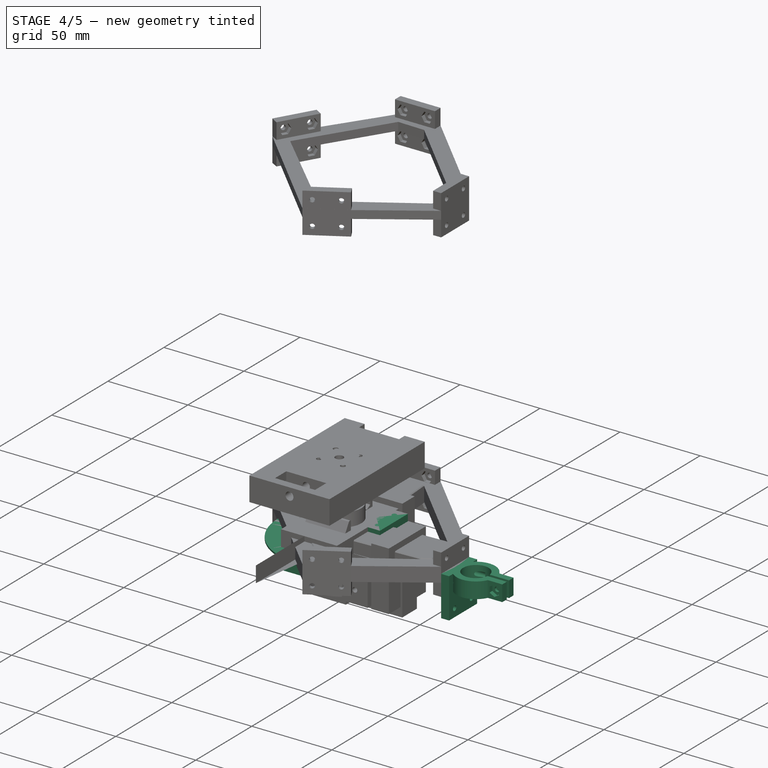
[diagram: stage 4 of 5 — iso view after this stage's code; geometry added in this stage tinted green]
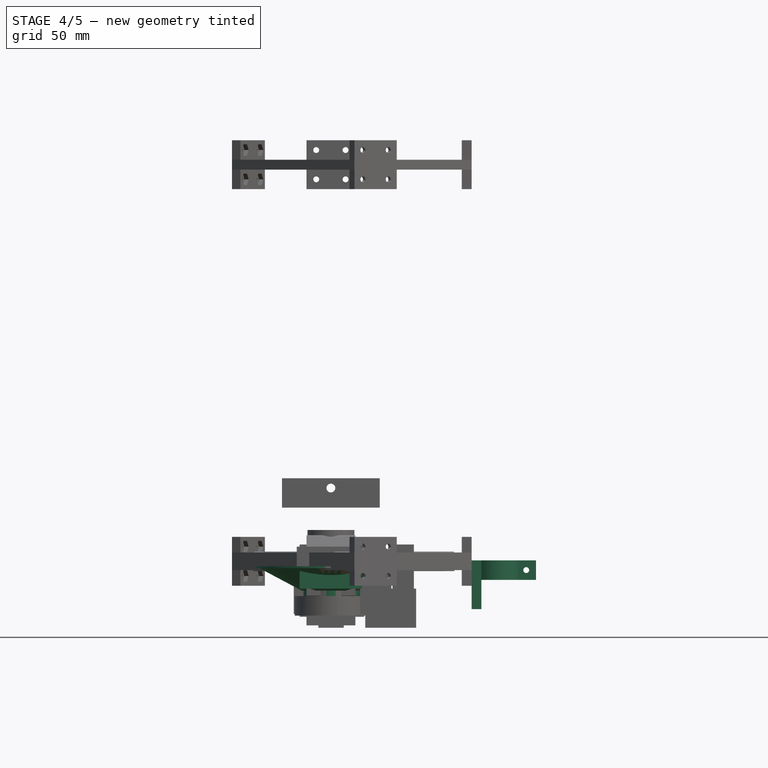
[diagram: stage 4 of 5 — front view after this stage's code; geometry added in this stage tinted green]
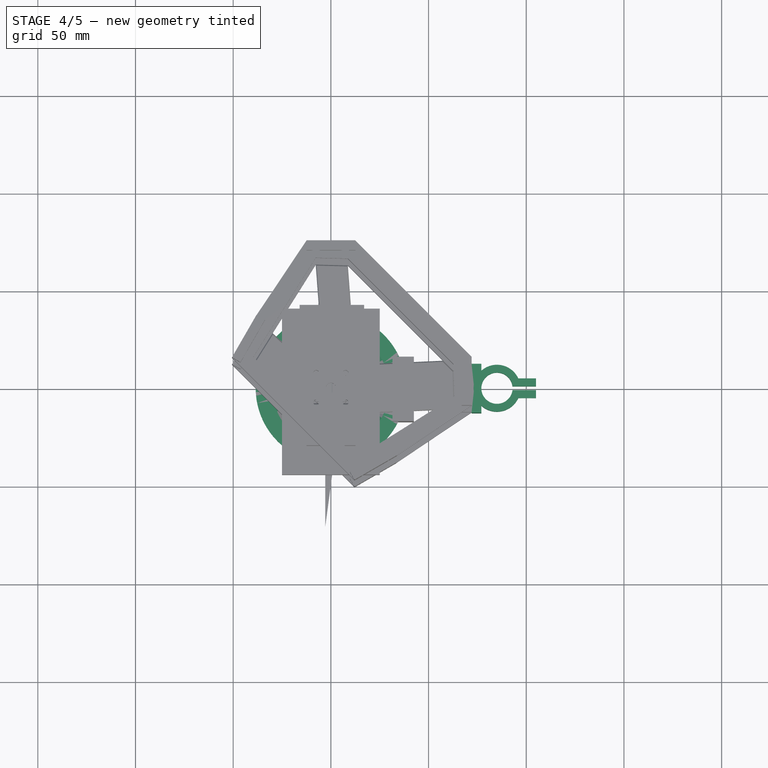
[diagram: stage 4 of 5 — top view after this stage's code; geometry added in this stage tinted green]
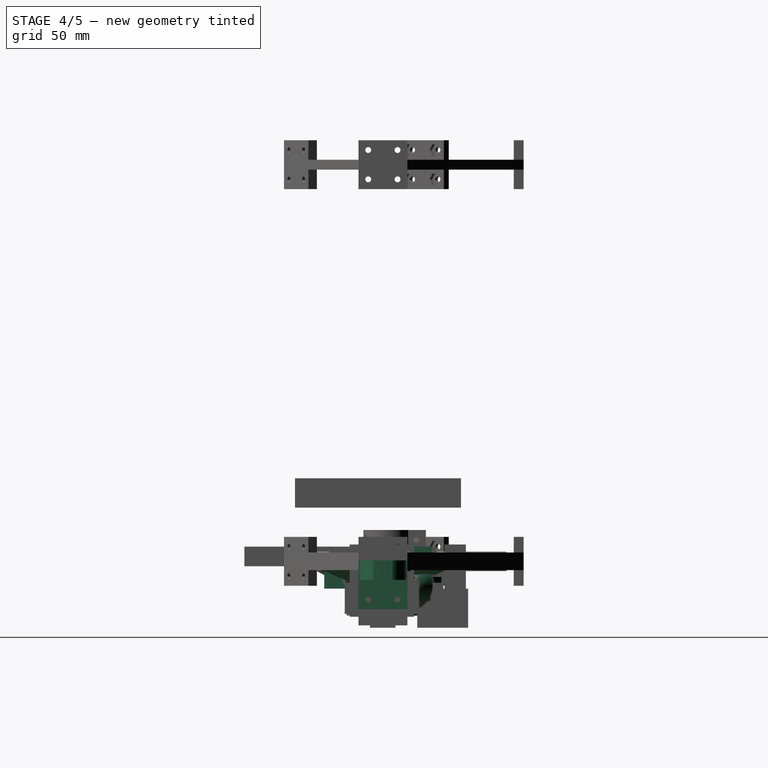
[diagram: stage 4 of 5 — right view after this stage's code; geometry added in this stage tinted green]
FEATURE [App::DocumentObjectGroup] Group001  label="bracket"
  Group = -> [Cut004003001,Cut004003002]
FEATURE [Part::Part2DObjectPython] Rectangle001  # Draft 2D object (typed FeaturePython)
  ChamferSize = 0
  Columns = 1
  FilletRadius = 0
  Height = 25
  Length = 25
  MakeFace = false
  Rows = 1
FEATURE [Part::Part2DObjectPython] Polygon  label="nut_insert"  # Draft 2D object (typed FeaturePython)
  ChamferSize = 0
  DrawMode = 0
  FacesNumber = 6
  FilletRadius = 0
  MakeFace = false
  Placement = pos=(5,20,0) rot=(0,0,1;0rad)
  Radius = 3.41
FEATURE [Part::Part2DObjectPython] Polygon001  label="nut_insert001"  # Draft 2D object (typed FeaturePython)
  ChamferSize = 0
  DrawMode = 0
  FacesNumber = 6
  FilletRadius = 0
  MakeFace = false
  Placement = pos=(5,5,0) rot=(0,0,1;0rad)
  Radius = 3.41
FEATURE [Part::Part2DObjectPython] Polygon002  label="nut_insert002"  # Draft 2D object (typed FeaturePython)
  ChamferSize = 0
  DrawMode = 0
  FacesNumber = 6
  FilletRadius = 0
  MakeFace = false
  Placement = pos=(20,20,0) rot=(0,0,1;0rad)
  Radius = 3.41
FEATURE [Part::Part2DObjectPython] Polygon003  label="nut_insert003"  # Draft 2D object (typed FeaturePython)
  ChamferSize = 0
  DrawMode = 0
  FacesNumber = 6
  FilletRadius = 0
  MakeFace = false
  Placement = pos=(20,5,0) rot=(0,0,1;0rad)
  Radius = 3.41
FEATURE [Part::Part2DObjectPython] Circle004  # Draft 2D object (typed FeaturePython)
  FirstAngle = 0
  LastAngle = 0
  MakeFace = false
  Placement = pos=(12.5,12.5,0) rot=(0,0,1;0rad)
  Radius = 10.5
FEATURE [Part::Part2DObjectPython] Circle005  # Draft 2D object (typed FeaturePython)
  FirstAngle = 0
  LastAngle = 0
  MakeFace = false
  Placement = pos=(12.5,12.5,0) rot=(0,0,1;0rad)
  Radius = 2.5
FEATURE [Part::Extrusion] Extrude009
  Base = -> Rectangle001
  Dir = (0,0,1)
  DirMode = 2
  FaceMakerClass = Part::FaceMakerBullseye
  LengthFwd = 10
  LengthRev = 0
  Solid = true
  Symmetric = false
FEATURE [Part::Extrusion] Extrude010
  Base = -> Circle005
  Dir = (0,0,1)
  DirMode = 2
  FaceMakerClass = Part::FaceMakerBullseye
  LengthFwd = 5
  LengthRev = 0
  Placement = pos=(0,0,6.5) rot=(0,0,1;0rad)
  Solid = true
  Symmetric = false
FEATURE [Part::Cut] Cut004003003
  Base = -> Extrude009
  Tool = -> Extrude010
FEATURE [Part::Part2DObjectPython] Polygon004  label="screwhole002"  # Draft 2D object (typed FeaturePython)
  ChamferSize = 0
  DrawMode = 0
  FacesNumber = 60
  FilletRadius = 0
  MakeFace = false
  Placement = pos=(5,20,0) rot=(0,0,1;0rad)
  Radius = 1.5
FEATURE [Part::Part2DObjectPython] Polygon005  label="screwhole001"  # Draft 2D object (typed FeaturePython)
  ChamferSize = 0
  DrawMode = 0
  FacesNumber = 60
  FilletRadius = 0
  MakeFace = false
  Placement = pos=(5,5,0) rot=(0,0,1;0rad)
  Radius = 1.5
FEATURE [Part::Part2DObjectPython] Polygon006  label="screwhole003"  # Draft 2D object (typed FeaturePython)
  ChamferSize = 0
  DrawMode = 0
  FacesNumber = 60
  FilletRadius = 0
  MakeFace = false
  Placement = pos=(20,20,0) rot=(0,0,1;0rad)
  Radius = 1.5
FEATURE [Part::Part2DObjectPython] Polygon007  label="screwhole"  # Draft 2D object (typed FeaturePython)
  ChamferSize = 0
  DrawMode = 0
  FacesNumber = 60
  FilletRadius = 0
  MakeFace = false
  Placement = pos=(20,5,0) rot=(0,0,1;0rad)
  Radius = 1.5
FEATURE [Part::Extrusion] Extrude011
  Base = -> Polygon
  Dir = (0,0,1)
  DirMode = 2
  FaceMakerClass = Part::FaceMakerBullseye
  LengthFwd = 5
  LengthRev = 0
  Solid = true
  Symmetric = false
FEATURE [Part::Extrusion] Extrude012
  Base = -> Polygon001
  Dir = (0,0,1)
  DirMode = 2
  FaceMakerClass = Part::FaceMakerBullseye
  LengthFwd = 5
  LengthRev = 0
  Solid = true
  Symmetric = false
FEATURE [Part::Extrusion] Extrude013
  Base = -> Polygon002
  Dir = (0,0,1)
  DirMode = 2
  FaceMakerClass = Part::FaceMakerBullseye
  LengthFwd = 5
  LengthRev = 0
  Solid = true
  Symmetric = false
FEATURE [Part::Extrusion] Extrude014
  Base = -> Polygon003
  Dir = (0,0,1)
  DirMode = 2
  FaceMakerClass = Part::FaceMakerBullseye
  LengthFwd = 5
  LengthRev = 0
  Solid = true
  Symmetric = false
FEATURE [Part::MultiFuse] Fusion  label="nut_inserts"
  Shapes = -> [Extrude011,Extrude013,Extrude014,Extrude012]
FEATURE [Part::Extrusion] Extrude015
  Base = -> Polygon004
  Dir = (0,0,1)
  DirMode = 2
  FaceMakerClass = Part::FaceMakerBullseye
  LengthFwd = 10
  LengthRev = 0
  Solid = true
  Symmetric = false
FEATURE [Part::Extrusion] Extrude016
  Base = -> Polygon005
  Dir = (0,0,1)
  DirMode = 2
  FaceMakerClass = Part::FaceMakerBullseye
  LengthFwd = 10
  LengthRev = 0
  Solid = true
  Symmetric = false
FEATURE [Part::Extrusion] Extrude017
  Base = -> Polygon006
  Dir = (0,0,1)
  DirMode = 2
  FaceMakerClass = Part::FaceMakerBullseye
  LengthFwd = 10
  LengthRev = 0
  Solid = true
  Symmetric = false
FEATURE [Part::Extrusion] Extrude018
  Base = -> Polygon007
  Dir = (0,0,1)
  DirMode = 2
  FaceMakerClass = Part::FaceMakerBullseye
  LengthFwd = 10
  LengthRev = 0
  Solid = true
  Symmetric = false
FEATURE [Part::MultiFuse] Fusion001  label="screw_holes"
  Shapes = -> [Extrude015,Extrude016,Extrude018,Extrude017]
FEATURE [Part::Sphere] Sphere
  Angle1 = -90
  Angle2 = 90
  Angle3 = 360
  AttacherType = Attacher::AttachEngine3D
  Placement = pos=(12.5,12.5,-10) rot=(0,0,1;0rad)
  Radius = 14.5
FEATURE [App::DocumentObjectGroup] Group003  label="connector"
  Group = -> [Rectangle001,Polygon,Polygon001,Polygon002,Polygon003,Circle004,Circle005,Polygon004,Polygon005,Polygon006,Polygon007,Cut004003006,Chamfer]
FEATURE [Part::Part2DObjectPython] Circle006  label="outer"  # Draft 2D object (typed FeaturePython)
  FirstAngle = 0
  LastAngle = 0
  MakeFace = false
  Radius = 38.5
FEATURE [Part::Part2DObjectPython] Circle007  label="rear_magnet"  # Draft 2D object (typed FeaturePython)
  FirstAngle = 0
  LastAngle = 0
  MakeFace = false
  Radius = 15.75
FEATURE [Part::Part2DObjectPython] Circle008  label="rear_magnet001"  # Draft 2D object (typed FeaturePython)
  FirstAngle = 0
  LastAngle = 0
  MakeFace = false
  Radius = 14
FEATURE [Part::Part2DObjectPython] Rectangle002  label="wires"  # Draft 2D object (typed FeaturePython)
  ChamferSize = 0
  Columns = 1
  FilletRadius = 0
  Height = 11
  Length = 32
  MakeFace = false
  Placement = pos=(-16,-30,0) rot=(0,0,1;0rad)
  Rows = 1
FEATURE [Part::Cone] Cone  label="speaker_body"
  Angle = 360
  AttacherType = Attacher::AttachEngine3D
  Height = 12.5
  Placement = pos=(0,0,-12.5) rot=(0,0,1;0rad)
  Radius1 = 15
  Radius2 = 38.5
FEATURE [Part::Extrusion] Extrude019  label="wire_connections"
  Base = -> Rectangle002
  Dir = (0,0,1)
  DirMode = 2
  FaceMakerClass = Part::FaceMakerBullseye
  LengthFwd = 11.5
  LengthRev = 0
  Placement = pos=(0,0,-11.5) rot=(0,0,1;0rad)
  Solid = true
  Symmetric = false
FEATURE [Part::Extrusion] Extrude020  label="core"
  Base = -> Circle008
  Dir = (0,0,1)
  DirMode = 2
  FaceMakerClass = Part::FaceMakerBullseye
  LengthFwd = -22.25
  LengthRev = 0
  Solid = true
  Symmetric = false
FEATURE [Part::Extrusion] Extrude022  label="fixed_magnet"
  Base = -> Circle007
  Dir = (0,0,1)
  DirMode = 2
  FaceMakerClass = Part::FaceMakerBullseye
  LengthFwd = -5.7
  LengthRev = 0
  Placement = pos=(0,0,-15.25) rot=(0,0,1;0rad)
  Solid = true
  Symmetric = false
FEATURE [Part::Extrusion] Extrude023
  Base = -> Circle006
  Dir = (0,0,1)
  DirMode = 2
  FaceMakerClass = Part::FaceMakerBullseye
  LengthFwd = -1
  LengthRev = 0
  Solid = true
  Symmetric = false
FEATURE [Part::MultiFuse] Fusion002
  Shapes = -> [Cone,Extrude020,Extrude022,Extrude019,Extrude023]
FEATURE [Part::Cone] Cone001  label="Cone"
  Angle = 360
  AttacherType = Attacher::AttachEngine3D
  Height = 10
  Placement = pos=(0,0,-10) rot=(0,0,1;0rad)
  Radius1 = 11.5
  Radius2 = 30
FEATURE [Part::Cut] Cut004003007
  Base = -> Fusion002
  Tool = -> Cone001
FEATURE [Part::Feature] Chamfer001  label="connector001"
  Placement = pos=(-12,-12,-5.5) rot=(0,0,1;0rad)
  shape: bbox 25 x 25 x 10 mm, 281 faces (baked)
FEATURE [Part::Feature] Cut004003002001  label="bracket001"
  shape: bbox 8 x 7.48 x 10 mm, 8 faces (baked)
FEATURE [App::DocumentObjectGroup] Group005  label="final models_old"
  Group = -> [Cut004003002001]
FEATURE [Part::Feature] Fillet002001  label="Sensor Cover"
  shape: bbox 16.92 x 25.4 x 5.13 mm, 41 faces (baked)
FEATURE [Part::Feature] Sphere001
  Placement = pos=(0,0,-10) rot=(0,0,1;0rad)
  shape: bbox 29 x 29 x 29 mm, 1 faces (baked)
FEATURE [Part::Box] Box004  label="Cube004"
  AttacherType = Attacher::AttachEngine3D
  Height = 10
  Length = 30
  Placement = pos=(-16.5,-14.5,0) rot=(0,0,1;0rad)
  Width = 30
FEATURE [Part::MultiCommon] Common
  Placement = pos=(0,0,-10) rot=(0,0,1;0rad)
  Shapes = -> [Box004,Sphere001]
FEATURE [Part::MultiFuse] Fusion003
  Shapes = -> [Cut004003007,Common]
FEATURE [Part::Chamfer] Chamfer002  label="edge"
  Base = -> Cut004003002002
  Edges = 2 edges r=0.7: [Edge4,Edge6]
FEATURE [Part::Part2DObjectPython] Rectangle003  # Draft 2D object (typed FeaturePython)
  ChamferSize = 0
  Columns = 1
  FilletRadius = 0
  Height = 2
  Length = 4
  MakeFace = false
  Placement = pos=(13,-1,0) rot=(0,0,1;0rad)
  Rows = 1
FEATURE [Part::Part2DObjectPython] Rectangle004  # Draft 2D object (typed FeaturePython)
  ChamferSize = 0
  Columns = 1
  FilletRadius = 0
  Height = 2
  Length = 4
  MakeFace = false
  Placement = pos=(7.36603,10.7583,0) rot=(0,0,1;1.0472rad)
  Rows = 1
FEATURE [Part::Part2DObjectPython] Rectangle005  # Draft 2D object (typed FeaturePython)
  ChamferSize = 0
  Columns = 1
  FilletRadius = 0
  Height = 2
  Length = 4
  MakeFace = false
  Placement = pos=(-5.63397,11.7583,0) rot=(0,0,1;2.0944rad)
  Rows = 1
FEATURE [Part::Part2DObjectPython] Rectangle006  # Draft 2D object (typed FeaturePython)
  ChamferSize = 0
  Columns = 1
  FilletRadius = 0
  Height = 2
  Length = 4
  MakeFace = false
  Placement = pos=(-13,1,0) rot=(0,0,1;3.14159rad)
  Rows = 1
FEATURE [Part::Part2DObjectPython] Rectangle007  # Draft 2D object (typed FeaturePython)
  ChamferSize = 0
  Columns = 1
  FilletRadius = 0
  Height = 2
  Length = 4
  MakeFace = false
  Placement = pos=(-7.36603,-10.7583,0) rot=(0,0,1;4.18879rad)
  Rows = 1
FEATURE [Part::Part2DObjectPython] Rectangle008  # Draft 2D object (typed FeaturePython)
  ChamferSize = 0
  Columns = 1
  FilletRadius = 0
  Height = 2
  Length = 4
  MakeFace = false
  Placement = pos=(5.63397,-11.7583,0) rot=(0,0,-1;1.0472rad)
  Rows = 1
FEATURE [Part::Part2DObjectPython] Rectangle009  # Draft 2D object (typed FeaturePython)
  ChamferSize = 0
  Columns = 1
  FilletRadius = 0
  Height = 2
  Length = 4
  MakeFace = false
  Placement = pos=(-10.7583,7.36603,0) rot=(0,0,1;2.61799rad)
  Rows = 1
FEATURE [Part::Part2DObjectPython] Rectangle010  # Draft 2D object (typed FeaturePython)
  ChamferSize = 0
  Columns = 1
  FilletRadius = 0
  Height = 2
  Length = 4
  MakeFace = false
  Placement = pos=(-11.7583,-5.63397,0) rot=(0,0,1;3.66519rad)
  Rows = 1
FEATURE [Part::Part2DObjectPython] Rectangle011  # Draft 2D object (typed FeaturePython)
  ChamferSize = 0
  Columns = 1
  FilletRadius = 0
  Height = 2
  Length = 4
  MakeFace = false
  Placement = pos=(-1,-13,0) rot=(0,0,-1;1.5708rad)
  Rows = 1
FEATURE [Part::Part2DObjectPython] Rectangle012  # Draft 2D object (typed FeaturePython)
  ChamferSize = 0
  Columns = 1
  FilletRadius = 0
  Height = 2
  Length = 4
  MakeFace = false
  Placement = pos=(10.7583,-7.36603,0) rot=(0,0,-1;0.523599rad)
  Rows = 1
FEATURE [Part::Part2DObjectPython] Rectangle013  # Draft 2D object (typed FeaturePython)
  ChamferSize = 0
  Columns = 1
  FilletRadius = 0
  Height = 2
  Length = 4
  MakeFace = false
  Placement = pos=(11.7583,5.63397,0) rot=(0,0,1;0.523599rad)
  Rows = 1
FEATURE [Part::Part2DObjectPython] Rectangle014  # Draft 2D object (typed FeaturePython)
  ChamferSize = 0
  Columns = 1
  FilletRadius = 0
  Height = 2
  Length = 4
  MakeFace = false
  Placement = pos=(1,13,0) rot=(0,0,1;1.5708rad)
  Rows = 1
FEATURE [Part::Extrusion] Extrude030
  Base = -> Rectangle003
  Dir = (0,0,1)
  DirMode = 2
  FaceMakerClass = Part::FaceMakerBullseye
  LengthFwd = 10
  LengthRev = 0
  Solid = true
  Symmetric = false
FEATURE [Part::Extrusion] Extrude031
  Base = -> Rectangle004
  Dir = (0,0,1)
  DirMode = 2
  FaceMakerClass = Part::FaceMakerBullseye
  LengthFwd = 10
  LengthRev = 0
  Solid = true
  Symmetric = false
FEATURE [Part::Extrusion] Extrude032
  Base = -> Rectangle005
  Dir = (0,0,1)
  DirMode = 2
  FaceMakerClass = Part::FaceMakerBullseye
  LengthFwd = 10
  LengthRev = 0
  Solid = true
  Symmetric = false
FEATURE [Part::Extrusion] Extrude033
  Base = -> Rectangle006
  Dir = (0,0,1)
  DirMode = 2
  FaceMakerClass = Part::FaceMakerBullseye
  LengthFwd = 10
  LengthRev = 0
  Solid = true
  Symmetric = false
FEATURE [Part::Extrusion] Extrude034
  Base = -> Rectangle007
  Dir = (0,0,1)
  DirMode = 2
  FaceMakerClass = Part::FaceMakerBullseye
  LengthFwd = 10
  LengthRev = 0
  Solid = true
  Symmetric = false
FEATURE [Part::Extrusion] Extrude035
  Base = -> Rectangle008
  Dir = (0,0,1)
  DirMode = 2
  FaceMakerClass = Part::FaceMakerBullseye
  LengthFwd = 10
  LengthRev = 0
  Solid = true
  Symmetric = false
FEATURE [Part::Extrusion] Extrude036
  Base = -> Rectangle009
  Dir = (0,0,1)
  DirMode = 2
  FaceMakerClass = Part::FaceMakerBullseye
  LengthFwd = 10
  LengthRev = 0
  Solid = true
  Symmetric = false
FEATURE [Part::Extrusion] Extrude037
  Base = -> Rectangle010
  Dir = (0,0,1)
  DirMode = 2
  FaceMakerClass = Part::FaceMakerBullseye
  LengthFwd = 10
  LengthRev = 0
  Solid = true
  Symmetric = false
FEATURE [Part::Extrusion] Extrude038
  Base = -> Rectangle011
  Dir = (0,0,1)
  DirMode = 2
  FaceMakerClass = Part::FaceMakerBullseye
  LengthFwd = 10
  LengthRev = 0
  Solid = true
  Symmetric = false
FEATURE [Part::Extrusion] Extrude039
  Base = -> Rectangle012
  Dir = (0,0,1)
  DirMode = 2
  FaceMakerClass = Part::FaceMakerBullseye
  LengthFwd = 10
  LengthRev = 0
  Solid = true
  Symmetric = false
FEATURE [Part::Extrusion] Extrude040
  Base = -> Rectangle013
  Dir = (0,0,1)
  DirMode = 2
  FaceMakerClass = Part::FaceMakerBullseye
  LengthFwd = 10
  LengthRev = 0
  Solid = true
  Symmetric = false
FEATURE [Part::Extrusion] Extrude041
  Base = -> Rectangle014
  Dir = (0,0,1)
  DirMode = 2
  FaceMakerClass = Part::FaceMakerBullseye
  LengthFwd = 10
  LengthRev = 0
  Solid = true
  Symmetric = false
FEATURE [App::DocumentObjectGroup] Group008  label="tab_cutouts"
  Group = -> [Rectangle003,Rectangle004,Rectangle005,Rectangle006,Rectangle007,Rectangle008,Rectangle009,Rectangle010,Rectangle011,Rectangle012,Rectangle013,Rectangle014,Extrude030,Extrude031,Extrude032,Extrude033,Extrude034,Extrude035,Extrude036,Extrude037,Extrude038,Extrude039,Extrude040,Extrude041]
FEATURE [Part::MultiFuse] Fusion003003
  Placement = pos=(0,0,-20.9) rot=(0,0,1;0rad)
  Shapes = -> [Extrude030,Extrude031,Extrude032,Extrude033,Extrude034,Extrude035,Extrude036,Extrude037,Extrude038,Extrude039,Extrude040,Extrude041]
FEATURE [Part::Cut] Cut004003002003  label="with_tabs"
  Base = -> Chamfer002
  Tool = -> Fusion003003
FEATURE [App::DocumentObjectGroup] Group007  label="old_speaker_mount (tabs break)"
  Group = -> [Group008,Cut004003002003]
FEATURE [Part::MultiFuse] Fusion003004  label="Speaker with connector"
  Shapes = -> [Fusion003001,Chamfer001]
FEATURE [Part::MultiFuse] Fusion003007  label="nut inserts001"
  Shapes = -> [Extrude048,Extrude051,Extrude050,Extrude049]
FEATURE [Part::Cut] Cut004003002005
  Base = -> Cut004003002004
  Tool = -> Fusion003006
FEATURE [Part::Cut] Cut004003002006  label="base_with_holes001"
  Base = -> Extrude047
  Tool = -> Fusion003005
FEATURE [App::DocumentObjectGroup] Group013  label="extruded"
  Group = -> [Cut004003002005,Fusion003007,Cut004003002006]
FEATURE [App::DocumentObjectGroup] Group011  label="hole pattern"
  Group = -> [Polygon009,Circle009,Rectangle015,Polygon010,Polygon011,Polygon008,Group012,Group013]
FEATURE [Part::Cylinder] Cylinder001
  Angle = 360
  AttacherType = Attacher::AttachEngine3D
  Height = 5
  Placement = pos=(12.5,12.5,-4) rot=(0,0,1;0rad)
  Radius = 2.5
FEATURE [Part::MultiFuse] Fusion003008  label="nut inserts002"
  Shapes = -> [Extrude052,Extrude055,Extrude054,Extrude053]
FEATURE [Part::Cut] Cut004003002006006  label="connector_with_nut_inserts"
  Base = -> Cut004003002004
  Tool = -> Fusion003006
FEATURE [Part::Cut] Cut004003002006003  label="good"
  Base = -> Fusion003010
  Tool = -> Fusion003009
FEATURE [Part::Part2DObjectPython] Polygon047  label="nut_insert025"  # Draft 2D object (typed FeaturePython)
  ChamferSize = 0
  DrawMode = 0
  FacesNumber = 6
  FilletRadius = 0
  MakeFace = false
  Placement = pos=(5,20,0) rot=(0,0,1;0rad)
  Radius = 3.41
FEATURE [Part::Part2DObjectPython] Rectangle026  # Draft 2D object (typed FeaturePython)
  ChamferSize = 0
  Columns = 1
  FilletRadius = 0
  Height = 13
  Length = 2
  MakeFace = false
  Placement = pos=(-1,7,0) rot=(0,0,1;0rad)
  Rows = 1
FEATURE [Part::Part2DObjectPython] Circle016  label="Circle018"  # Draft 2D object (typed FeaturePython)
  FirstAngle = 0
  LastAngle = 0
  MakeFace = false
  Radius = 8
FEATURE [Part::Part2DObjectPython] Rectangle027  # Draft 2D object (typed FeaturePython)
  ChamferSize = 0
  Columns = 1
  FilletRadius = 0
  Height = 12
  Length = 4
  MakeFace = false
  Placement = pos=(-5,8,0) rot=(0,0,1;0rad)
  Rows = 1
FEATURE [Part::Part2DObjectPython] Rectangle028  # Draft 2D object (typed FeaturePython)
  ChamferSize = 0
  Columns = 1
  FilletRadius = 0
  Height = 12
  Length = 4
  MakeFace = false
  Placement = pos=(1,8,0) rot=(0,0,1;0rad)
  Rows = 1
FEATURE [Part::Part2DObjectPython] Circle017  # Draft 2D object (typed FeaturePython)
  FirstAngle = 0
  LastAngle = 0
  MakeFace = false
  Radius = 12
FEATURE [Part::Extrusion] Extrude101
  Base = -> Rectangle026
  Dir = (0,0,1)
  DirMode = 2
  FaceMakerClass = Part::FaceMakerBullseye
  LengthFwd = 10
  LengthRev = 0
  Solid = true
  Symmetric = false
FEATURE [Part::Extrusion] Extrude102
  Base = -> Circle016
  Dir = (0,0,1)
  DirMode = 2
  FaceMakerClass = Part::FaceMakerBullseye
  LengthFwd = 10
  LengthRev = 0
  Solid = true
  Symmetric = false
FEATURE [Part::Extrusion] Extrude103
  Base = -> Rectangle027
  Dir = (0,0,1)
  DirMode = 2
  FaceMakerClass = Part::FaceMakerBullseye
  LengthFwd = 10
  LengthRev = 0
  Solid = true
  Symmetric = false
FEATURE [Part::Extrusion] Extrude104
  Base = -> Rectangle028
  Dir = (0,0,1)
  DirMode = 2
  FaceMakerClass = Part::FaceMakerBullseye
  LengthFwd = 10
  LengthRev = 0
  Solid = true
  Symmetric = false
FEATURE [Part::Extrusion] Extrude105
  Base = -> Circle017
  Dir = (0,0,1)
  DirMode = 2
  FaceMakerClass = Part::FaceMakerBullseye
  LengthFwd = 10
  LengthRev = 0
  Solid = true
  Symmetric = false
FEATURE [Part::MultiFuse] Fusion003028
  Shapes = -> [Extrude101,Extrude102]
FEATURE [Part::MultiFuse] Fusion003029
  Shapes = -> [Extrude103,Extrude104,Extrude105]
FEATURE [Part::Cut] Cut004003002006003007
  Base = -> Fusion003029
  Tool = -> Fusion003028
FEATURE [Part::Extrusion] Extrude106
  Base = -> Polygon047
  Dir = (0,0,1)
  DirMode = 2
  FaceMakerClass = Part::FaceMakerBullseye
  LengthFwd = 2.5
  LengthRev = 0
  Placement = pos=(5,-5,1e-15) rot=(0,-1,0;1.5708rad)
  Solid = true
  Symmetric = false
FEATURE [Part::Part2DObjectPython] Polygon048  label="screwhole022"  # Draft 2D object (typed FeaturePython)
  ChamferSize = 0
  DrawMode = 0
  FacesNumber = 60
  FilletRadius = 0
  MakeFace = false
  Placement = pos=(5,20,0) rot=(0,0,1;0rad)
  Radius = 1.5
FEATURE [Part::Extrusion] Extrude100
  Base = -> Polygon048
  Dir = (0,0,1)
  DirMode = 2
  FaceMakerClass = Part::FaceMakerBullseye
  LengthFwd = 4
  LengthRev = 0
  Placement = pos=(5,-5,1e-15) rot=(0,-1,0;1.5708rad)
  Solid = true
  Symmetric = false
FEATURE [Part::Part2DObjectPython] Polygon049  label="screwhole023"  # Draft 2D object (typed FeaturePython)
  ChamferSize = 0
  DrawMode = 0
  FacesNumber = 60
  FilletRadius = 0
  MakeFace = false
  Placement = pos=(5,20,0) rot=(0,0,1;0rad)
  Radius = 1.5
FEATURE [Part::Extrusion] Extrude107
  Base = -> Polygon049
  Dir = (0,0,1)
  DirMode = 2
  FaceMakerClass = Part::FaceMakerBullseye
  LengthFwd = 4
  LengthRev = 0
  Placement = pos=(-1,-5,2e-15) rot=(0,-1,0;1.5708rad)
  Solid = true
  Symmetric = false
FEATURE [Part::MultiFuse] Fusion003030
  Shapes = -> [Extrude107,Extrude100,Extrude106]
FEATURE [Part::Cut] Cut004003002006003008  label="clamp001"
  Base = -> Cut004003002006003007
  Tool = -> Fusion003030
FEATURE [Part::Part2DObjectPython] Polygon050  label="screwhole024"  # Draft 2D object (typed FeaturePython)
  ChamferSize = 0
  DrawMode = 0
  FacesNumber = 60
  FilletRadius = 0
  MakeFace = false
  Placement = pos=(20,5,0) rot=(0,0,1;0rad)
  Radius = 1.5
FEATURE [Part::Part2DObjectPython] Circle018  label="Circle019"  # Draft 2D object (typed FeaturePython)
  FirstAngle = 0
  LastAngle = 0
  MakeFace = false
  Placement = pos=(12.5,12.5,0) rot=(0,0,1;0rad)
  Radius = 2.5
FEATURE [Part::Part2DObjectPython] Polygon051  label="screwhole025"  # Draft 2D object (typed FeaturePython)
  ChamferSize = 0
  DrawMode = 0
  FacesNumber = 60
  FilletRadius = 0
  MakeFace = false
  Placement = pos=(5,20,0) rot=(0,0,1;0rad)
  Radius = 1.5
FEATURE [Part::Part2DObjectPython] Polygon052  label="screwhole026"  # Draft 2D object (typed FeaturePython)
  ChamferSize = 0
  DrawMode = 0
  FacesNumber = 60
  FilletRadius = 0
  MakeFace = false
  Placement = pos=(5,5,0) rot=(0,0,1;0rad)
  Radius = 1.5
FEATURE [Part::Part2DObjectPython] Polygon053  label="screwhole027"  # Draft 2D object (typed FeaturePython)
  ChamferSize = 0
  DrawMode = 0
  FacesNumber = 60
  FilletRadius = 0
  MakeFace = false
  Placement = pos=(20,20,0) rot=(0,0,1;0rad)
  Radius = 1.5
FEATURE [Part::Part2DObjectPython] Rectangle029  # Draft 2D object (typed FeaturePython)
  ChamferSize = 0
  Columns = 1
  FilletRadius = 0
  Height = 25
  Length = 25
  MakeFace = false
  Rows = 1
FEATURE [Part::Extrusion] Extrude108
  Base = -> Polygon050
  Dir = (0,0,1)
  DirMode = 2
  FaceMakerClass = Part::FaceMakerBullseye
  LengthFwd = 5
  LengthRev = 0
  Solid = true
  Symmetric = false
FEATURE [Part::Extrusion] Extrude109
  Base = -> Polygon051
  Dir = (0,0,1)
  DirMode = 2
  FaceMakerClass = Part::FaceMakerBullseye
  LengthFwd = 5
  LengthRev = 0
  Solid = true
  Symmetric = false
FEATURE [Part::Extrusion] Extrude110
  Base = -> Polygon052
  Dir = (0,0,1)
  DirMode = 2
  FaceMakerClass = Part::FaceMakerBullseye
  LengthFwd = 5
  LengthRev = 0
  Solid = true
  Symmetric = false
FEATURE [Part::Extrusion] Extrude111
  Base = -> Polygon053
  Dir = (0,0,1)
  DirMode = 2
  FaceMakerClass = Part::FaceMakerBullseye
  LengthFwd = 5
  LengthRev = 0
  Solid = true
  Symmetric = false
FEATURE [Part::Extrusion] Extrude112  label="base004"
  Base = -> Rectangle029
  Dir = (0,0,1)
  DirMode = 2
  FaceMakerClass = Part::FaceMakerBullseye
  LengthFwd = 5
  LengthRev = 0
  Solid = true
  Symmetric = false
FEATURE [Part::Extrusion] Extrude113
  Base = -> Circle018
  Dir = (0,0,1)
  DirMode = 2
  FaceMakerClass = Part::FaceMakerBullseye
  LengthFwd = 2.9
  LengthRev = 0
  Placement = pos=(0,0,2.1) rot=(0,0,1;0rad)
  Solid = true
  Symmetric = false
FEATURE [Part::MultiFuse] Fusion003031  label="holes004"
  Shapes = -> [Extrude111,Extrude108,Extrude113,Extrude109,Extrude110]
FEATURE [Part::Cut] Cut004003002006003009  label="base_with_holes005"
  Base = -> Extrude112
  Placement = pos=(-12.5,-8,-15) rot=(1,0,0;1.5708rad)
  Tool = -> Fusion003031
FEATURE [Part::Feature] Face003
  Placement = pos=(-12.5,-13,2.9e-15) rot=(1,0,0;1.5708rad)
  shape: bbox 3 x 2e-07 x 3 mm, 1 faces, 0 solids (baked)
FEATURE [Part::Feature] Face004
  Placement = pos=(-27.5,-13,2.9e-15) rot=(1,0,0;1.5708rad)
  shape: bbox 3 x 2e-07 x 3 mm, 1 faces, 0 solids (baked)
FEATURE [Part::Extrusion] Extrude114
  Base = -> Face003
  Dir = (0,-1,2e-16)
  DirMode = 2
  FaceMakerClass = Part::FaceMakerBullseye
  LengthFwd = 15
  LengthRev = 0
  Placement = pos=(0,1.5,0) rot=(0,0,1;0rad)
  Solid = false
  Symmetric = false
FEATURE [Part::Extrusion] Extrude115
  Base = -> Face004
  Dir = (0,-1,2e-16)
  DirMode = 2
  FaceMakerClass = Part::FaceMakerBullseye
  LengthFwd = 15
  LengthRev = 0
  Placement = pos=(0,1.5,0) rot=(0,0,1;0rad)
  Solid = false
  Symmetric = false
FEATURE [Part::MultiFuse] Fusion003032
  Placement = pos=(0,11.77,0) rot=(0,0,1;0rad)
  Shapes = -> [Extrude114,Extrude115]
FEATURE [Part::MultiFuse] Fusion003033
  Shapes = -> [Cut004003002006003009,Cut004003002006003008]
FEATURE [Part::Cut] Cut004003002006003010  label="clamp_connector001"
  Base = -> Fusion003033
  Tool = -> Fusion003032
FEATURE [App::DocumentObjectGroup] Group017  label="clamp_connector_"
  Group = -> [Cut004003002006003010]
FEATURE [App::DocumentObjectGroup] Group010  label="modular system"
  Group = -> [Group011,Group014,Group017]
FEATURE [App::DocumentObjectGroup] Group006  label="Internals_of_older_parts"
  Group = -> [Group,Group001,Group002,Group010]
FEATURE [Part::Feature] Chamfer004  label="connector003"
  Placement = pos=(-12,-12,-5.5) rot=(0,0,1;0rad)
  shape: bbox 25 x 25 x 10 mm, 281 faces (baked)
FEATURE [Part::Feature] Fusion003035  label="speaker model004"
  shape: bbox 77 x 77 x 22.25 mm, 19 faces (baked)
FEATURE [Part::Feature] Cut004003002006003006003  label="speaker mounter003"
  shape: bbox 37 x 37 x 15.2 mm, 307 faces, 2 solids (baked)
FEATURE [Part::Part2DObjectPython] Polygon054  label="screwhole028"  # Draft 2D object (typed FeaturePython)
  ChamferSize = 0
  DrawMode = 0
  FacesNumber = 60
  FilletRadius = 0
  MakeFace = false
  Placement = pos=(5,20,0) rot=(0,0,1;0rad)
  Radius = 1.5
FEATURE [Part::Part2DObjectPython] Rectangle030  # Draft 2D object (typed FeaturePython)
  ChamferSize = 0
  Columns = 1
  FilletRadius = 0
  Height = 13
  Length = 2
  MakeFace = false
  Placement = pos=(-1,7,0) rot=(0,0,1;0rad)
  Rows = 1
FEATURE [Part::Part2DObjectPython] Circle019  label="Circle021"  # Draft 2D object (typed FeaturePython)
  FirstAngle = 0
  LastAngle = 0
  MakeFace = false
  Radius = 8
FEATURE [Part::Part2DObjectPython] Rectangle031  # Draft 2D object (typed FeaturePython)
  ChamferSize = 0
  Columns = 1
  FilletRadius = 0
  Height = 12
  Length = 4
  MakeFace = false
  Placement = pos=(-5,8,0) rot=(0,0,1;0rad)
  Rows = 1
FEATURE [Part::Part2DObjectPython] Rectangle032  # Draft 2D object (typed FeaturePython)
  ChamferSize = 0
  Columns = 1
  FilletRadius = 0
  Height = 12
  Length = 4
  MakeFace = false
  Placement = pos=(1,8,0) rot=(0,0,1;0rad)
  Rows = 1
FEATURE [Part::Part2DObjectPython] Circle020  # Draft 2D object (typed FeaturePython)
  FirstAngle = 0
  LastAngle = 0
  MakeFace = false
  Radius = 12
FEATURE [Part::Extrusion] Extrude116
  Base = -> Rectangle030
  Dir = (0,0,1)
  DirMode = 2
  FaceMakerClass = Part::FaceMakerBullseye
  LengthFwd = 10
  LengthRev = 0
  Solid = true
  Symmetric = false
FEATURE [Part::Extrusion] Extrude117
  Base = -> Circle019
  Dir = (0,0,1)
  DirMode = 2
  FaceMakerClass = Part::FaceMakerBullseye
  LengthFwd = 10
  LengthRev = 0
  Solid = true
  Symmetric = false
FEATURE [Part::Extrusion] Extrude118
  Base = -> Rectangle031
  Dir = (0,0,1)
  DirMode = 2
  FaceMakerClass = Part::FaceMakerBullseye
  LengthFwd = 10
  LengthRev = 0
  Solid = true
  Symmetric = false
FEATURE [Part::MultiFuse] Fusion003037
  Shapes = -> [Extrude116,Extrude117]
FEATURE [Part::MultiFuse] Fusion003038
  Shapes = -> [Extrude118,Extrude119,Extrude120]
FEATURE [Part::Cut] Cut004003002006003006005
  Base = -> Fusion003038
  Tool = -> Fusion003037
FEATURE [Part::Cut] Cut004003002006003006004  label="clamp002"
  Base = -> Cut004003002006003006005
  Tool = -> Fusion003039
FEATURE [Part::Feature] Face005
  Placement = pos=(-12.5,-13,2.9e-15) rot=(1,0,0;1.5708rad)
  shape: bbox 3 x 2e-07 x 3 mm, 1 faces, 0 solids (baked)
FEATURE [Part::Feature] Face006
  Placement = pos=(-27.5,-13,2.9e-15) rot=(1,0,0;1.5708rad)
  shape: bbox 3 x 2e-07 x 3 mm, 1 faces, 0 solids (baked)
FEATURE [Part::Extrusion] Extrude130
  Base = -> Face005
  Dir = (0,-1,2e-16)
  DirMode = 2
  FaceMakerClass = Part::FaceMakerBullseye
  LengthFwd = 15
  LengthRev = 0
  Placement = pos=(0,1.5,0) rot=(0,0,1;0rad)
  Solid = false
  Symmetric = false
FEATURE [Part::Extrusion] Extrude131
  Base = -> Face006
  Dir = (0,-1,2e-16)
  DirMode = 2
  FaceMakerClass = Part::FaceMakerBullseye
  LengthFwd = 15
  LengthRev = 0
  Placement = pos=(0,1.5,0) rot=(0,0,1;0rad)
  Solid = false
  Symmetric = false
FEATURE [Part::MultiFuse] Fusion003041
  Placement = pos=(0,11.77,0) rot=(0,0,1;0rad)
  Shapes = -> [Extrude130,Extrude131]
FEATURE [Part::MultiFuse] Fusion003042
  Shapes = -> [Cut004003002006003006006,Cut004003002006003006004]
FEATURE [Part::Cut] Cut004003002006003006007  label="clamp_connector002"
  Base = -> Fusion003042
  Placement = pos=(85,4.4e-14,-7) rot=(0,0,-1;1.5708rad)
  Tool = -> Fusion003041
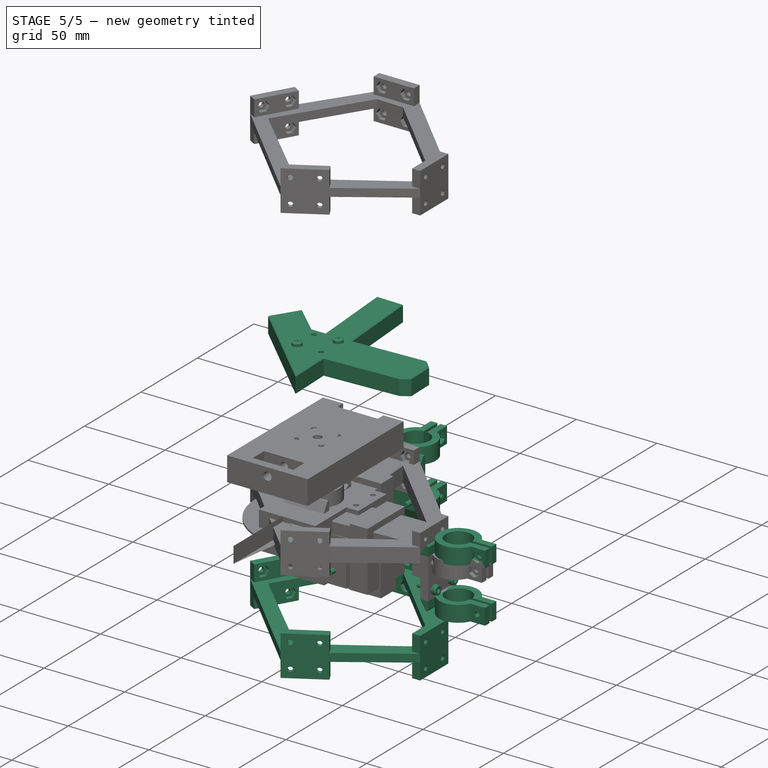
[diagram: stage 5 of 5 — iso view after this stage's code; geometry added in this stage tinted green]
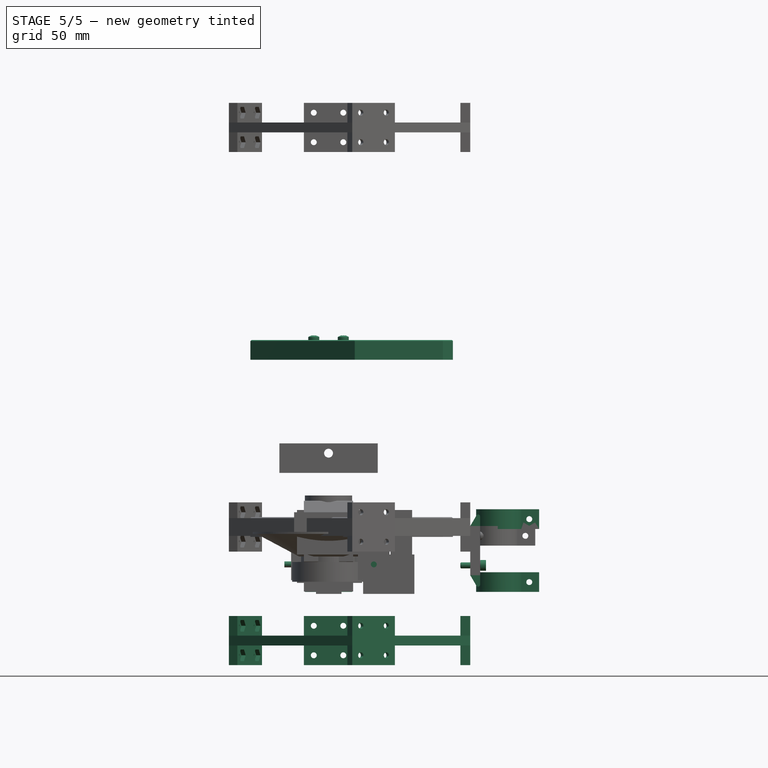
[diagram: stage 5 of 5 — front view after this stage's code; geometry added in this stage tinted green]
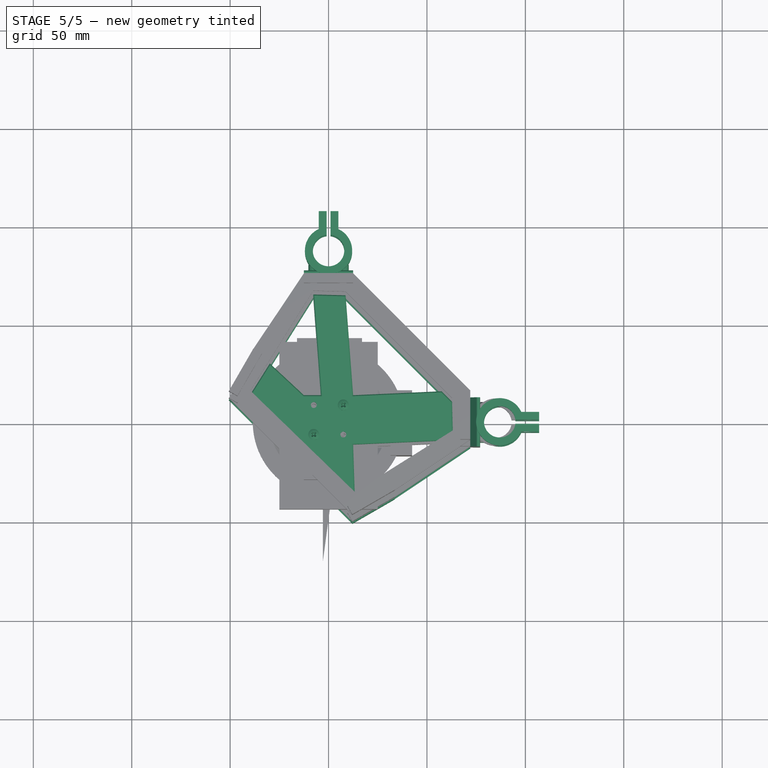
[diagram: stage 5 of 5 — top view after this stage's code; geometry added in this stage tinted green]
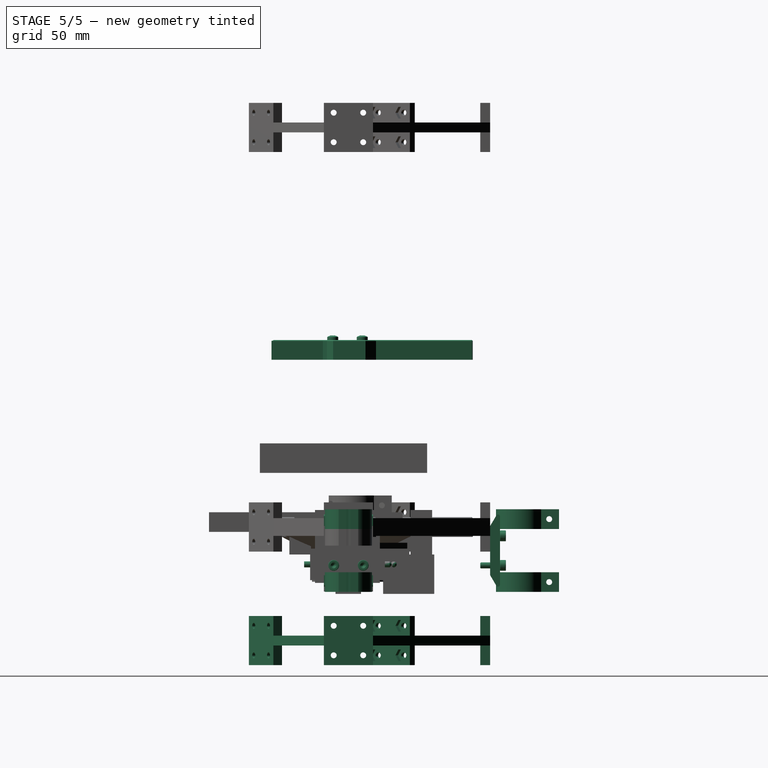
[diagram: stage 5 of 5 — right view after this stage's code; geometry added in this stage tinted green]
FEATURE [Part::Part2DObjectPython] Rectangle  # Draft 2D object (typed FeaturePython)
  ChamferSize = 0
  Columns = 1
  FilletRadius = 0
  Height = 25.4
  Length = 16.87
  MakeFace = false
  Rows = 1
FEATURE [Part::Part2DObjectPython] Circle  # Draft 2D object (typed FeaturePython)
  FirstAngle = 0
  LastAngle = 0
  MakeFace = false
  Placement = pos=(2.84,22.2,0) rot=(0,0,1;0rad)
  Radius = 1.4478
FEATURE [Part::Part2DObjectPython] Circle001  # Draft 2D object (typed FeaturePython)
  FirstAngle = 0
  LastAngle = 0
  MakeFace = false
  Placement = pos=(13.74,22.2,0) rot=(0,0,1;0rad)
  Radius = 1.4478
FEATURE [Part::Extrusion] Extrude003
  Base = -> Rectangle
  Dir = (0,0,1)
  DirMode = 0
  FaceMakerClass = Part::FaceMakerBullseye
  LengthFwd = 5.08
  LengthRev = 0
  Solid = true
  Symmetric = false
FEATURE [Part::Extrusion] Extrude004
  Base = -> Circle
  Dir = (0,0,1)
  DirMode = 0
  FaceMakerClass = Part::FaceMakerBullseye
  LengthFwd = 5.08
  LengthRev = 0
  Solid = true
  Symmetric = false
FEATURE [Part::Extrusion] Extrude005
  Base = -> Circle001
  Dir = (0,0,1)
  DirMode = 0
  FaceMakerClass = Part::FaceMakerBullseye
  LengthFwd = 5.08
  LengthRev = 0
  Solid = true
  Symmetric = false
FEATURE [Part::Cut] Cut
  Base = -> Extrude003
  Tool = -> Extrude004
FEATURE [Part::Cut] Cut001
  Base = -> Cut
  Tool = -> Extrude005
FEATURE [Part::Box] Box  label="Cube"
  AttacherType = Attacher::AttachEngine3D
  Height = 4.06
  Length = 10.16
  Placement = pos=(3.6068,8.763,0) rot=(0,0,1;0rad)
  Width = 10.16
FEATURE [Part::Cut] Cut002
  Base = -> Cut001
  Tool = -> Box
FEATURE [Part::Box] Box001  label="Cube001"
  AttacherType = Attacher::AttachEngine3D
  Height = 4.06
  Length = 2.54
  Placement = pos=(7.3498,12.48,1.56) rot=(0,0,1;0rad)
  Width = 2.54
FEATURE [Part::Cut] Cut003
  Base = -> Cut002
  Tool = -> Box001
FEATURE [Part::Box] Box002  label="Cube002"
  AttacherType = Attacher::AttachEngine3D
  Height = 2.032
  Length = 100
  Width = 3.175
FEATURE [Part::Cut] Cut004
  Base = -> Cut003
  Tool = -> Box002
FEATURE [Part::Feature] Cut004001  label="Cut005"
  shape: bbox 16.87 x 25.4 x 5.08 mm, 19 faces (baked)
FEATURE [Part::Fillet] Fillet
  Base = -> Cut004001
  Edges = 14 edges r=1: [Edge5,Edge23,Edge27,Edge28,Edge29,Edge30,Edge41,Edge42,Edge43,Edge44,Edge45,Edge46,Edge47,Edge48]
FEATURE [Part::Feature] Fillet001
  shape: bbox 16.87 x 25.4 x 5.08 mm, 41 faces (baked)
FEATURE [Part::Box] Box003  label="Cube003"
  AttacherType = Attacher::AttachEngine3D
  Height = 19
  Length = 10
  Placement = pos=(11.1099,4.26,3.86511) rot=(0,1,0;0.523599rad)
  Width = 16
FEATURE [Part::Cut] Cut004002
  Base = -> Cut004
  Tool = -> Box003
FEATURE [Part::Fillet] Fillet002
  Base = -> Cut004002
  Edges = 14 edges r=0.1: [Edge5,Edge30,Edge38,Edge39,Edge40,Edge41,Edge42,Edge43,Edge44,Edge45,Edge46,Edge47,Edge48,Edge49]
FEATURE [App::DocumentObjectGroup] Group  label="sensor cover"
  Group = -> [Fillet,Fillet001,Fillet002]
FEATURE [Part::Part2DObjectPython] Circle002  # Draft 2D object (typed FeaturePython)
  FirstAngle = 0
  LastAngle = 0
  MakeFace = false
  Radius = 1.5
FEATURE [Part::Feature] Face
  shape: bbox 8 x 7.472 x 2e-07 mm, 1 faces, 0 solids (baked)
FEATURE [Part::Extrusion] Extrude
  Base = -> Face
  Dir = (0,0,-1)
  DirMode = 2
  FaceMakerClass = Part::FaceMakerBullseye
  LengthFwd = 10
  LengthRev = 0
  Solid = false
  Symmetric = false
FEATURE [Part::Extrusion] Extrude007
  Base = -> Circle002
  Dir = (0,0,1)
  DirMode = 2
  FaceMakerClass = Part::FaceMakerBullseye
  LengthFwd = 10
  LengthRev = 0
  Placement = pos=(0,0,-10) rot=(0,0,1;0rad)
  Solid = true
  Symmetric = false
FEATURE [Part::Cut] Cut004003
  Base = -> Extrude
  Tool = -> Extrude007
FEATURE [Part::Feature] Cut004003001  label="Cut004004"
  shape: bbox 8 x 7.472 x 10 mm, 7 faces (baked)
FEATURE [Part::Part2DObjectPython] Circle003  # Draft 2D object (typed FeaturePython)
  FirstAngle = 0
  LastAngle = 0
  MakeFace = false
  Placement = pos=(0,0,-6) rot=(1,0,0;1.5708rad)
  Radius = 1.45
FEATURE [Part::Extrusion] Extrude008
  Base = -> Circle003
  Dir = (0,-1,2e-16)
  DirMode = 2
  FaceMakerClass = Part::FaceMakerBullseye
  LengthFwd = 10
  LengthRev = 0
  Placement = pos=(0,0,1) rot=(0,0,1;0rad)
  Solid = true
  Symmetric = false
FEATURE [Part::Cut] Cut004003002  label="bracket_main"
  Base = -> Cut004003
  Tool = -> Extrude008
FEATURE [Part::Cut] Cut004003004
  Base = -> Cut004003003
  Tool = -> Fusion
FEATURE [Part::Cut] Cut004003005
  Base = -> Cut004003004
  Tool = -> Fusion001
FEATURE [Part::Cut] Cut004003006
  Base = -> Cut004003005
  Tool = -> Sphere
FEATURE [Part::Chamfer] Chamfer
  Base = -> Cut004003006
  Edges = 4 edges: [Edge3 r1=0.68 r2=1.5,Edge6 r1=0.68 r2=1.5,Edge9 r1=0.68 r2=1.5,Edge11 r1=0.68 r2=1.5]
FEATURE [Part::MultiFuse] Fusion003068  label="Clamp Bracket"
  Placement = pos=(0,85,-7) rot=(0,0,1;0rad)
  Shapes = -> [Screw003,Screw005,Screw004,Screw006,Fusion003067]
FEATURE [Part::MultiFuse] Fusion003069  label="Clamp Bracket001"
  Placement = pos=(85,-2.5e-14,-7) rot=(0,0,-1;1.5708rad)
  Shapes = -> [Screw003,Screw005,Screw004,Screw006,Fusion003067]
FEATURE [Part::MultiFuse] Fusion003090  label="Dowel Frame001"
  Placement = pos=(0,0,125) rot=(0,0,1;0rad)
  Shapes = -> [Extrude196,Cut004003002006003006029,Cut004003002006003006031,Cut004003002006003006028,Cut004003002006003006030]
FEATURE [App::DocumentObjectGroup] Group020  label="full_frame001"
  Group = -> [Fusion003089,Fusion003090]
FEATURE [Part::FeaturePython] Screw011  label="M3x10-Screw010"  # Fasteners workbench fastener (typed FeaturePython)
  Placement = pos=(-7.5,-8,-10) rot=(-1,0,0;1.5708rad)
  diameter = 4
  invert = false
  length = 10
  lengthCustom = 10
  matchOuter = false
  offset = 0
  thread = false
  type = 32
FEATURE [Part::FeaturePython] Screw012  label="M3x10-Screw011"  # Fasteners workbench fastener (typed FeaturePython)
  Placement = pos=(7.5,-8,-10) rot=(-1,0,0;1.5708rad)
  diameter = 4
  invert = false
  length = 10
  lengthCustom = 10
  matchOuter = false
  offset = 0
  thread = false
  type = 32
FEATURE [Part::FeaturePython] Screw013  label="M3x10-Screw012"  # Fasteners workbench fastener (typed FeaturePython)
  Placement = pos=(-7.5,-8,5) rot=(-1,0,0;1.5708rad)
  diameter = 4
  invert = false
  length = 10
  lengthCustom = 10
  matchOuter = false
  offset = 0
  thread = false
  type = 32
FEATURE [Part::FeaturePython] Screw014  label="M3x10-Screw013"  # Fasteners workbench fastener (typed FeaturePython)
  Placement = pos=(7.5,-8,5) rot=(-1,0,0;1.5708rad)
  diameter = 4
  invert = false
  length = 10
  lengthCustom = 10
  matchOuter = false
  offset = 0
  thread = false
  type = 32
FEATURE [Part::Part2DObjectPython] Polygon084  label="screwhole052"  # Draft 2D object (typed FeaturePython)
  ChamferSize = 0
  DrawMode = 0
  FacesNumber = 60
  FilletRadius = 0
  MakeFace = false
  Placement = pos=(20,5,0) rot=(0,0,1;0rad)
  Radius = 1.5
FEATURE [Part::Part2DObjectPython] Circle028  label="Circle029"  # Draft 2D object (typed FeaturePython)
  FirstAngle = 0
  LastAngle = 0
  MakeFace = false
  Placement = pos=(12.5,12.5,0) rot=(0,0,1;0rad)
  Radius = 2.5
FEATURE [Part::Part2DObjectPython] Polygon085  label="screwhole053"  # Draft 2D object (typed FeaturePython)
  ChamferSize = 0
  DrawMode = 0
  FacesNumber = 60
  FilletRadius = 0
  MakeFace = false
  Placement = pos=(5,20,0) rot=(0,0,1;0rad)
  Radius = 1.5
FEATURE [Part::Part2DObjectPython] Polygon086  label="screwhole054"  # Draft 2D object (typed FeaturePython)
  ChamferSize = 0
  DrawMode = 0
  FacesNumber = 60
  FilletRadius = 0
  MakeFace = false
  Placement = pos=(5,5,0) rot=(0,0,1;0rad)
  Radius = 1.5
FEATURE [Part::Part2DObjectPython] Polygon087  label="screwhole055"  # Draft 2D object (typed FeaturePython)
  ChamferSize = 0
  DrawMode = 0
  FacesNumber = 60
  FilletRadius = 0
  MakeFace = false
  Placement = pos=(20,20,0) rot=(0,0,1;0rad)
  Radius = 1.5
FEATURE [Part::Part2DObjectPython] Rectangle041  # Draft 2D object (typed FeaturePython)
  ChamferSize = 0
  Columns = 1
  FilletRadius = 0
  Height = 25
  Length = 25
  MakeFace = false
  Rows = 1
FEATURE [Part::Part2DObjectPython] Polygon088  label="nut_insert032"  # Draft 2D object (typed FeaturePython)
  ChamferSize = 0
  DrawMode = 0
  FacesNumber = 6
  FilletRadius = 0
  MakeFace = false
  Placement = pos=(5,20,0) rot=(0,0,1;0rad)
  Radius = 3.41
FEATURE [Part::Part2DObjectPython] Polygon089  label="nut_insert033"  # Draft 2D object (typed FeaturePython)
  ChamferSize = 0
  DrawMode = 0
  FacesNumber = 6
  FilletRadius = 0
  MakeFace = false
  Placement = pos=(5,5,0) rot=(0,0,1;0rad)
  Radius = 3.41
FEATURE [Part::Part2DObjectPython] Polygon090  label="nut_insert034"  # Draft 2D object (typed FeaturePython)
  ChamferSize = 0
  DrawMode = 0
  FacesNumber = 6
  FilletRadius = 0
  MakeFace = false
  Placement = pos=(20,20,0) rot=(0,0,1;0rad)
  Radius = 3.41
FEATURE [Part::Part2DObjectPython] Polygon091  label="nut_insert035"  # Draft 2D object (typed FeaturePython)
  ChamferSize = 0
  DrawMode = 0
  FacesNumber = 6
  FilletRadius = 0
  MakeFace = false
  Placement = pos=(20,5,0) rot=(0,0,1;0rad)
  Radius = 3.41
FEATURE [Part::Extrusion] Extrude197
  Base = -> Polygon084
  Dir = (0,0,1)
  DirMode = 2
  FaceMakerClass = Part::FaceMakerBullseye
  LengthFwd = 5
  LengthRev = 0
  Solid = true
  Symmetric = false
FEATURE [Part::Extrusion] Extrude198
  Base = -> Polygon085
  Dir = (0,0,1)
  DirMode = 2
  FaceMakerClass = Part::FaceMakerBullseye
  LengthFwd = 5
  LengthRev = 0
  Solid = true
  Symmetric = false
FEATURE [Part::Extrusion] Extrude199
  Base = -> Polygon086
  Dir = (0,0,1)
  DirMode = 2
  FaceMakerClass = Part::FaceMakerBullseye
  LengthFwd = 5
  LengthRev = 0
  Solid = true
  Symmetric = false
FEATURE [Part::Extrusion] Extrude200
  Base = -> Polygon087
  Dir = (0,0,1)
  DirMode = 2
  FaceMakerClass = Part::FaceMakerBullseye
  LengthFwd = 5
  LengthRev = 0
  Solid = true
  Symmetric = false
FEATURE [Part::Extrusion] Extrude201  label="base010"
  Base = -> Rectangle041
  Dir = (0,0,1)
  DirMode = 2
  FaceMakerClass = Part::FaceMakerBullseye
  LengthFwd = 5
  LengthRev = 0
  Solid = true
  Symmetric = false
FEATURE [Part::Extrusion] Extrude202
  Base = -> Polygon088
  Dir = (0,0,1)
  DirMode = 2
  FaceMakerClass = Part::FaceMakerBullseye
  LengthFwd = 2.5
  LengthRev = 0
  Solid = true
  Symmetric = false
FEATURE [Part::Extrusion] Extrude203
  Base = -> Polygon089
  Dir = (0,0,1)
  DirMode = 2
  FaceMakerClass = Part::FaceMakerBullseye
  LengthFwd = 2.5
  LengthRev = 0
  Solid = true
  Symmetric = false
FEATURE [Part::Extrusion] Extrude204
  Base = -> Polygon090
  Dir = (0,0,1)
  DirMode = 2
  FaceMakerClass = Part::FaceMakerBullseye
  LengthFwd = 2.5
  LengthRev = 0
  Solid = true
  Symmetric = false
FEATURE [Part::Extrusion] Extrude205
  Base = -> Polygon091
  Dir = (0,0,1)
  DirMode = 2
  FaceMakerClass = Part::FaceMakerBullseye
  LengthFwd = 2.5
  LengthRev = 0
  Solid = true
  Symmetric = false
FEATURE [Part::MultiFuse] Fusion003092  label="nut inserts009"
  Shapes = -> [Extrude202,Extrude205,Extrude204,Extrude203]
FEATURE [Part::Extrusion] Extrude206
  Base = -> Circle028
  Dir = (0,0,1)
  DirMode = 2
  FaceMakerClass = Part::FaceMakerBullseye
  LengthFwd = 2.9
  LengthRev = 0
  Placement = pos=(0,0,2.1) rot=(0,0,1;0rad)
  Solid = true
  Symmetric = false
FEATURE [Part::MultiFuse] Fusion003091  label="holes011"
  Shapes = -> [Extrude200,Extrude197,Extrude206,Extrude198,Extrude199]
FEATURE [Part::Cut] Cut004003002006003006032  label="connector_without_nut_inserts004"
  Base = -> Extrude201
  Tool = -> Fusion003091
FEATURE [Part::Part2DObjectPython] Rectangle042  # Draft 2D object (typed FeaturePython)
  ChamferSize = 0
  Columns = 1
  FilletRadius = 0
  Height = 13
  Length = 2
  MakeFace = false
  Placement = pos=(-1,7,0) rot=(0,0,1;0rad)
  Rows = 1
FEATURE [Part::Part2DObjectPython] Circle029  label="Circle031"  # Draft 2D object (typed FeaturePython)
  FirstAngle = 0
  LastAngle = 0
  MakeFace = false
  Radius = 8
FEATURE [Part::Part2DObjectPython] Rectangle043  # Draft 2D object (typed FeaturePython)
  ChamferSize = 0
  Columns = 1
  FilletRadius = 0
  Height = 12
  Length = 4
  MakeFace = false
  Placement = pos=(-5,8,0) rot=(0,0,1;0rad)
  Rows = 1
FEATURE [Part::Part2DObjectPython] Rectangle044  # Draft 2D object (typed FeaturePython)
  ChamferSize = 0
  Columns = 1
  FilletRadius = 0
  Height = 12
  Length = 4
  MakeFace = false
  Placement = pos=(1,8,0) rot=(0,0,1;0rad)
  Rows = 1
FEATURE [Part::Part2DObjectPython] Circle030  # Draft 2D object (typed FeaturePython)
  FirstAngle = 0
  LastAngle = 0
  MakeFace = false
  Radius = 12
FEATURE [Part::Extrusion] Extrude207
  Base = -> Rectangle042
  Dir = (0,0,1)
  DirMode = 2
  FaceMakerClass = Part::FaceMakerBullseye
  LengthFwd = 10
  LengthRev = 0
  Solid = true
  Symmetric = false
FEATURE [Part::Extrusion] Extrude208
  Base = -> Circle029
  Dir = (0,0,1)
  DirMode = 2
  FaceMakerClass = Part::FaceMakerBullseye
  LengthFwd = 10
  LengthRev = 0
  Solid = true
  Symmetric = false
FEATURE [Part::Extrusion] Extrude209
  Base = -> Rectangle043
  Dir = (0,0,1)
  DirMode = 2
  FaceMakerClass = Part::FaceMakerBullseye
  LengthFwd = 10
  LengthRev = 0
  Solid = true
  Symmetric = false
FEATURE [Part::Extrusion] Extrude210
  Base = -> Rectangle044
  Dir = (0,0,1)
  DirMode = 2
  FaceMakerClass = Part::FaceMakerBullseye
  LengthFwd = 10
  LengthRev = 0
  Solid = true
  Symmetric = false
FEATURE [Part::Extrusion] Extrude211
  Base = -> Circle030
  Dir = (0,0,1)
  DirMode = 2
  FaceMakerClass = Part::FaceMakerBullseye
  LengthFwd = 10
  LengthRev = 0
  Solid = true
  Symmetric = false
FEATURE [Part::MultiFuse] Fusion003093
  Shapes = -> [Extrude207,Extrude208]
FEATURE [Part::MultiFuse] Fusion003094
  Shapes = -> [Extrude209,Extrude210,Extrude211]
FEATURE [Part::Cut] Cut004003002006003006033
  Base = -> Fusion003094
  Tool = -> Fusion003093
FEATURE [Part::Part2DObjectPython] Polygon092  label="nut_insert036"  # Draft 2D object (typed FeaturePython)
  ChamferSize = 0
  DrawMode = 0
  FacesNumber = 6
  FilletRadius = 0
  MakeFace = false
  Placement = pos=(5,20,0) rot=(0,0,1;0rad)
  Radius = 3.41
FEATURE [Part::Extrusion] Extrude212
  Base = -> Polygon092
  Dir = (0,0,1)
  DirMode = 2
  FaceMakerClass = Part::FaceMakerBullseye
  LengthFwd = 2.5
  LengthRev = 0
  Placement = pos=(5,-5,1e-15) rot=(0,-1,0;1.5708rad)
  Solid = true
  Symmetric = false
FEATURE [Part::Part2DObjectPython] Polygon093  label="screwhole056"  # Draft 2D object (typed FeaturePython)
  ChamferSize = 0
  DrawMode = 0
  FacesNumber = 60
  FilletRadius = 0
  MakeFace = false
  Placement = pos=(5,20,0) rot=(0,0,1;0rad)
  Radius = 1.5
FEATURE [Part::Extrusion] Extrude213
  Base = -> Polygon093
  Dir = (0,0,1)
  DirMode = 2
  FaceMakerClass = Part::FaceMakerBullseye
  LengthFwd = 4
  LengthRev = 0
  Placement = pos=(5,-5,1e-15) rot=(0,-1,0;1.5708rad)
  Solid = true
  Symmetric = false
FEATURE [Part::Part2DObjectPython] Polygon094  label="screwhole057"  # Draft 2D object (typed FeaturePython)
  ChamferSize = 0
  DrawMode = 0
  FacesNumber = 60
  FilletRadius = 0
  MakeFace = false
  Placement = pos=(5,20,0) rot=(0,0,1;0rad)
  Radius = 1.5
FEATURE [Part::Extrusion] Extrude214
  Base = -> Polygon094
  Dir = (0,0,1)
  DirMode = 2
  FaceMakerClass = Part::FaceMakerBullseye
  LengthFwd = 4
  LengthRev = 0
  Placement = pos=(-1,-5,2e-15) rot=(0,-1,0;1.5708rad)
  Solid = true
  Symmetric = false
FEATURE [Part::MultiFuse] Fusion003095
  Shapes = -> [Extrude214,Extrude213,Extrude212]
FEATURE [Part::Cut] Cut004003002006003006034  label="clamp004"
  Base = -> Cut004003002006003006033
  Placement = pos=(0,2,8.5) rot=(0,0,1;0rad)
  Tool = -> Fusion003095
FEATURE [Part::Part2DObjectPython] Polygon095  label="screwhole058"  # Draft 2D object (typed FeaturePython)
  ChamferSize = 0
  DrawMode = 0
  FacesNumber = 60
  FilletRadius = 0
  MakeFace = false
  Placement = pos=(20,5,0) rot=(0,0,1;0rad)
  Radius = 1.5
FEATURE [Part::Part2DObjectPython] Circle031  label="Circle032"  # Draft 2D object (typed FeaturePython)
  FirstAngle = 0
  LastAngle = 0
  MakeFace = false
  Placement = pos=(12.5,12.5,0) rot=(0,0,1;0rad)
  Radius = 2.5
FEATURE [Part::Part2DObjectPython] Polygon096  label="screwhole059"  # Draft 2D object (typed FeaturePython)
  ChamferSize = 0
  DrawMode = 0
  FacesNumber = 60
  FilletRadius = 0
  MakeFace = false
  Placement = pos=(5,20,0) rot=(0,0,1;0rad)
  Radius = 1.5
FEATURE [Part::Part2DObjectPython] Polygon097  label="screwhole060"  # Draft 2D object (typed FeaturePython)
  ChamferSize = 0
  DrawMode = 0
  FacesNumber = 60
  FilletRadius = 0
  MakeFace = false
  Placement = pos=(5,5,0) rot=(0,0,1;0rad)
  Radius = 1.5
FEATURE [Part::Part2DObjectPython] Polygon098  label="screwhole061"  # Draft 2D object (typed FeaturePython)
  ChamferSize = 0
  DrawMode = 0
  FacesNumber = 60
  FilletRadius = 0
  MakeFace = false
  Placement = pos=(20,20,0) rot=(0,0,1;0rad)
  Radius = 1.5
FEATURE [Part::Part2DObjectPython] Rectangle045  # Draft 2D object (typed FeaturePython)
  ChamferSize = 0
  Columns = 1
  FilletRadius = 0
  Height = 25
  Length = 25
  MakeFace = false
  Rows = 1
FEATURE [Part::Extrusion] Extrude215
  Base = -> Polygon095
  Dir = (0,0,1)
  DirMode = 2
  FaceMakerClass = Part::FaceMakerBullseye
  LengthFwd = 5
  LengthRev = 0
  Solid = true
  Symmetric = false
FEATURE [Part::Extrusion] Extrude216
  Base = -> Polygon096
  Dir = (0,0,1)
  DirMode = 2
  FaceMakerClass = Part::FaceMakerBullseye
  LengthFwd = 5
  LengthRev = 0
  Solid = true
  Symmetric = false
FEATURE [Part::Extrusion] Extrude217
  Base = -> Polygon097
  Dir = (0,0,1)
  DirMode = 2
  FaceMakerClass = Part::FaceMakerBullseye
  LengthFwd = 5
  LengthRev = 0
  Solid = true
  Symmetric = false
FEATURE [Part::Extrusion] Extrude218
  Base = -> Polygon098
  Dir = (0,0,1)
  DirMode = 2
  FaceMakerClass = Part::FaceMakerBullseye
  LengthFwd = 5
  LengthRev = 0
  Solid = true
  Symmetric = false
FEATURE [Part::Extrusion] Extrude219  label="base011"
  Base = -> Rectangle045
  Dir = (0,0,1)
  DirMode = 2
  FaceMakerClass = Part::FaceMakerBullseye
  LengthFwd = 5
  LengthRev = 0
  Solid = true
  Symmetric = false
FEATURE [Part::Extrusion] Extrude220
  Base = -> Circle031
  Dir = (0,0,1)
  DirMode = 2
  FaceMakerClass = Part::FaceMakerBullseye
  LengthFwd = 2.9
  LengthRev = 0
  Placement = pos=(0,0,2.1) rot=(0,0,1;0rad)
  Solid = true
  Symmetric = false
FEATURE [Part::MultiFuse] Fusion003096  label="holes012"
  Shapes = -> [Extrude218,Extrude215,Extrude220,Extrude216,Extrude217]
FEATURE [Part::Cut] Cut004003002006003006035  label="base_with_holes008"
  Base = -> Extrude219
  Placement = pos=(-12.5,-8,-15) rot=(1,0,0;1.5708rad)
  Tool = -> Fusion003096
FEATURE [Sketcher::SketchObject] Sketch019
  ExternalGeometry = -> [Cut004003002006003006035,Cut004003002006003006034]
  Placement = pos=(0,0,0) rot=(0.57735,0.57735,0.57735;2.0944rad)
  sketch-geometry (5):
    g0: LineSegment StartX=-13 StartY=10 StartZ=0 EndX=-8 EndY=10 EndZ=0
    g1: LineSegment StartX=-13 StartY=10 StartZ=0 EndX=-8 EndY=18.5 EndZ=0
    g2: LineSegment StartX=-8 StartY=18.5 StartZ=0 EndX=-8 EndY=10 EndZ=0
    g3: LineSegment [constr] StartX=12.9087 StartY=18.5 StartZ=0 EndX=-13 EndY=18.5 EndZ=0
    g4: LineSegment [constr] StartX=-13 StartY=10 StartZ=0 EndX=-13 EndY=18.5 EndZ=0
  constraints (13):
    c: Coincident(g0,g-3)
    c: PointOnObject(g0,g-3)
    c: Coincident(g1,g0)
    c: Coincident(g2,g1)
    c: Coincident(g2,g0)
    c: Perpendicular(g0,g2)
    c: Coincident(g3,g-4)
    c: Horizontal(g3)
    c: PointOnObject(g1,g3)
    c: Coincident(g4,g0)
    c: Coincident(g4,g3)
    c: Perpendicular(g4,g3)
    c: Equal(g0,g-3)
FEATURE [Part::Extrusion] Extrude221
  Base = -> Sketch019
  Dir = (1,0,0)
  DirMode = 2
  FaceMakerClass = Part::FaceMakerBullseye
  LengthFwd = 25
  LengthRev = 0
  Solid = true
  Symmetric = true
FEATURE [Part::Fillet] Fillet002005004  label="bracket_gusset002"
  Base = -> Extrude221
  Edges = 1 edges r=1: [Edge5]
FEATURE [Part::MultiFuse] Fusion003097
  Shapes = -> [Fillet002005004,Cut004003002006003006034]
FEATURE [Part::MultiFuse] Fusion003098
  Placement = pos=(1e-15,0,-5) rot=(0,1,0;3.14159rad)
  Shapes = -> [Fillet002005004,Cut004003002006003006034]
FEATURE [Part::MultiFuse] Fusion003099  label="clamp_no_screws002"
  Shapes = -> [Cut004003002006003006035,Fusion003097,Fusion003098]
FEATURE [Part::MultiFuse] Fusion003100  label="Clamp Bracket010"
  Placement = pos=(85,-2.5e-14,63) rot=(0,0,-1;1.5708rad)
  Shapes = -> [Screw014,Screw012,Screw013,Screw011,Fusion003099]
FEATURE [Part::MultiFuse] Fusion003101  label="Clamp Bracket011"
  Placement = pos=(-2.8e-14,85,63) rot=(0,0,1;0rad)
  Shapes = -> [Screw014,Screw012,Screw013,Screw011,Fusion003099]
FEATURE [Part::MultiFuse] Fusion003102  label="Clamp Bracket012"
  Placement = pos=(-55.65,29.37,63) rot=(0,0,1;1.0472rad)
  Shapes = -> [Screw014,Screw012,Screw013,Screw011,Fusion003099]
FEATURE [Part::MultiFuse] Fusion003103  label="Clamp Bracket013"
  Placement = pos=(29.37,-55.63,63) rot=(0,0,1;3.66519rad)
  Shapes = -> [Screw014,Screw012,Screw013,Screw011,Fusion003099]
FEATURE [Part::MultiFuse] Fusion003104  label="frame_clamp_brackets002"
  Placement = pos=(0,0,-115.7) rot=(0,0,1;0rad)
  Shapes = -> [Fusion003100,Fusion003103,Fusion003102,Fusion003101]
FEATURE [Sketcher::SketchObject] Sketch020
  ExternalGeometry = -> [Fusion003104]
  Placement = pos=(0,0,80.5) rot=(0,0,1;0rad)
  sketch-geometry (63):
    g0: LineSegment StartX=-50.6417 StartY=12.0447 StartZ=0 EndX=-38.1417 EndY=33.6953 EndZ=0
    g1: LineSegment StartX=-38.1417 StartY=33.6953 StartZ=0 EndX=-12.5 EndY=72 EndZ=0
    g2: LineSegment StartX=-12.5 StartY=72 StartZ=0 EndX=12.5 EndY=72 EndZ=0
    g3: LineSegment StartX=12.5 StartY=72 StartZ=0 EndX=72 EndY=12.5 EndZ=0
    g4: LineSegment StartX=72 StartY=12.5 StartZ=0 EndX=72 EndY=-12.5 EndZ=0
    g5: LineSegment StartX=72 StartY=-12.5 StartZ=0 EndX=33.6953 EndY=-38.1217 EndZ=0
    g6: LineSegment StartX=33.6953 StartY=-38.1217 StartZ=0 EndX=12.0447 EndY=-50.6217 EndZ=0
    g7: LineSegment StartX=12.0447 StartY=-50.6217 StartZ=0 EndX=-50.6417 EndY=12.0447 EndZ=0
    g8: GeomPoint X=-7.7898 Y=63.1788 Z=0
    g9: GeomPoint X=8.67317 Y=62.7612 Z=0
    g10: GeomPoint X=62.7612 Y=8.67317 Z=0
    g11: GeomPoint X=63.1796 Y=-7.7882 Z=0
    g12: GeomPoint X=-29.8317 Y=28.1325 Z=0
    g13: LineSegment [constr] StartX=-7.7898 StartY=63.1788 StartZ=0 EndX=-12.5 EndY=72 EndZ=0
    g14: LineSegment [constr] StartX=12.5 StartY=72 StartZ=0 EndX=8.67317 EndY=62.7612 EndZ=0
    g15: LineSegment [constr] StartX=-29.8317 StartY=28.1325 StartZ=0 EndX=-38.1417 EndY=33.6953 EndZ=0
    g16: LineSegment [constr] StartX=-40.7273 StartY=13.3507 StartZ=0 EndX=-50.6417 EndY=12.0447 EndZ=0
    g17: LineSegment [constr] StartX=62.7612 StartY=8.67317 StartZ=0 EndX=72 EndY=12.5 EndZ=0
    g18: LineSegment [constr] StartX=72 StartY=-12.5 StartZ=0 EndX=63.1796 EndY=-7.7882 EndZ=0
    g19: LineSegment [constr] StartX=28.1355 StartY=-29.8097 StartZ=0 EndX=33.6953 EndY=-38.1217 EndZ=0
    g20: LineSegment [constr] StartX=13.3492 StartY=-40.7071 StartZ=0 EndX=12.0447 EndY=-50.6217 EndZ=0
    g21: LineSegment [constr] StartX=-49.066 StartY=14.7739 StartZ=0 EndX=-48.413 EndY=9.81668 EndZ=0
    g22: LineSegment [constr] StartX=-48.8515 StartY=13.1454 StartZ=0 EndX=-50.6417 EndY=12.0447 EndZ=0
    g23: LineSegment [constr] StartX=-48.6275 StartY=11.4451 StartZ=0 EndX=-50.6417 EndY=12.0447 EndZ=0
    g24: LineSegment [constr] StartX=-48.8515 StartY=13.1454 StartZ=0 EndX=-48.2294 EndY=12.3625 EndZ=0
    g25: LineSegment [constr] StartX=-48.2294 StartY=12.3625 StartZ=0 EndX=-48.6275 EndY=11.4451 EndZ=0
    g26: LineSegment [constr] StartX=-49.066 StartY=14.7739 StartZ=0 EndX=-48.2294 EndY=12.3625 EndZ=0
    g27: LineSegment [constr] StartX=-48.2294 StartY=12.3625 StartZ=0 EndX=-48.413 EndY=9.81668 EndZ=0
    g28: LineSegment [constr] StartX=-48.6275 StartY=11.4451 StartZ=0 EndX=-49.3345 EndY=10.7379 EndZ=0
    g29: LineSegment [constr] StartX=8.10191 StartY=-46.6802 StartZ=0 EndX=12.7719 EndY=-45.0943 EndZ=0
    g30: LineSegment [constr] StartX=12.7719 StartY=-45.0943 StartZ=0 EndX=16.8728 EndY=-47.8342 EndZ=0
    g31: ArcOfCircle [constr] CenterX=12.0447 CenterY=-50.6217 CenterZ=0 NormalX=0 NormalY=0 NormalZ=1 AngleXU=0 Radius=5.57504 StartAngle=0.523599 EndAngle=1.43998
    g32: ArcOfCircle [constr] CenterX=12.0447 CenterY=-50.6217 CenterZ=0 NormalX=0 NormalY=0 NormalZ=1 AngleXU=0 Radius=5.57504 StartAngle=1.43998 EndAngle=2.35635
    g33: LineSegment [constr] StartX=10.4369 StartY=-45.8872 StartZ=0 EndX=12.0447 EndY=-50.6217 EndZ=0
    g34: ArcOfCircle [constr] CenterX=72 CenterY=-12.5 CenterZ=0 NormalX=0 NormalY=0 NormalZ=1 AngleXU=0 Radius=5.82978 StartAngle=1.5708 EndAngle=2.65097
    g35: ArcOfCircle [constr] CenterX=72 CenterY=-12.5 CenterZ=0 NormalX=0 NormalY=0 NormalZ=1 AngleXU=0 Radius=5.82978 StartAngle=2.65097 EndAngle=3.73113
    g36: LineSegment [constr] StartX=66.8579 StartY=-9.75313 StartZ=0 EndX=67.1543 EndY=-15.7412 EndZ=0
    g37: LineSegment [constr] StartX=66.8579 StartY=-9.75313 StartZ=0 EndX=72 EndY=-6.67022 EndZ=0
    g38: LineSegment [constr] StartX=72 StartY=-12.5 StartZ=0 EndX=69.429 EndY=-8.21167 EndZ=0
    g39: ArcOfCircle [constr] CenterX=72 CenterY=12.5 CenterZ=0 NormalX=0 NormalY=0 NormalZ=1 AngleXU=0 Radius=6.01345 StartAngle=3.53429 EndAngle=4.71239
    g40: ArcOfCircle [constr] CenterX=72 CenterY=12.5 CenterZ=0 NormalX=0 NormalY=0 NormalZ=1 AngleXU=0 Radius=6.01345 StartAngle=2.35619 EndAngle=3.53429
    g41: LineSegment [constr] StartX=67.7478 StartY=16.7522 StartZ=0 EndX=66.4443 EndY=10.1988 EndZ=0
    g42: LineSegment [constr] StartX=66.4443 StartY=10.1988 StartZ=0 EndX=72 EndY=6.48655 EndZ=0
    g43: LineSegment [constr] StartX=67.0961 StartY=13.4755 StartZ=0 EndX=72 EndY=12.5 EndZ=0
    g44: ArcOfCircle [constr] CenterX=12.5 CenterY=72 CenterZ=0 NormalX=0 NormalY=0 NormalZ=1 AngleXU=0 Radius=6.01345 StartAngle=3.14159 EndAngle=4.31969
    g45: ArcOfCircle [constr] CenterX=12.5 CenterY=72 CenterZ=0 NormalX=0 NormalY=0 NormalZ=1 AngleXU=0 Radius=6.01345 StartAngle=4.31969 EndAngle=5.49779
    g46: LineSegment [constr] StartX=6.48655 StartY=72 StartZ=0 EndX=10.1988 EndY=66.4443 EndZ=0
    g47: LineSegment [constr] StartX=10.1988 StartY=66.4443 StartZ=0 EndX=16.7522 EndY=67.7478 EndZ=0
    g48: LineSegment [constr] StartX=12.5 StartY=72 StartZ=0 EndX=8.34265 EndY=69.2221 EndZ=0
    g49: ArcOfCircle [constr] CenterX=-12.5 CenterY=72 CenterZ=0 NormalX=0 NormalY=0 NormalZ=1 AngleXU=0 Radius=5.8301 StartAngle=4.12249 EndAngle=5.20284
    g50: ArcOfCircle [constr] CenterX=-12.5 CenterY=72 CenterZ=0 NormalX=0 NormalY=0 NormalZ=1 AngleXU=0 Radius=5.8301 StartAngle=5.20284 EndAngle=6.28319
    g51: LineSegment [constr] StartX=-15.7432 StartY=67.1552 StartZ=0 EndX=-9.75391 EndY=66.8571 EndZ=0
    g52: LineSegment [constr] StartX=-9.75391 StartY=66.8571 StartZ=0 EndX=-6.6699 EndY=72 EndZ=0
    g53: LineSegment [constr] StartX=-12.5 StartY=72 StartZ=0 EndX=-8.21191 EndY=69.4286 EndZ=0
    g54: LineSegment StartX=-7.7898 StartY=63.1788 StartZ=0 EndX=8.67317 EndY=62.7612 EndZ=0
    g55: LineSegment StartX=8.67317 StartY=62.7612 StartZ=0 EndX=62.7612 EndY=8.67317 EndZ=0
    g56: LineSegment StartX=62.7612 StartY=8.67317 StartZ=0 EndX=63.1796 EndY=-7.7882 EndZ=0
    g57: LineSegment StartX=63.1796 StartY=-7.7882 StartZ=0 EndX=13.3492 EndY=-39.1014 EndZ=0
    g58: LineSegment StartX=13.3492 StartY=-39.1014 StartZ=0 EndX=-39.7343 EndY=12.3876 EndZ=0
    g59: LineSegment StartX=-39.7343 StartY=12.3876 StartZ=0 EndX=-29.8317 EndY=28.1325 EndZ=0
    g60: LineSegment StartX=-29.8317 StartY=28.1325 StartZ=0 EndX=-7.7898 EndY=63.1788 EndZ=0
    g61: LineSegment [constr] StartX=-40.7273 StartY=13.3507 StartZ=0 EndX=-39.7343 EndY=12.3876 EndZ=0
    g62: LineSegment [constr] StartX=13.3492 StartY=-40.7071 StartZ=0 EndX=13.3492 EndY=-39.1014 EndZ=0
  constraints (157):
    c: Coincident(g-3,g0)
    c: Coincident(g0,g-3)
    c: Coincident(g0,g1)
    c: Coincident(g1,g-4)
    c: Coincident(g1,g2)
    c: Coincident(g2,g-4)
    c: Coincident(g2,g3)
    c: Coincident(g3,g-6)
    c: Coincident(g3,g4)
    c: Coincident(g4,g-6)
    c: Coincident(g4,g5)
    c: Coincident(g5,g-5)
    c: Coincident(g5,g6)
    c: Coincident(g6,g-5)
    c: Coincident(g6,g7)
    c: Coincident(g7,g0)
    c: Coincident(g13,g8)
    c: Coincident(g13,g1)
    c: Coincident(g14,g2)
    c: Coincident(g14,g9)
    c: Coincident(g15,g0)
    c: Coincident(g17,g10)
    c: Coincident(g17,g3)
    c: Coincident(g18,g4)
    c: Coincident(g18,g11)
    c: Coincident(g19,g5)
    c: Coincident(g20,g6)
    c: Coincident(g15,g12)
    c: Perpendicular(g1,g15)
    c: PointOnObject(g21,g0)
    c: PointOnObject(g21,g7)
    c: Perpendicular(g16,g21)
    c: Coincident(g16,g0)
    c: PointOnObject(g22,g21)
    c: Coincident(g22,g0)
    c: PointOnObject(g23,g21)
    c: Coincident(g23,g0)
    c: Coincident(g24,g22)
    c: Coincident(g25,g24)
    c: Coincident(g25,g23)
    c: Equal(g25,g24)
    c: Equal(g22,g23)
    c: Coincident(g26,g21)
    c: Coincident(g26,g24)
    c: Coincident(g27,g24)
    c: Equal(g27,g26)
    c: Coincident(g27,g21)
    c: Distance(g21) = 5
    c: Distance(g25) = 1
    c: Coincident(g28,g23)
    c: PointOnObject(g28,g7)
    c: Perpendicular(g7,g28)
    c: Equal(g28,g25)
    c: PointOnObject(g29,g7)
    c: PointOnObject(g29,g20)
    c: Coincident(g30,g29)
    c: PointOnObject(g30,g6)
    c: Coincident(g31,g6)
    c: Coincident(g31,g29)
    c: Coincident(g31,g30)
    c: Coincident(g32,g6)
    c: Coincident(g32,g29)
    c: Coincident(g32,g29)
    c: Equal(g29,g30)
    c: PointOnObject(g33,g29)
    c: Coincident(g33,g6)
    c: Perpendicular(g29,g33)
    c: Distance(g33) = 5
    c: Perpendicular(g5,g19)
    c: Coincident(g34,g4)
    c: PointOnObject(g34,g18)
    c: PointOnObject(g34,g4)
    c: Coincident(g35,g4)
    c: Coincident(g35,g34)
    c: PointOnObject(g35,g5)
    c: Coincident(g36,g34)
    c: Coincident(g36,g35)
    c: Coincident(g37,g34)
    c: Coincident(g37,g34)
    c: Equal(g37,g36)
    c: PointOnObject(g38,g37)
    c: Perpendicular(g37,g38)
    c: Distance(g38) = 5
    c: Coincident(g39,g3)
    c: PointOnObject(g39,g4)
    c: PointOnObject(g39,g17)
    c: Coincident(g40,g3)
    c: Coincident(g40,g39)
    c: PointOnObject(g40,g3)
    c: Coincident(g41,g39)
    c: Coincident(g42,g39)
    c: Coincident(g42,g39)
    c: Coincident(g40,g41)
    c: PointOnObject(g43,g41)
    c: Coincident(g43,g3)
    c: Perpendicular(g41,g43)
    c: Distance(g43) = 5
    c: Coincident(g44,g2)
    c: PointOnObject(g44,g2)
    c: PointOnObject(g44,g14)
    c: Coincident(g45,g2)
    c: Coincident(g45,g44)
    c: PointOnObject(g45,g3)
    c: Coincident(g46,g44)
    c: Coincident(g46,g44)
    c: Coincident(g47,g44)
    c: Coincident(g47,g45)
    c: Equal(g47,g46)
    c: Coincident(g48,g2)
    c: PointOnObject(g48,g46)
    c: Perpendicular(g46,g48)
    c: Distance(g48) = 5
    c: Coincident(g49,g1)
    c: PointOnObject(g49,g1)
    c: PointOnObject(g49,g13)
    c: Coincident(g50,g1)
    c: Coincident(g50,g49)
    c: PointOnObject(g50,g2)
    c: Coincident(g51,g49)
    c: Coincident(g52,g49)
    c: Coincident(g52,g50)
    c: Equal(g52,g51)
    c: Coincident(g49,g51)
    c: Coincident(g53,g1)
    c: PointOnObject(g53,g52)
    c: Perpendicular(g53,g52)
    c: Distance(g53) = 5
    c: Equal(g19,g20)
    c: Equal(g20,g18)
    c: Equal(g18,g17)
    c: Equal(g17,g14)
    c: Equal(g14,g13)
    c: Equal(g13,g15)
    c: Equal(g15,g16)
    c: Distance(g15) = 10
    c: Coincident(g54,g8)
    c: Coincident(g54,g9)
    c: Coincident(g54,g55)
    c: Coincident(g55,g56)
    c: Coincident(g56,g11)
    c: Coincident(g56,g57)
    c: Coincident(g58,g59)
    c: Coincident(g59,g12)
    c: Coincident(g59,g60)
    c: Coincident(g60,g54)
    c: Coincident(g10,g55)
    c: Equal(g42,g41)
    c: Coincident(g38,g4)
    c: Coincident(g61,g16)
    c: Coincident(g61,g58)
    c: Parallel(g58,g61)
    c: Parallel(g59,g60)
    c: Coincident(g58,g57)
    c: Coincident(g62,g20)
    c: Coincident(g62,g57)
    c: Vertical(g62)
    c: PointOnObject(g19,g57)
FEATURE [Part::Extrusion] Extrude222  label="Frame002"
  Base = -> Sketch020
  Dir = (0,0,1)
  DirMode = 2
  FaceMakerClass = Part::FaceMakerBullseye
  LengthFwd = 5
  LengthRev = 0
  Solid = true
  Symmetric = true
FEATURE [Part::Cut] Cut004003002006003006036  label="connector_with_nut_inserts009"
  Base = -> Cut004003002006003006032
  Placement = pos=(-12.5,67,93) rot=(-1,0,0;1.5708rad)
  Tool = -> Fusion003092
FEATURE [Part::Cut] Cut004003002006003006037  label="connector_with_nut_inserts010"
  Base = -> Cut004003002006003006032
  Placement = pos=(67,12.5,93) rot=(0.57735,-0.57735,0.57735;4.18879rad)
  Tool = -> Fusion003092
FEATURE [Part::Cut] Cut004003002006003006038  label="connector_with_nut_inserts011"
  Base = -> Cut004003002006003006032
  Placement = pos=(-46.3044,9.53857,93) rot=(-0.774597,-0.447214,0.447214;1.82348rad)
  Tool = -> Fusion003092
FEATURE [Part::Cut] Cut004003002006003006039  label="connector_with_nut_inserts012"
  Base = -> Cut004003002006003006032
  Placement = pos=(31.2002,-33.781,93) rot=(-0.186157,0.694747,-0.694747;2.77349rad)
  Tool = -> Fusion003092
FEATURE [Part::MultiFuse] Fusion003105  label="Dowel Frame002"
  Placement = pos=(0,0,-135.7) rot=(0,0,1;0rad)
  Shapes = -> [Extrude222,Cut004003002006003006037,Cut004003002006003006039,Cut004003002006003006036,Cut004003002006003006038]
FEATURE [Part::FeaturePython] Screw015  label="M3x8-Screw"  # Fasteners workbench fastener (typed FeaturePython)
  Placement = pos=(-7.5,-8,97.5) rot=(0,0,1;0rad)
  diameter = 4
  invert = false
  length = 3
  lengthCustom = 8
  matchOuter = false
  offset = 0
  thread = false
  type = 33
FEATURE [Part::MultiFuse] Fusion003106  label="Holder_upper_full"
  Shapes = -> [Extrude224,Chamfer011]
FEATURE [Part::FeaturePython] Screw016  label="M3x8-Screw001"  # Fasteners workbench fastener (typed FeaturePython)
  Placement = pos=(7.5,7,97.5) rot=(0,0,1;0rad)
  diameter = 4
  invert = false
  length = 3
  lengthCustom = 8
  matchOuter = false
  offset = 0
  thread = false
  type = 33
FEATURE [Part::MultiFuse] Fusion003053  label="Full Stage"
  Shapes = -> [Extrude138,Fillet002004,Cut004003002006003006010,Cut004003002006003006011]
FEATURE [Part::Cut] Cut004003002006003006013  label="stage_slider"
  Base = -> Fusion003054
  Tool = -> Extrude157
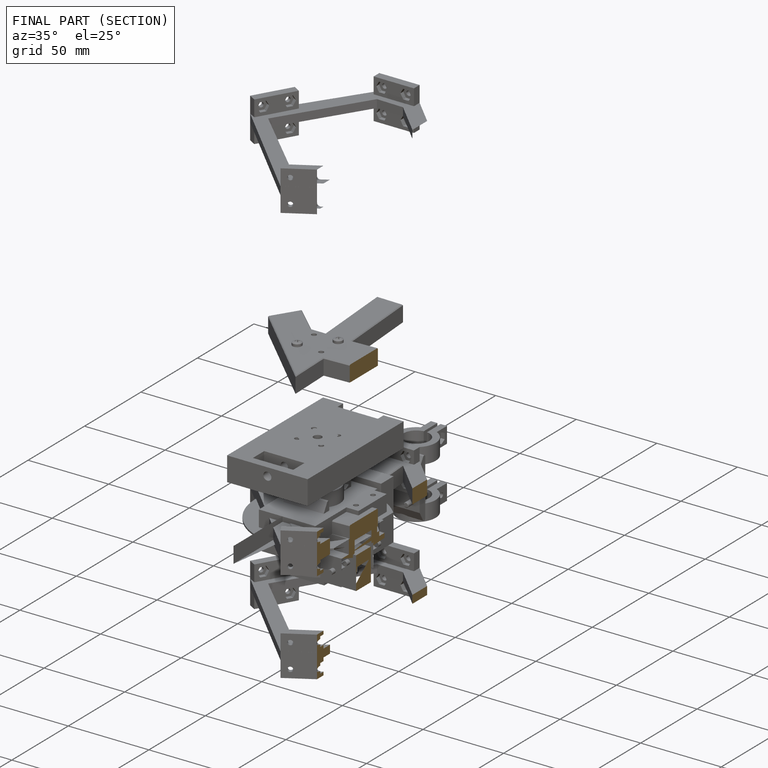
[diagram: finished part — half-section view (interior)]
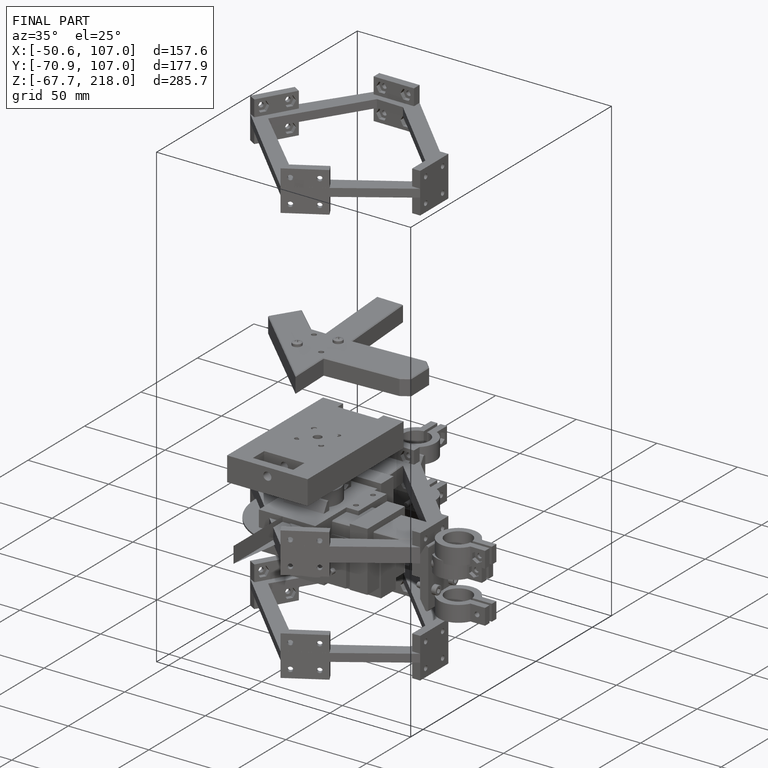
[diagram: finished part — iso view with bounding-box wireframe]
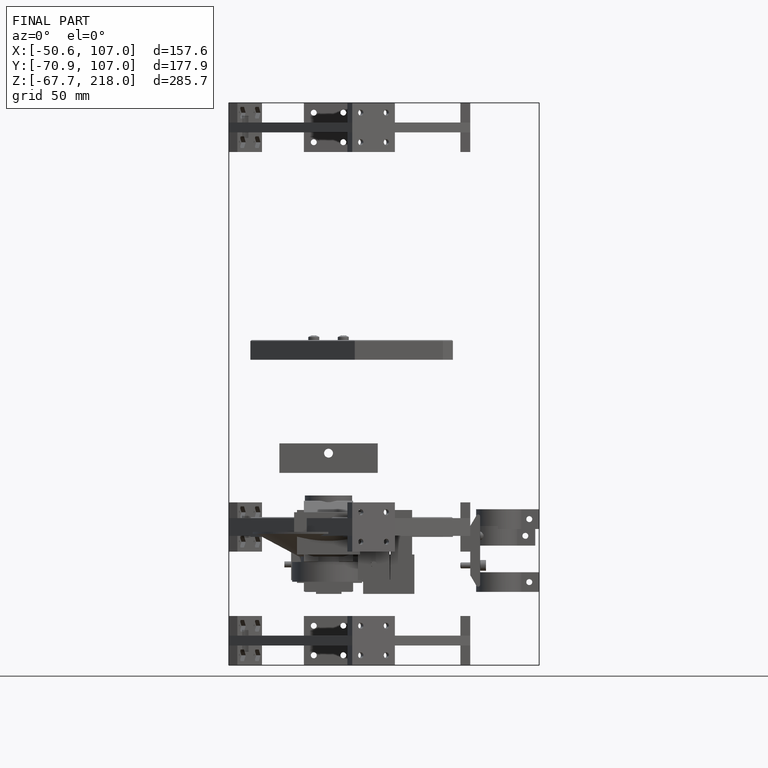
[diagram: finished part — front view with bounding-box wireframe]
